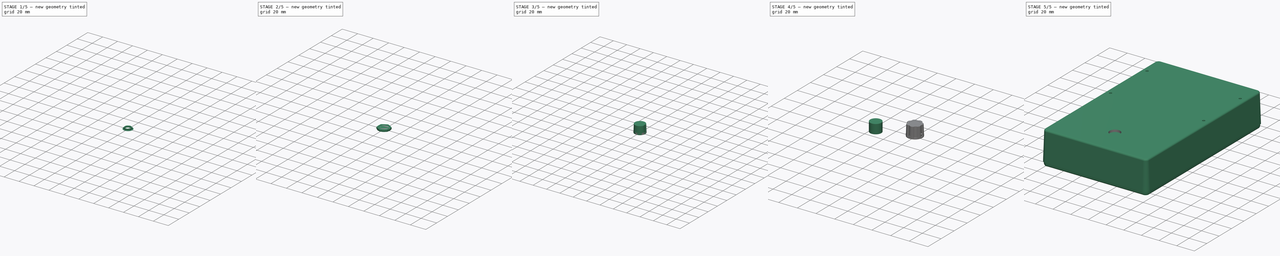
[diagram: build sequence overview — one tinted view per stage of 5, left to right]
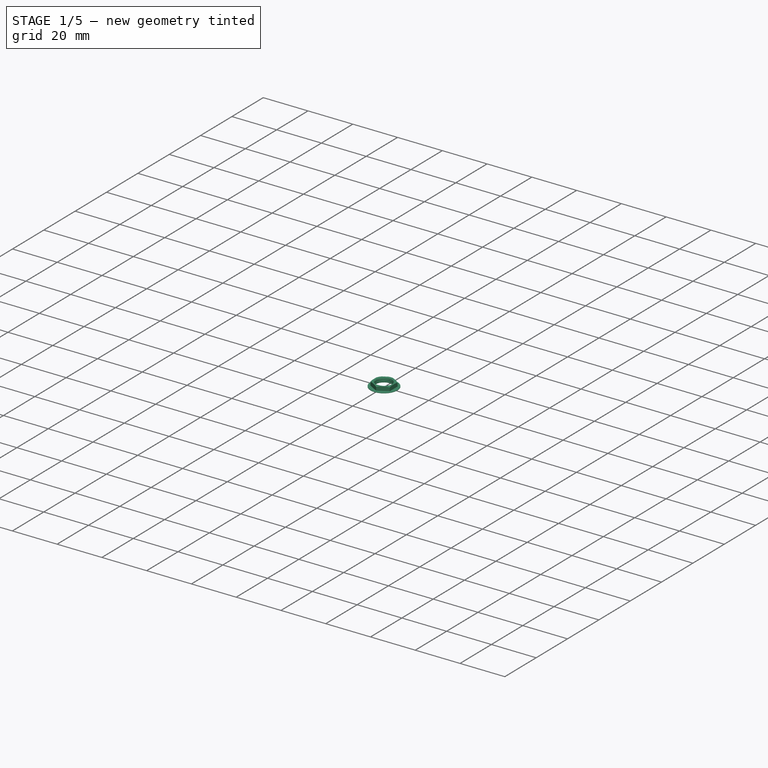
[diagram: stage 1 of 5 — iso view after this stage's code; geometry added in this stage tinted green]
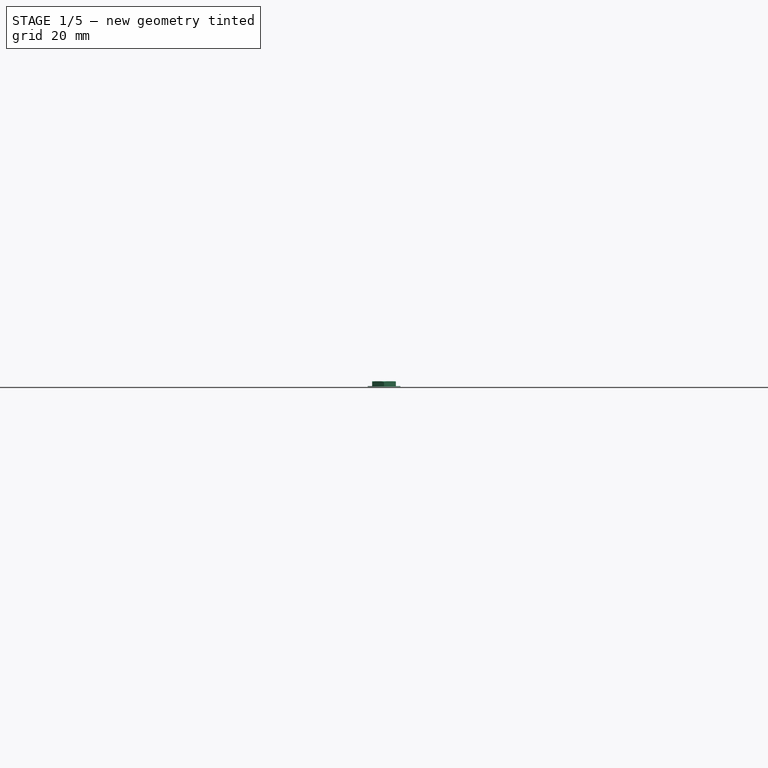
[diagram: stage 1 of 5 — front view after this stage's code; geometry added in this stage tinted green]
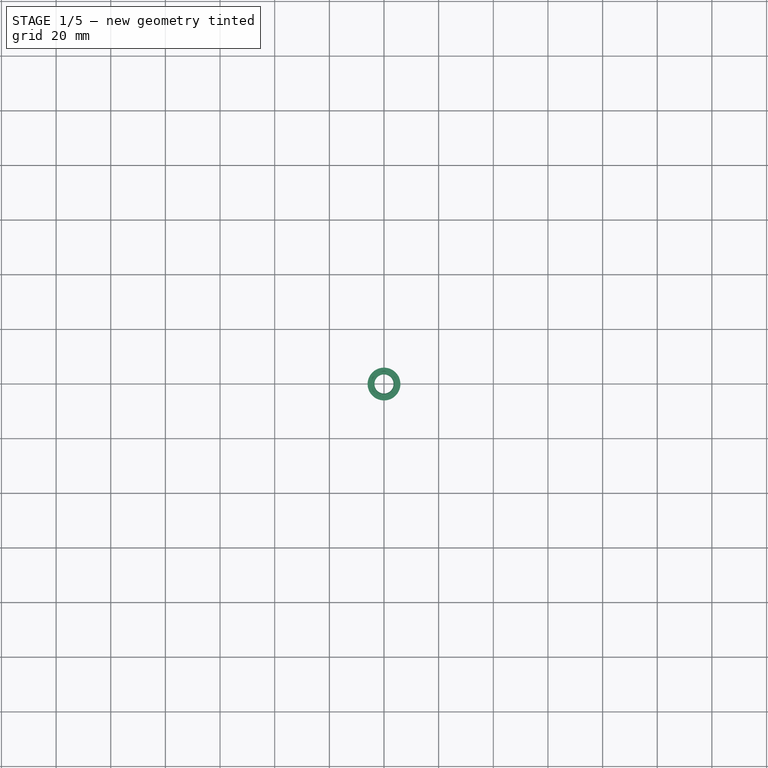
[diagram: stage 1 of 5 — top view after this stage's code; geometry added in this stage tinted green]
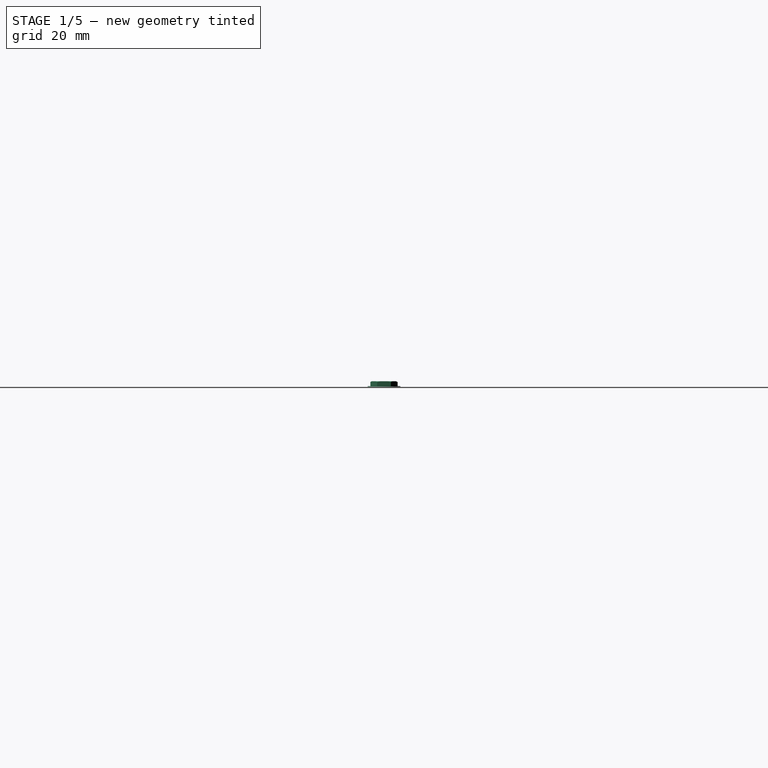
[diagram: stage 1 of 5 — right view after this stage's code; geometry added in this stage tinted green]
FCSTD DOCUMENT  (FreeCAD 0.19R18385 (Git))
Label: #000-000 - Mu-Tron Phasor II - Manual Assembly Lid
License: All rights reserved
LicenseURL: http://en.wikipedia.org/wiki/All_rights_reserved
objects: Part::Feature×189, App::Link×93, App::Part×61, Sketcher::SketchObject×45, PartDesign::Pocket×24, App::LinkGroup×21, PartDesign::Body×13, PartDesign::ShapeBinder×12, Part::Cylinder×11, PartDesign::Chamfer×9, PartDesign::Plane×6, PartDesign::CoordinateSystem×6, PartDesign::Revolution×6, PartDesign::Pad×6, PartDesign::PolarPattern×3, PartDesign::SubtractivePipe×3, Part::MultiFuse×2, Part::Cut×1, Spreadsheet::Sheet×1
note: 375 computed .brp shape members not serialized (recipe doc carries the construction recipe); baked Part::Feature solids carry a one-line shape summary decoded from their .brp

FEATURE [PartDesign::Body] Body008  label="Washer_M008"
  Group = -> [Sketch028,Pad004]
  Origin = -> Origin062
  Tip = -> Pad004
FEATURE [App::Part] Part025  label="Washer M7 2"
  Group = -> [Body008]
  Origin = -> Origin063
  Placement = pos=(43.5,58.42,33) rot=(0,0,1;0rad)
FEATURE [Sketcher::SketchObject] Sketch029
  MapMode = 5
  Support = -> [XY_Plane064]
  sketch-geometry (2):
    g0: Circle CenterX=0 CenterY=0 CenterZ=0 NormalX=0 NormalY=0 NormalZ=1 AngleXU=0 Radius=3.55
    g1: Circle CenterX=0 CenterY=0 CenterZ=0 NormalX=0 NormalY=0 NormalZ=1 AngleXU=0 Radius=6
  constraints (4):
    c: Coincident(g0,g-1)
    c: Coincident(g1,g0)
    c: Radius(g0) = 3.55
    c: Radius(g1) = 6
FEATURE [PartDesign::Pad] Pad005
  Length = 0.2
  Length2 = 100
  Profile = -> Sketch029
  Type = 0
FEATURE [PartDesign::Body] Body009  label="Washer_M009"
  Group = -> [Sketch029,Pad005]
  Origin = -> Origin065
  Tip = -> Pad005
FEATURE [App::Part] Part026  label="Washer M7 003"
  Group = -> [Body009]
  Origin = -> Origin064
  Placement = pos=(-43.5,58.42,33) rot=(0,0,1;0rad)
FEATURE [App::Part] Part027  label="#800-000 - Washers M7"
  Group = -> [Part024,Part025,Part026]
  Origin = -> Origin066
FEATURE [Sketcher::SketchObject] Sketch030
  MapMode = 5
  Placement = pos=(0,0,0) rot=(1,0,0;1.5708rad)
  Support = -> [XZ_Plane067]
  sketch-geometry (5):
    g0: LineSegment StartX=-3.5 StartY=0 StartZ=0 EndX=-3.5 EndY=2 EndZ=0
    g1: LineSegment StartX=-3.5 StartY=2 StartZ=0 EndX=-4.5 EndY=2 EndZ=0
    g2: LineSegment StartX=-4.5 StartY=2 StartZ=0 EndX=-5 EndY=1.71132 EndZ=0
    g3: LineSegment StartX=-5 StartY=1.71132 StartZ=0 EndX=-5 EndY=0 EndZ=0
    g4: LineSegment StartX=-5 StartY=0 StartZ=0 EndX=-3.5 EndY=0 EndZ=0
  constraints (15):
    c: PointOnObject(g0,g-1)
    c: Vertical(g0)
    c: Coincident(g0,g1)
    c: Horizontal(g1)
    c: Coincident(g1,g2)
    c: Coincident(g2,g3)
    c: PointOnObject(g3,g-1)
    c: Vertical(g3)
    c: Coincident(g3,g4)
    c: Coincident(g4,g0)
    c: DistanceY(g0,g0) = 2
    c: DistanceX(g0,g-1) = 3.5
    c: Angle(g2,g1) = 2.61799
    c: DistanceX(g2,g-1) = 5
    c: DistanceX(g2,g1) = 0.5
FEATURE [PartDesign::Revolution] Revolution003
  Angle = 360
  Axis = (0,2e-16,1)
  Base = (0,0,0)
  Placement = pos=(0,0,0) rot=(1,0,0;1.5708rad)
  Profile = -> Sketch030
  ReferenceAxis = -> Sketch030 [V_Axis]
FEATURE [Sketcher::SketchObject] Sketch031
  AttachmentOffset = pos=(0,0,2) rot=(0,0,1;0rad)
  MapMode = 5
  Placement = pos=(0,0,2) rot=(0,0,1;0rad)
  Support = -> [XY_Plane067]
  sketch-geometry (8):
    g0: LineSegment StartX=0 StartY=5 StartZ=0 EndX=-4.33013 EndY=2.5 EndZ=0
    g1: LineSegment StartX=-4.33013 StartY=2.5 StartZ=0 EndX=-4.33013 EndY=-2.5 EndZ=0
    g2: LineSegment StartX=-4.33013 StartY=-2.5 StartZ=0 EndX=6.2e-15 EndY=-5 EndZ=0
    g3: LineSegment StartX=6.2e-15 StartY=-5 StartZ=0 EndX=4.33013 EndY=-2.5 EndZ=0
    g4: LineSegment StartX=4.33013 StartY=-2.5 StartZ=0 EndX=4.33013 EndY=2.5 EndZ=0
    g5: LineSegment StartX=4.33013 StartY=2.5 StartZ=0 EndX=0 EndY=5 EndZ=0
    g6: Circle [constr] CenterX=0 CenterY=0 CenterZ=0 NormalX=0 NormalY=0 NormalZ=1 AngleXU=0 Radius=5
    g7: Circle CenterX=0 CenterY=0 CenterZ=0 NormalX=0 NormalY=0 NormalZ=1 AngleXU=0 Radius=5.59828
  constraints (17):
    c: Coincident(g0,g1)
    c: Coincident(g1,g2)
    c: Coincident(g2,g3)
    c: Coincident(g3,g4)
    c: Coincident(g4,g5)
    c: Coincident(g5,g0)
    c: Equal(g0, g1-g5) x5
    c: PointOnObject(g0,g6)
    c: PointOnObject(g1,g6)
    c: PointOnObject(g2,g6)
    c: PointOnObject(g3,g6)
    c: PointOnObject(g4,g6)
    c: PointOnObject(g5,g6)
    c: Coincident(g6,g-1)
    c: PointOnObject(g5,g-2)
    c: DistanceY(g-1,g0) = 5
    c: Coincident(g7,g-1)
FEATURE [PartDesign::Pocket] Pocket021
  BaseFeature = -> Revolution003
  Length = 5
  Length2 = 100
  Placement = pos=(0,0,0) rot=(1,0,0;1.5708rad)
  Profile = -> Sketch031
  Type = 0
FEATURE [Sketcher::SketchObject] Sketch032
  MapMode = 5
  Placement = pos=(0,0,0) rot=(1,0,0;1.5708rad)
  Support = -> [XZ_Plane067]
  sketch-geometry (4):
    g0: LineSegment StartX=-3.47634 StartY=0.09375 StartZ=0 EndX=-3.84813 EndY=0.046875 EndZ=0
    g1: LineSegment StartX=-3.84813 StartY=0.046875 StartZ=0 EndX=-3.84813 EndY=-0.046875 EndZ=0
    g2: LineSegment StartX=-3.84813 StartY=-0.046875 StartZ=0 EndX=-3.47634 EndY=-0.09375 EndZ=0
    g3: LineSegment StartX=-3.47634 StartY=-0.09375 StartZ=0 EndX=-3.47634 EndY=0.09375 EndZ=0
  constraints (8):
    c: Coincident(g0,g1)
    c: Coincident(g1,g2)
    c: Coincident(g2,g3)
    c: Coincident(g3,g0)
    c: DistanceY(g3,g3) = 0.1875
    c: Symmetric(g2,g0,g-1)
    c: Symmetric(g1,g0,g-1)
    c: DistanceY(g1,g1) = 0.09375
FEATURE [PartDesign::ShapeBinder] CopyHelix
  TraceSupport = false
FEATURE [PartDesign::SubtractivePipe] SubtractivePipe
  AuxilleryCurvelinear = true
  AuxillerySpineTangent = false
  BaseFeature = -> Pocket021
  Binormal = (0,0,0)
  Mode = 2
  Placement = pos=(0,0,0) rot=(1,0,0;1.5708rad)
  Profile = -> Sketch032
  Spine = -> CopyHelix
  SpineTangent = false
  Transformation = 0
  Transition = 0
FEATURE [PartDesign::Chamfer] Chamfer006
  Base = -> SubtractivePipe [Edge20]
  BaseFeature = -> SubtractivePipe
  Placement = pos=(0,0,0) rot=(1,0,0;1.5708rad)
  Size = 0.25
FEATURE [PartDesign::Body] Body010  label="Nut_M7"
  Group = -> [Sketch030,Revolution003,Sketch031,Pocket021,Sketch032,SubtractivePipe,CopyHelix,Chamfer006]
  Origin = -> Origin067
  Placement = pos=(0,58.42,33) rot=(0,0,1;0rad)
  Tip = -> Chamfer006
FEATURE [App::Part] Part028  label="#800-000 - Nut M7 1"
  Group = -> [Body010]
  Origin = -> Origin068
  Placement = pos=(0,0,0.2) rot=(0,0,1;0rad)
FEATURE [Sketcher::SketchObject] Sketch033
  MapMode = 5
  Placement = pos=(0,0,0) rot=(1,0,0;1.5708rad)
  Support = -> [XZ_Plane069]
  sketch-geometry (5):
    g0: LineSegment StartX=-3.5 StartY=0 StartZ=0 EndX=-3.5 EndY=2 EndZ=0
    g1: LineSegment StartX=-3.5 StartY=2 StartZ=0 EndX=-4.5 EndY=2 EndZ=0
    g2: LineSegment StartX=-4.5 StartY=2 StartZ=0 EndX=-5 EndY=1.71132 EndZ=0
    g3: LineSegment StartX=-5 StartY=1.71132 StartZ=0 EndX=-5 EndY=0 EndZ=0
    g4: LineSegment StartX=-5 StartY=0 StartZ=0 EndX=-3.5 EndY=0 EndZ=0
  constraints (15):
    c: PointOnObject(g0,g-1)
    c: Vertical(g0)
    c: Coincident(g0,g1)
    c: Horizontal(g1)
    c: Coincident(g1,g2)
    c: Coincident(g2,g3)
    c: PointOnObject(g3,g-1)
    c: Vertical(g3)
    c: Coincident(g3,g4)
    c: Coincident(g4,g0)
    c: DistanceY(g0,g0) = 2
    c: DistanceX(g0,g-1) = 3.5
    c: Angle(g2,g1) = 2.61799
    c: DistanceX(g2,g-1) = 5
    c: DistanceX(g2,g1) = 0.5
FEATURE [Sketcher::SketchObject] Sketch034
  MapMode = 5
  Placement = pos=(0,0,0) rot=(1,0,0;1.5708rad)
  Support = -> [XZ_Plane069]
  sketch-geometry (4):
    g0: LineSegment StartX=-3.47634 StartY=0.09375 StartZ=0 EndX=-3.84813 EndY=0.046875 EndZ=0
    g1: LineSegment StartX=-3.84813 StartY=0.046875 StartZ=0 EndX=-3.84813 EndY=-0.046875 EndZ=0
    g2: LineSegment StartX=-3.84813 StartY=-0.046875 StartZ=0 EndX=-3.47634 EndY=-0.09375 EndZ=0
    g3: LineSegment StartX=-3.47634 StartY=-0.09375 StartZ=0 EndX=-3.47634 EndY=0.09375 EndZ=0
  constraints (8):
    c: Coincident(g0,g1)
    c: Coincident(g1,g2)
    c: Coincident(g2,g3)
    c: Coincident(g3,g0)
    c: DistanceY(g3,g3) = 0.1875
    c: Symmetric(g2,g0,g-1)
    c: Symmetric(g1,g0,g-1)
    c: DistanceY(g1,g1) = 0.09375
FEATURE [Sketcher::SketchObject] Sketch035
  AttachmentOffset = pos=(0,0,2) rot=(0,0,1;0rad)
  MapMode = 5
  Placement = pos=(0,0,2) rot=(0,0,1;0rad)
  Support = -> [XY_Plane069]
  sketch-geometry (8):
    g0: LineSegment StartX=0 StartY=5 StartZ=0 EndX=-4.33013 EndY=2.5 EndZ=0
    g1: LineSegment StartX=-4.33013 StartY=2.5 StartZ=0 EndX=-4.33013 EndY=-2.5 EndZ=0
    g2: LineSegment StartX=-4.33013 StartY=-2.5 StartZ=0 EndX=6.2e-15 EndY=-5 EndZ=0
    g3: LineSegment StartX=6.2e-15 StartY=-5 StartZ=0 EndX=4.33013 EndY=-2.5 EndZ=0
    g4: LineSegment StartX=4.33013 StartY=-2.5 StartZ=0 EndX=4.33013 EndY=2.5 EndZ=0
    g5: LineSegment StartX=4.33013 StartY=2.5 StartZ=0 EndX=0 EndY=5 EndZ=0
    g6: Circle [constr] CenterX=0 CenterY=0 CenterZ=0 NormalX=0 NormalY=0 NormalZ=1 AngleXU=0 Radius=5
    g7: Circle CenterX=0 CenterY=0 CenterZ=0 NormalX=0 NormalY=0 NormalZ=1 AngleXU=0 Radius=5.59828
  constraints (17):
    c: Coincident(g0,g1)
    c: Coincident(g1,g2)
    c: Coincident(g2,g3)
    c: Coincident(g3,g4)
    c: Coincident(g4,g5)
    c: Coincident(g5,g0)
    c: Equal(g0, g1-g5) x5
    c: PointOnObject(g0,g6)
    c: PointOnObject(g1,g6)
    c: PointOnObject(g2,g6)
    c: PointOnObject(g3,g6)
    c: PointOnObject(g4,g6)
    c: PointOnObject(g5,g6)
    c: Coincident(g6,g-1)
    c: PointOnObject(g5,g-2)
    c: DistanceY(g-1,g0) = 5
    c: Coincident(g7,g-1)
FEATURE [PartDesign::ShapeBinder] CopyHelix001
  TraceSupport = false
FEATURE [PartDesign::Revolution] Revolution004
  Angle = 360
  Axis = (0,2e-16,1)
  Base = (0,0,0)
  Placement = pos=(0,0,0) rot=(1,0,0;1.5708rad)
  Profile = -> Sketch033
  ReferenceAxis = -> Sketch033 [V_Axis]
FEATURE [PartDesign::Pocket] Pocket022
  BaseFeature = -> Revolution004
  Length = 5
  Length2 = 100
  Placement = pos=(0,0,0) rot=(1,0,0;1.5708rad)
  Profile = -> Sketch035
  Type = 0
FEATURE [PartDesign::SubtractivePipe] SubtractivePipe001
  AuxilleryCurvelinear = true
  AuxillerySpineTangent = false
  BaseFeature = -> Pocket022
  Binormal = (0,0,0)
  Mode = 2
  Placement = pos=(0,0,0) rot=(1,0,0;1.5708rad)
  Profile = -> Sketch034
  Spine = -> CopyHelix001
  SpineTangent = false
  Transformation = 0
  Transition = 0
FEATURE [PartDesign::Chamfer] Chamfer007
  Base = -> SubtractivePipe001 [Edge20]
  BaseFeature = -> SubtractivePipe001
  Placement = pos=(0,0,0) rot=(1,0,0;1.5708rad)
  Size = 0.25
FEATURE [PartDesign::Body] Body011  label="Nut_M008"
  Group = -> [Sketch033,Revolution004,Sketch035,Pocket022,Sketch034,SubtractivePipe001,CopyHelix001,Chamfer007]
  Origin = -> Origin070
  Placement = pos=(0,58.42,33) rot=(0,0,1;0rad)
  Tip = -> Chamfer007
FEATURE [App::Part] Part029  label="#800-000 - Nut M7 2"
  Group = -> [Body011]
  Origin = -> Origin069
  Placement = pos=(43.5,0,0.2) rot=(0,0,1;0rad)
FEATURE [Sketcher::SketchObject] Sketch036
  MapMode = 5
  Placement = pos=(0,0,0) rot=(1,0,0;1.5708rad)
  Support = -> [XZ_Plane072]
  sketch-geometry (5):
    g0: LineSegment StartX=-3.5 StartY=0 StartZ=0 EndX=-3.5 EndY=2 EndZ=0
    g1: LineSegment StartX=-3.5 StartY=2 StartZ=0 EndX=-4.5 EndY=2 EndZ=0
    g2: LineSegment StartX=-4.5 StartY=2 StartZ=0 EndX=-5 EndY=1.71132 EndZ=0
    g3: LineSegment StartX=-5 StartY=1.71132 StartZ=0 EndX=-5 EndY=0 EndZ=0
    g4: LineSegment StartX=-5 StartY=0 StartZ=0 EndX=-3.5 EndY=0 EndZ=0
  constraints (15):
    c: PointOnObject(g0,g-1)
    c: Vertical(g0)
    c: Coincident(g0,g1)
    c: Horizontal(g1)
    c: Coincident(g1,g2)
    c: Coincident(g2,g3)
    c: PointOnObject(g3,g-1)
    c: Vertical(g3)
    c: Coincident(g3,g4)
    c: Coincident(g4,g0)
    c: DistanceY(g0,g0) = 2
    c: DistanceX(g0,g-1) = 3.5
    c: Angle(g2,g1) = 2.61799
    c: DistanceX(g2,g-1) = 5
    c: DistanceX(g2,g1) = 0.5
FEATURE [Sketcher::SketchObject] Sketch037
  AttachmentOffset = pos=(0,0,2) rot=(0,0,1;0rad)
  MapMode = 5
  Placement = pos=(0,0,2) rot=(0,0,1;0rad)
  Support = -> [XY_Plane071]
  sketch-geometry (8):
    g0: LineSegment StartX=0 StartY=5 StartZ=0 EndX=-4.33013 EndY=2.5 EndZ=0
    g1: LineSegment StartX=-4.33013 StartY=2.5 StartZ=0 EndX=-4.33013 EndY=-2.5 EndZ=0
    g2: LineSegment StartX=-4.33013 StartY=-2.5 StartZ=0 EndX=6.2e-15 EndY=-5 EndZ=0
    g3: LineSegment StartX=6.2e-15 StartY=-5 StartZ=0 EndX=4.33013 EndY=-2.5 EndZ=0
    g4: LineSegment StartX=4.33013 StartY=-2.5 StartZ=0 EndX=4.33013 EndY=2.5 EndZ=0
    g5: LineSegment StartX=4.33013 StartY=2.5 StartZ=0 EndX=0 EndY=5 EndZ=0
    g6: Circle [constr] CenterX=0 CenterY=0 CenterZ=0 NormalX=0 NormalY=0 NormalZ=1 AngleXU=0 Radius=5
    g7: Circle CenterX=0 CenterY=0 CenterZ=0 NormalX=0 NormalY=0 NormalZ=1 AngleXU=0 Radius=5.59828
  constraints (17):
    c: Coincident(g0,g1)
    c: Coincident(g1,g2)
    c: Coincident(g2,g3)
    c: Coincident(g3,g4)
    c: Coincident(g4,g5)
    c: Coincident(g5,g0)
    c: Equal(g0, g1-g5) x5
    c: PointOnObject(g0,g6)
    c: PointOnObject(g1,g6)
    c: PointOnObject(g2,g6)
    c: PointOnObject(g3,g6)
    c: PointOnObject(g4,g6)
    c: PointOnObject(g5,g6)
    c: Coincident(g6,g-1)
    c: PointOnObject(g5,g-2)
    c: DistanceY(g-1,g0) = 5
    c: Coincident(g7,g-1)
FEATURE [Sketcher::SketchObject] Sketch038
  MapMode = 5
  Placement = pos=(0,0,0) rot=(1,0,0;1.5708rad)
  Support = -> [XZ_Plane072]
  sketch-geometry (4):
    g0: LineSegment StartX=-3.47634 StartY=0.09375 StartZ=0 EndX=-3.84813 EndY=0.046875 EndZ=0
    g1: LineSegment StartX=-3.84813 StartY=0.046875 StartZ=0 EndX=-3.84813 EndY=-0.046875 EndZ=0
    g2: LineSegment StartX=-3.84813 StartY=-0.046875 StartZ=0 EndX=-3.47634 EndY=-0.09375 EndZ=0
    g3: LineSegment StartX=-3.47634 StartY=-0.09375 StartZ=0 EndX=-3.47634 EndY=0.09375 EndZ=0
  constraints (8):
    c: Coincident(g0,g1)
    c: Coincident(g1,g2)
    c: Coincident(g2,g3)
    c: Coincident(g3,g0)
    c: DistanceY(g3,g3) = 0.1875
    c: Symmetric(g2,g0,g-1)
    c: Symmetric(g1,g0,g-1)
    c: DistanceY(g1,g1) = 0.09375
FEATURE [PartDesign::ShapeBinder] CopyHelix002
  TraceSupport = false
FEATURE [PartDesign::Revolution] Revolution005
  Angle = 360
  Axis = (0,2e-16,1)
  Base = (0,0,0)
  Placement = pos=(0,0,0) rot=(1,0,0;1.5708rad)
  Profile = -> Sketch036
  ReferenceAxis = -> Sketch036 [V_Axis]
FEATURE [PartDesign::Pocket] Pocket023
  BaseFeature = -> Revolution005
  Length = 5
  Length2 = 100
  Placement = pos=(0,0,0) rot=(1,0,0;1.5708rad)
  Profile = -> Sketch037
  Type = 0
FEATURE [PartDesign::SubtractivePipe] SubtractivePipe002
  AuxilleryCurvelinear = true
  AuxillerySpineTangent = false
  BaseFeature = -> Pocket023
  Binormal = (0,0,0)
  Mode = 2
  Placement = pos=(0,0,0) rot=(1,0,0;1.5708rad)
  Profile = -> Sketch038
  Spine = -> CopyHelix002
  SpineTangent = false
  Transformation = 0
  Transition = 0
FEATURE [PartDesign::Chamfer] Chamfer008
  Base = -> SubtractivePipe002 [Edge20]
  BaseFeature = -> SubtractivePipe002
  Placement = pos=(0,0,0) rot=(1,0,0;1.5708rad)
  Size = 0.25
FEATURE [PartDesign::Body] Body012  label="Nut_M009"
  Group = -> [Sketch036,Revolution005,Sketch037,Pocket023,Sketch038,SubtractivePipe002,CopyHelix002,Chamfer008]
  Origin = -> Origin071
  Placement = pos=(0,58.42,33) rot=(0,0,1;0rad)
  Tip = -> Chamfer008
FEATURE [App::Part] Part030  label="#800-000 - Nut M7 3"
  Group = -> [Body012]
  Origin = -> Origin072
  Placement = pos=(-43.5,0,0.2) rot=(0,0,1;0rad)
FEATURE [App::Part] Part031  label="#800-XXX - Nuts M7"
  Group = -> [Part028,Part029,Part030]
  Origin = -> Origin073
FEATURE [Part::Feature] Shape037  label=""R1"_R_0603_1608M_5E12A14F001"
  Placement = pos=(3.175,0,0) rot=(0,0,1;3.14159rad)
  shape: bbox 1.6 x 0.8 x 0.45 mm, 22 faces (baked)
FEATURE [Part::Feature] Shape039  label=""J1"_Lumberg_1614_09__Nut__2_5mm__cp_5DF56329"
  shape: bbox 11.4 x 11.4 x 17.02 mm, 169 faces, 2 solids (baked)
FEATURE [Part::Feature] Shape040  label=""Q1"_MCH6341-TL-W_5E1B8787"
  Placement = pos=(2.667,0,-1.6) rot=(0.707107,-0.707107,0;3.14159rad)
  shape: bbox 2 x 2.1 x 0.86 mm, 263 faces (baked)
FEATURE [Part::Feature] Shape041  label=""D3"_1SMA5924BT3G_5E12A08F001"
  Placement = pos=(-2.54,5.715,0) rot=(0,0,1;3.14159rad)
  shape: bbox 5.21 x 2.6 x 2.11 mm, 403 faces (baked)
FEATURE [App::Part] Top_3b3
  Group = -> [Shape037,Shape039,Shape041]
  Origin = -> Origin032
FEATURE [Part::Feature] Shape042  label=""D2"_FM5817-W_5E1B5AEB001"
  Placement = pos=(-1.905,0,-1.6) rot=(0,1,0;3.14159rad)
  shape: bbox 5.005 x 2.485 x 2.015 mm, 172 faces (baked)
FEATURE [App::Link] _D2__FM5817_W_5E1B5AEB001_ln_  label=""D1"_FM5817-W_5E12AA099"
  LinkPlacement = pos=(-2.54,5.715,-1.6) rot=(0,1,0;3.14159rad)
  LinkedObject = -> Shape042
  Placement = pos=(-2.54,5.715,-1.6) rot=(0,1,0;3.14159rad)
FEATURE [App::Part] Bot_3b3
  Group = -> [Shape032,Shape040,Shape042,_D2__FM5817_W_5E1B5AEB001_ln_]
  Origin = -> Origin033
FEATURE [App::Part] Step_Models_3b3
  Group = -> [Top_3b3,Bot_3b3]
  Origin = -> Origin031
FEATURE [App::Part] Board_3b3  label="#610-000-S1B - Power Jack PCB [1614 09, Wide, Multi Protection]"
  Group = -> [Board_Geoms_3b3,Step_Models_3b3]
  Origin = -> Origin030
  Placement = pos=(0.2,85.5,11.1) rot=(-0.57735,0.57735,0.57735;2.0944rad)
FEATURE [App::Part] Part018  label="#000-000 - Purple Hazor II"
  Group = -> [Board_3323,Board_9fc9,Board_8d55,Board_8681,Board_5daf,Board_3b3,Part,Part019,Part017,Part022,Part023,Part027,Part031]
  Origin = -> Origin051
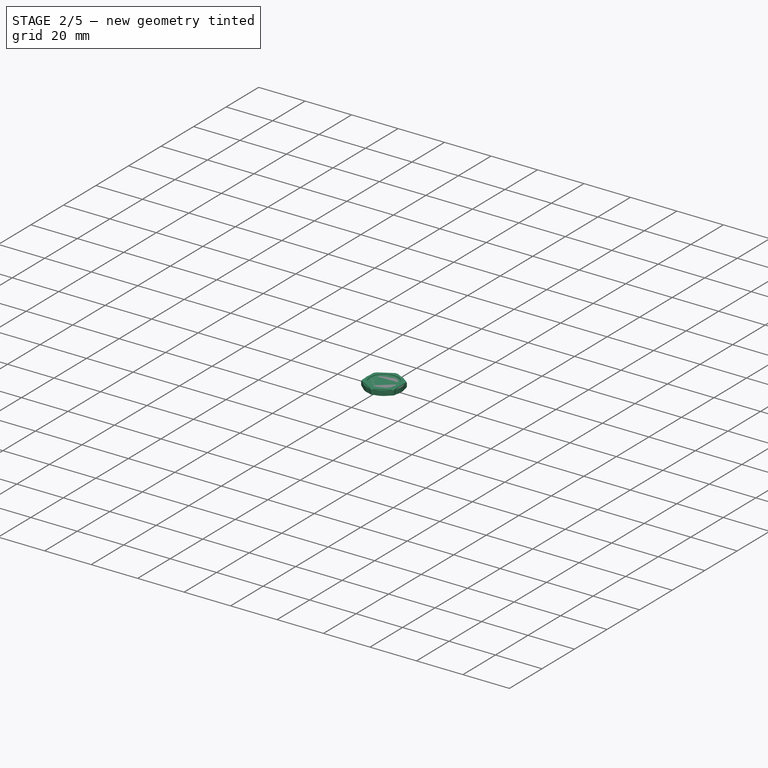
[diagram: stage 2 of 5 — iso view after this stage's code; geometry added in this stage tinted green]
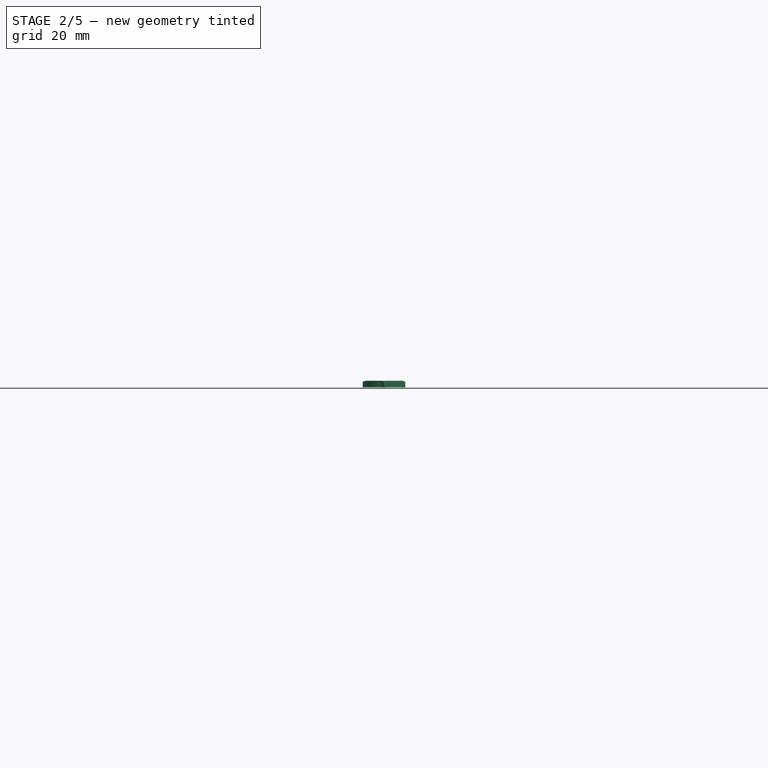
[diagram: stage 2 of 5 — front view after this stage's code; geometry added in this stage tinted green]
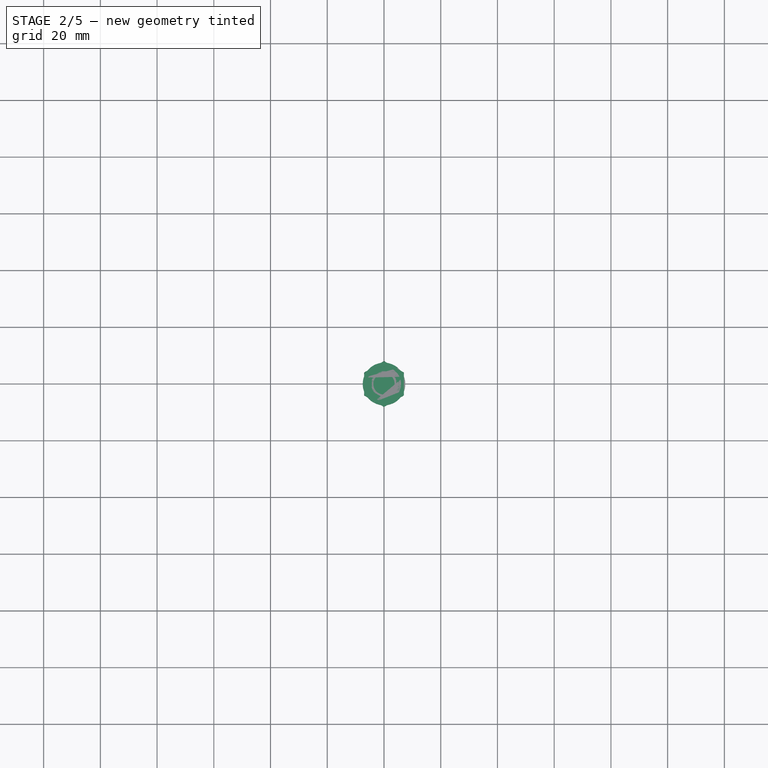
[diagram: stage 2 of 5 — top view after this stage's code; geometry added in this stage tinted green]
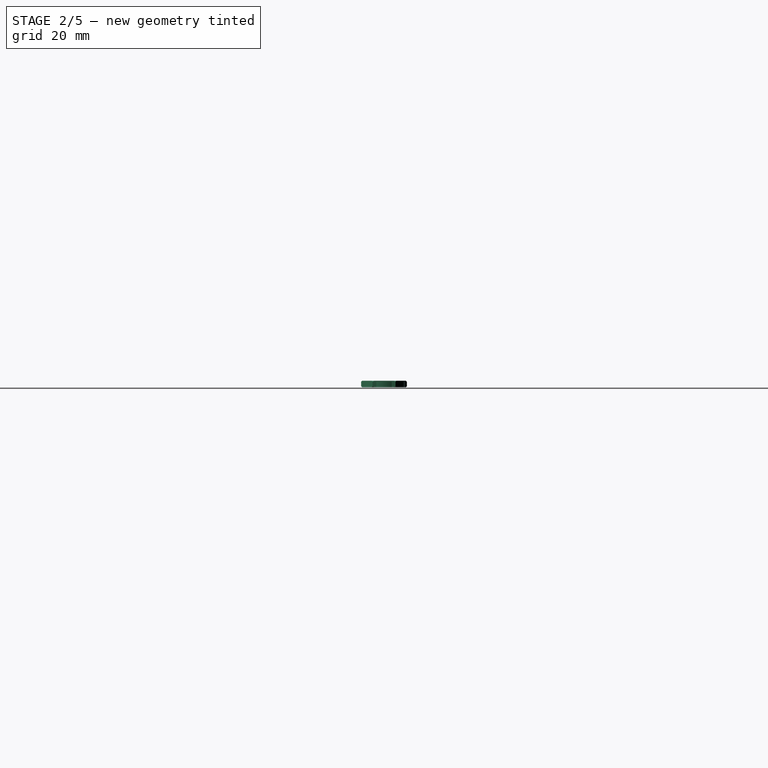
[diagram: stage 2 of 5 — right view after this stage's code; geometry added in this stage tinted green]
FEATURE [PartDesign::Body] Body003  label="Knob_Synthie_Violet"
  Group = -> [Sketch015,Revolution002,Sketch013,Pocket011,PolarPattern002,Sketch012,Pocket012,Sketch017,Pocket014,Sketch014,Pocket010,Sketch016,Pocket013]
  Origin = -> Origin036
  Placement = pos=(0,0,6) rot=(0,0,1;0rad)
  Tip = -> Pocket013
FEATURE [App::Part] Part004  label="#800-XXX - Knob Depth"
  Group = -> [Body001]
  Origin = -> Origin037
  Placement = pos=(0,58.42,31.6) rot=(0,0,1;0rad)
FEATURE [App::Part] Part005  label="#800-XXX - Knob Rate"
  Group = -> [Body002]
  Origin = -> Origin038
  Placement = pos=(43.4975,58.42,31.6) rot=(0,0,1;0rad)
FEATURE [App::Part] Part006  label="#800-XXX - Knob Feedback"
  Group = -> [Body003]
  Origin = -> Origin039
  Placement = pos=(-43.5,58.42,31.6) rot=(0,0,1;0rad)
FEATURE [Part::Feature] Solid130  label="Screw_M3x6_T_2.0_Panhead"
  shape: bbox 5.8 x 5.8 x 7.989 mm, 18 faces (baked)
FEATURE [App::Part] Part007  label="#800-XXX - Screw M3x6 1"
  Group = -> [Solid130]
  Origin = -> Origin040
  Placement = pos=(52.7,8.26,33) rot=(0,0,1;0rad)
FEATURE [Part::Feature] Solid131  label="Screw_M3x6_T_2.0_Panhead001"
  shape: bbox 5.8 x 5.8 x 7.989 mm, 18 faces (baked)
FEATURE [App::Part] Part008  label="#800-XXX - Screw M3x6 2"
  Group = -> [Solid131]
  Origin = -> Origin041
  Placement = pos=(-52.7,8.26,33) rot=(0,0,1;0rad)
FEATURE [Part::Feature] Solid132  label="Screw_M3x6_T_2.0_Panhead002"
  shape: bbox 5.8 x 5.8 x 7.989 mm, 18 faces (baked)
FEATURE [App::Part] Part009  label="#800-XXX - Screw M3x6 3"
  Group = -> [Solid132]
  Origin = -> Origin042
  Placement = pos=(52.7,67.31,33) rot=(0,0,1;0rad)
FEATURE [Part::Feature] Solid133  label="Screw_M3x6_T_2.0_Panhead003"
  shape: bbox 5.8 x 5.8 x 7.989 mm, 18 faces (baked)
FEATURE [App::Part] Part010  label="#800-XXX - Screw M3x6 4"
  Group = -> [Solid133]
  Origin = -> Origin043
  Placement = pos=(-52.7,67.31,33) rot=(0,0,1;0rad)
FEATURE [App::Part] Part011  label="#800-XXX - Screws Enclosure"
  Group = -> [Part007,Part008,Part009,Part010]
  Origin = -> Origin044
FEATURE [Part::Feature] Solid134  label="Screw_M3x6_T_2.0_Panhead004"
  shape: bbox 5.8 x 5.8 x 7.989 mm, 18 faces (baked)
FEATURE [Part::Feature] Solid135  label="Screw_M3x6_T_2.0_Panhead005"
  shape: bbox 5.8 x 5.8 x 7.989 mm, 18 faces (baked)
FEATURE [Part::Feature] Solid136  label="Screw_M3x6_T_2.0_Panhead006"
  shape: bbox 5.8 x 5.8 x 7.989 mm, 18 faces (baked)
FEATURE [App::Part] Part012  label="#800-XXX - Screw M3x6 005"
  Group = -> [Solid134]
  Origin = -> Origin047
  Placement = pos=(52.7,8.26,16.9) rot=(0,1,0;3.14159rad)
FEATURE [App::Part] Part014  label="#800-XXX - Screw M3x6 006"
  Group = -> [Solid135]
  Origin = -> Origin045
  Placement = pos=(-52.7,8.26,16.9) rot=(0,1,0;3.14159rad)
FEATURE [App::Part] Part016  label="#800-XXX - Screw M3x6 008"
  Group = -> [Solid136]
  Origin = -> Origin046
  Placement = pos=(52.7,67.31,16.9) rot=(0,1,0;3.14159rad)
FEATURE [Part::Feature] Solid137  label="Screw_M3x6_T_2.0_Panhead007"
  shape: bbox 5.8 x 5.8 x 7.989 mm, 18 faces (baked)
FEATURE [App::Part] Part015  label="#800-XXX - Screw M3x6 007"
  Group = -> [Solid137]
  Origin = -> Origin049
  Placement = pos=(-52.7,67.31,16.9) rot=(0,1,0;3.14159rad)
FEATURE [App::Part] Part013  label="#800-XXX - Screws PCB"
  Group = -> [Part012,Part014,Part016,Part015]
  Origin = -> Origin048
FEATURE [App::Part] Part017  label="#800-XXX - Screws M3x6"
  Group = -> [Part011,Part013]
  Origin = -> Origin050
FEATURE [App::Part] Part019  label="#800-XXX - Knobs"
  Group = -> [Part004,Part005,Part006]
  Origin = -> Origin052
FEATURE [Sketcher::SketchObject] Sketch018
  MapMode = 5
  Support = -> [XY_Plane053]
  sketch-geometry (1):
    g0: Circle CenterX=0 CenterY=0 CenterZ=0 NormalX=0 NormalY=0 NormalZ=1 AngleXU=0 Radius=7.5
  constraints (2):
    c: Coincident(g0,g-1)
    c: Radius(g0) = 7.5
FEATURE [PartDesign::Pad] Pad
  Length = 2
  Length2 = 100
  Profile = -> Sketch018
  Type = 0
FEATURE [PartDesign::Body] Body004  label="Nut M10"
  Group = -> [Sketch018,Pad,Sketch019,Chamfer,Chamfer001,Pocket015,Sketch020,Pocket016]
  Origin = -> Origin053
  Tip = -> Pocket016
FEATURE [App::Part] Part020  label="Nut M10 1"
  Group = -> [Body004]
  Origin = -> Origin054
  Placement = pos=(-23.5,93.8,9.2) rot=(-1,0,0;1.5708rad)
FEATURE [Sketcher::SketchObject] Sketch021
  MapMode = 5
  Support = -> [XY_Plane055]
  sketch-geometry (1):
    g0: Circle CenterX=0 CenterY=0 CenterZ=0 NormalX=0 NormalY=0 NormalZ=1 AngleXU=0 Radius=5
  constraints (2):
    c: Coincident(g0,g-1)
    c: Radius(g0) = 5
FEATURE [Sketcher::SketchObject] Sketch022
  MapMode = 5
  Support = -> [XY_Plane055]
  sketch-geometry (1):
    g0: Circle CenterX=0 CenterY=0 CenterZ=0 NormalX=0 NormalY=0 NormalZ=1 AngleXU=0 Radius=7.5
  constraints (2):
    c: Coincident(g0,g-1)
    c: Radius(g0) = 7.5
FEATURE [PartDesign::Pad] Pad001
  Length = 2
  Length2 = 100
  Profile = -> Sketch022
  Type = 0
FEATURE [PartDesign::Chamfer] Chamfer003
  Base = -> Pad001 [Edge3]
  BaseFeature = -> Pad001
  Size = 0.75
FEATURE [PartDesign::Chamfer] Chamfer002
  Base = -> Chamfer003 [Edge3]
  BaseFeature = -> Chamfer003
  Size = 0.75
FEATURE [Sketcher::SketchObject] Sketch023
  MapMode = 5
  Placement = pos=(0,0,2) rot=(0,0,1;0rad)
  Support = -> [Pad001]
  sketch-geometry (9):
    g0: Circle CenterX=0 CenterY=0 CenterZ=0 NormalX=0 NormalY=0 NormalZ=1 AngleXU=0 Radius=8.40128
    g1: GeomPoint X=0 Y=8.40128 Z=0
    g2: LineSegment StartX=0 StartY=7.33235 StartZ=0 EndX=-6.35 EndY=3.66617 EndZ=0
    g3: LineSegment StartX=-6.35 StartY=3.66617 StartZ=0 EndX=-6.35 EndY=-3.66617 EndZ=0
    g4: LineSegment StartX=-6.35 StartY=-3.66617 StartZ=0 EndX=0 EndY=-7.33235 EndZ=0
    g5: LineSegment StartX=0 StartY=-7.33235 StartZ=0 EndX=6.35 EndY=-3.66617 EndZ=0
    g6: LineSegment StartX=6.35 StartY=-3.66617 StartZ=0 EndX=6.35 EndY=3.66617 EndZ=0
    g7: LineSegment StartX=6.35 StartY=3.66617 StartZ=0 EndX=0 EndY=7.33235 EndZ=0
    g8: Circle [constr] CenterX=0 CenterY=0 CenterZ=0 NormalX=0 NormalY=0 NormalZ=1 AngleXU=0 Radius=7.33235
  constraints (19):
    c: Coincident(g0,g-1)
    c: PointOnObject(g1,g0)
    c: PointOnObject(g1,g-2)
    c: Coincident(g2,g3)
    c: Coincident(g3,g4)
    c: Coincident(g4,g5)
    c: Coincident(g5,g6)
    c: Coincident(g6,g7)
    c: Coincident(g7,g2)
    c: Equal(g2, g3-g7) x5
    c: PointOnObject(g2,g8)
    c: PointOnObject(g3,g8)
    c: PointOnObject(g4,g8)
    c: PointOnObject(g5,g8)
    c: PointOnObject(g6,g8)
    c: PointOnObject(g7,g8)
    c: Coincident(g8,g0)
    c: PointOnObject(g7,g-2)
    c: DistanceX(g2,g6) = 12.7
FEATURE [PartDesign::Pocket] Pocket017
  BaseFeature = -> Chamfer002
  Length = 5
  Length2 = 100
  Midplane = true
  Profile = -> Sketch023
  Type = 1
FEATURE [PartDesign::Pocket] Pocket018
  BaseFeature = -> Pocket017
  Length = 5
  Length2 = 100
  Midplane = true
  Profile = -> Sketch021
  Type = 1
FEATURE [PartDesign::Body] Body005  label="Nut M011"
  Group = -> [Sketch022,Pad001,Sketch023,Chamfer003,Chamfer002,Pocket017,Sketch021,Pocket018]
  Origin = -> Origin056
  Tip = -> Pocket018
FEATURE [App::Part] Part021  label="Nut M10 2"
  Group = -> [Body005]
  Origin = -> Origin055
  Placement = pos=(23.5,93.8,9.2) rot=(-1,0,0;1.5708rad)
FEATURE [App::Part] Part022  label="#800-XXX - Nuts M10"
  Group = -> [Part020,Part021]
  Origin = -> Origin057
FEATURE [Sketcher::SketchObject] Sketch024
  MapMode = 5
  Support = -> [XY_Plane058]
  sketch-geometry (1):
    g0: Circle CenterX=0 CenterY=0 CenterZ=0 NormalX=0 NormalY=0 NormalZ=1 AngleXU=0 Radius=8.5
  constraints (2):
    c: Coincident(g0,g-1)
    c: Radius(g0) = 8.5
FEATURE [PartDesign::Pad] Pad002
  Length = 2.3
  Length2 = 100
  Profile = -> Sketch024
  Type = 0
FEATURE [Sketcher::SketchObject] Sketch025
  MapMode = 5
  Placement = pos=(0,0,2.3) rot=(0,0,1;0rad)
  Support = -> [Pad002]
  sketch-geometry (9):
    g0: Circle CenterX=0 CenterY=0 CenterZ=0 NormalX=0 NormalY=0 NormalZ=1 AngleXU=0 Radius=9.68482
    g1: GeomPoint X=0 Y=9.68482 Z=0
    g2: LineSegment StartX=0 StartY=8.0829 StartZ=0 EndX=-7 EndY=4.04145 EndZ=0
    g3: LineSegment StartX=-7 StartY=4.04145 StartZ=0 EndX=-7 EndY=-4.04145 EndZ=0
    g4: LineSegment StartX=-7 StartY=-4.04145 StartZ=0 EndX=0 EndY=-8.0829 EndZ=0
    g5: LineSegment StartX=0 StartY=-8.0829 StartZ=0 EndX=7 EndY=-4.04145 EndZ=0
    g6: LineSegment StartX=7 StartY=-4.04145 StartZ=0 EndX=7 EndY=4.04145 EndZ=0
    g7: LineSegment StartX=7 StartY=4.04145 StartZ=0 EndX=0 EndY=8.0829 EndZ=0
    g8: Circle [constr] CenterX=0 CenterY=0 CenterZ=0 NormalX=0 NormalY=0 NormalZ=1 AngleXU=0 Radius=8.0829
  constraints (19):
    c: Coincident(g0,g-1)
    c: PointOnObject(g1,g0)
    c: PointOnObject(g1,g-2)
    c: Coincident(g2,g3)
    c: Coincident(g3,g4)
    c: Coincident(g4,g5)
    c: Coincident(g5,g6)
    c: Coincident(g6,g7)
    c: Coincident(g7,g2)
    c: Equal(g2, g3-g7) x5
    c: PointOnObject(g2,g8)
    c: PointOnObject(g3,g8)
    c: PointOnObject(g4,g8)
    c: PointOnObject(g5,g8)
    c: PointOnObject(g6,g8)
    c: PointOnObject(g7,g8)
    c: Coincident(g8,g0)
    c: PointOnObject(g7,g-2)
    c: DistanceX(g2,g6) = 14
FEATURE [PartDesign::Chamfer] Chamfer004
  Base = -> Pad002 [Edge3]
  BaseFeature = -> Pad002
  Size = 0.75
FEATURE [PartDesign::Chamfer] Chamfer005
  Base = -> Chamfer004 [Edge3]
  BaseFeature = -> Chamfer004
  Size = 0.75
FEATURE [PartDesign::Pocket] Pocket019
  BaseFeature = -> Chamfer005
  Length = 5
  Length2 = 100
  Midplane = true
  Profile = -> Sketch025
  Type = 1
FEATURE [Sketcher::SketchObject] Sketch026
  MapMode = 5
  Support = -> [XY_Plane058]
  sketch-geometry (1):
    g0: Circle CenterX=0 CenterY=0 CenterZ=0 NormalX=0 NormalY=0 NormalZ=1 AngleXU=0 Radius=6
  constraints (2):
    c: Coincident(g0,g-1)
    c: Radius(g0) = 6
FEATURE [PartDesign::Pocket] Pocket020
  BaseFeature = -> Pocket019
  Length = 5
  Length2 = 100
  Midplane = true
  Profile = -> Sketch026
  Type = 1
FEATURE [PartDesign::Body] Body006  label="Nut_M12"
  Group = -> [Sketch024,Pad002,Sketch025,Chamfer004,Chamfer005,Pocket019,Sketch026,Pocket020]
  Origin = -> Origin058
  Tip = -> Pocket020
FEATURE [App::Part] Part023  label="#800-000 - Nut M12"
  Group = -> [Body006]
  Origin = -> Origin059
  Placement = pos=(0,-60,33.1) rot=(0,0,1;0rad)
FEATURE [Sketcher::SketchObject] Sketch027
  MapMode = 5
  Support = -> [XY_Plane060]
  sketch-geometry (2):
    g0: Circle CenterX=0 CenterY=0 CenterZ=0 NormalX=0 NormalY=0 NormalZ=1 AngleXU=0 Radius=3.55
    g1: Circle CenterX=0 CenterY=0 CenterZ=0 NormalX=0 NormalY=0 NormalZ=1 AngleXU=0 Radius=6
  constraints (4):
    c: Coincident(g0,g-1)
    c: Coincident(g1,g0)
    c: Radius(g0) = 3.55
    c: Radius(g1) = 6
FEATURE [PartDesign::Pad] Pad003
  Length = 0.2
  Length2 = 100
  Profile = -> Sketch027
  Type = 0
FEATURE [PartDesign::Body] Body007  label="Washer_M7"
  Group = -> [Sketch027,Pad003]
  Origin = -> Origin060
  Tip = -> Pad003
FEATURE [App::Part] Part024  label="Washer M7 1"
  Group = -> [Body007]
  Origin = -> Origin061
  Placement = pos=(0,58.42,33) rot=(0,0,1;0rad)
FEATURE [Sketcher::SketchObject] Sketch028
  MapMode = 5
  Support = -> [XY_Plane062]
  sketch-geometry (2):
    g0: Circle CenterX=0 CenterY=0 CenterZ=0 NormalX=0 NormalY=0 NormalZ=1 AngleXU=0 Radius=3.55
    g1: Circle CenterX=0 CenterY=0 CenterZ=0 NormalX=0 NormalY=0 NormalZ=1 AngleXU=0 Radius=6
  constraints (4):
    c: Coincident(g0,g-1)
    c: Coincident(g1,g0)
    c: Radius(g0) = 3.55
    c: Radius(g1) = 6
FEATURE [PartDesign::Pad] Pad004
  Length = 0.2
  Length2 = 100
  Profile = -> Sketch028
  Type = 0
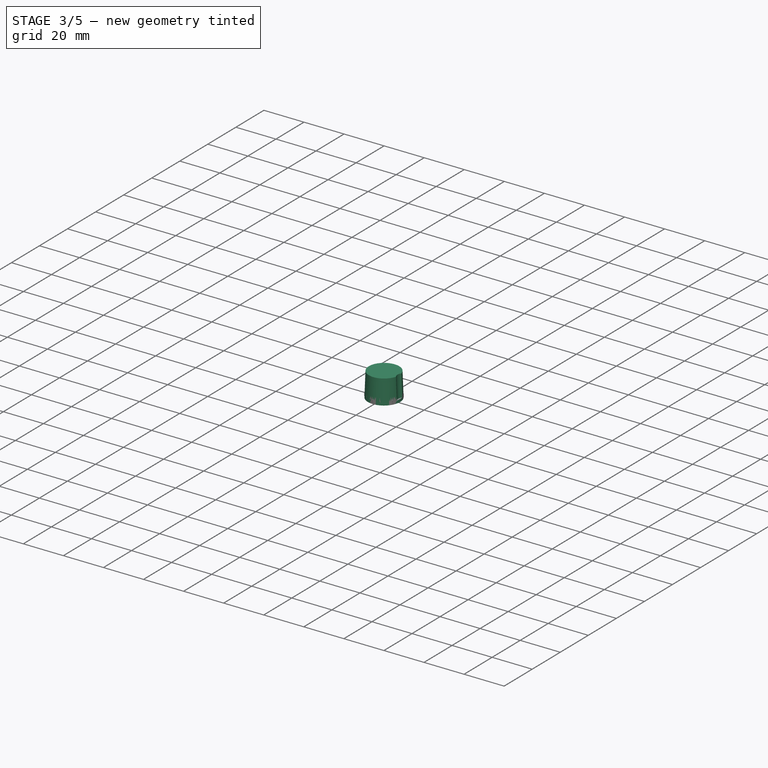
[diagram: stage 3 of 5 — iso view after this stage's code; geometry added in this stage tinted green]
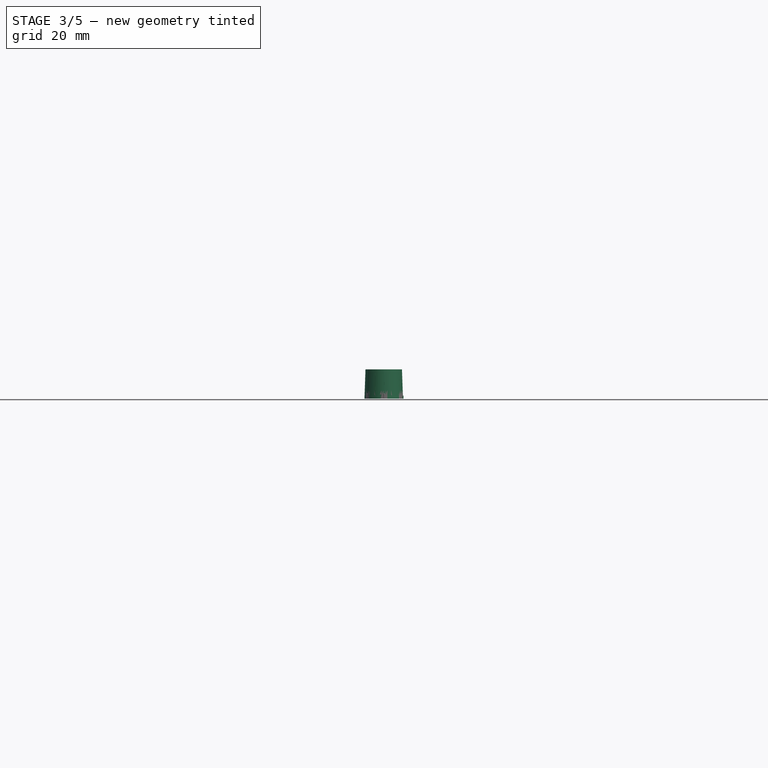
[diagram: stage 3 of 5 — front view after this stage's code; geometry added in this stage tinted green]
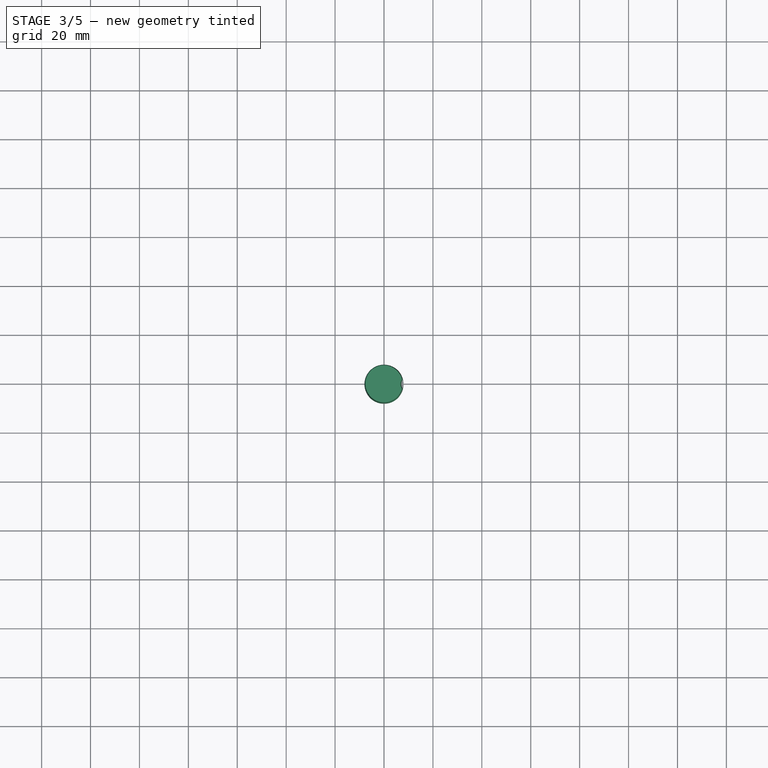
[diagram: stage 3 of 5 — top view after this stage's code; geometry added in this stage tinted green]
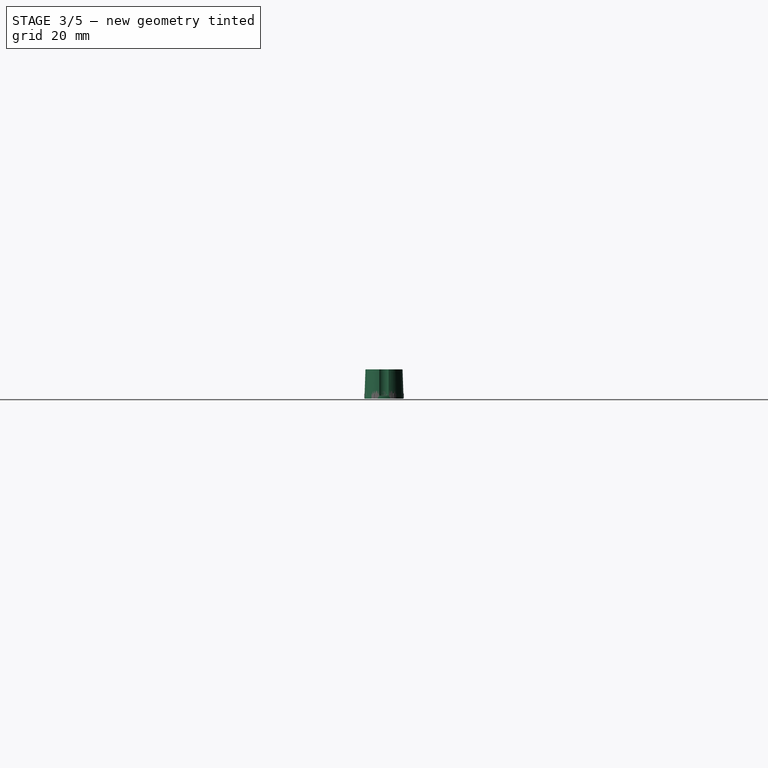
[diagram: stage 3 of 5 — right view after this stage's code; geometry added in this stage tinted green]
FEATURE [PartDesign::Body] Body001  label="Knob_Synthie_Red"
  Group = -> [Sketch,Revolution,Sketch001,Pocket,PolarPattern,Sketch002,Pocket001,Sketch003,Pocket002,Sketch004,Pocket003,Sketch005,Pocket004]
  Origin = -> Origin034
  Placement = pos=(0,0,6) rot=(0,0,1;0rad)
  Tip = -> Pocket004
FEATURE [Sketcher::SketchObject] Sketch006
  MapMode = 5
  Placement = pos=(0,0,0) rot=(1,0,0;1.5708rad)
  Support = -> [XZ_Plane035]
  sketch-geometry (4):
    g0: LineSegment StartX=0 StartY=0 StartZ=0 EndX=0 EndY=12 EndZ=0
    g1: LineSegment StartX=0 StartY=12 StartZ=0 EndX=7.58095 EndY=12 EndZ=0
    g2: LineSegment StartX=7.58095 StartY=12 StartZ=0 EndX=8 EndY=0 EndZ=0
    g3: LineSegment StartX=8 StartY=0 StartZ=0 EndX=0 EndY=0 EndZ=0
  constraints (11):
    c: Coincident(g-1,g0)
    c: PointOnObject(g0,g-2)
    c: Coincident(g0,g1)
    c: Horizontal(g1)
    c: Coincident(g1,g2)
    c: PointOnObject(g2,g-1)
    c: Coincident(g2,g3)
    c: Coincident(g3,g0)
    c: DistanceX(g3,g3) = 8
    c: Angle(g2,g3) = 1.53589
    c: DistanceY(g0,g0) = 12
FEATURE [Sketcher::SketchObject] Sketch008
  AttachmentOffset = pos=(0,0,12) rot=(0,1,0;-0.034907rad)
  MapMode = 5
  Placement = pos=(0,0,12) rot=(0,1,0;6.24828rad)
  Support = -> [XY_Plane035]
  sketch-geometry (2):
    g0: ArcOfCircle CenterX=9.8031 CenterY=1e-16 CenterZ=0 NormalX=0 NormalY=0 NormalZ=1 AngleXU=0 Radius=3.11806 StartAngle=1.7964 EndAngle=4.48679
    g1: LineSegment StartX=9.10561 StartY=3.03905 StartZ=0 EndX=9.10561 EndY=-3.03905 EndZ=0
  constraints (3):
    c: Coincident(g1,g0)
    c: Coincident(g1,g0)
    c: Symmetric(g0,g0,g-1)
FEATURE [Sketcher::SketchObject] Sketch010
  AttachmentOffset = pos=(0,0,8) rot=(0,0,1;0rad)
  MapMode = 5
  Placement = pos=(8,-1.8e-15,1.8e-15) rot=(0.57735,0.57735,0.57735;2.0944rad)
  Support = -> [YZ_Plane035]
  sketch-geometry (1):
    g0: Circle CenterX=0 CenterY=4 CenterZ=0 NormalX=0 NormalY=0 NormalZ=1 AngleXU=0 Radius=1
  constraints (3):
    c: PointOnObject(g0,g-2)
    c: Radius(g0) = 1
    c: DistanceY(g-1,g0) = 4
FEATURE [PartDesign::Revolution] Revolution001
  Angle = 360
  Axis = (0,-2e-16,1)
  Base = (0,0,0)
  Placement = pos=(0,0,0) rot=(1,0,0;1.5708rad)
  Profile = -> Sketch006
  ReferenceAxis = -> Sketch006 [V_Axis]
  Reversed = true
FEATURE [PartDesign::Pocket] Pocket006
  BaseFeature = -> Revolution001
  Length = 11
  Length2 = 100
  Placement = pos=(0,0,0) rot=(1,0,0;1.5708rad)
  Profile = -> Sketch008
  Type = 0
FEATURE [PartDesign::Body] Body002  label="Knob_Synthie_Orange"
  Group = -> [Sketch006,Revolution001,Sketch008,Pocket006,PolarPattern001,Sketch007,Pocket008,Sketch011,Pocket005,Sketch009,Pocket009,Sketch010,Pocket007]
  Origin = -> Origin035
  Placement = pos=(0,0,6) rot=(0,0,1;0rad)
  Tip = -> Pocket007
FEATURE [Sketcher::SketchObject] Sketch013
  AttachmentOffset = pos=(0,0,12) rot=(0,1,0;-0.034907rad)
  MapMode = 5
  Placement = pos=(0,0,12) rot=(0,1,0;6.24828rad)
  Support = -> [XY_Plane036]
  sketch-geometry (2):
    g0: ArcOfCircle CenterX=9.8031 CenterY=1e-16 CenterZ=0 NormalX=0 NormalY=0 NormalZ=1 AngleXU=0 Radius=3.11806 StartAngle=1.7964 EndAngle=4.48679
    g1: LineSegment StartX=9.10561 StartY=3.03905 StartZ=0 EndX=9.10561 EndY=-3.03905 EndZ=0
  constraints (3):
    c: Coincident(g1,g0)
    c: Coincident(g1,g0)
    c: Symmetric(g0,g0,g-1)
FEATURE [Sketcher::SketchObject] Sketch015
  MapMode = 5
  Placement = pos=(0,0,0) rot=(1,0,0;1.5708rad)
  Support = -> [XZ_Plane036]
  sketch-geometry (4):
    g0: LineSegment StartX=0 StartY=0 StartZ=0 EndX=0 EndY=12 EndZ=0
    g1: LineSegment StartX=0 StartY=12 StartZ=0 EndX=7.58095 EndY=12 EndZ=0
    g2: LineSegment StartX=7.58095 StartY=12 StartZ=0 EndX=8 EndY=0 EndZ=0
    g3: LineSegment StartX=8 StartY=0 StartZ=0 EndX=0 EndY=0 EndZ=0
  constraints (11):
    c: Coincident(g-1,g0)
    c: PointOnObject(g0,g-2)
    c: Coincident(g0,g1)
    c: Horizontal(g1)
    c: Coincident(g1,g2)
    c: PointOnObject(g2,g-1)
    c: Coincident(g2,g3)
    c: Coincident(g3,g0)
    c: DistanceX(g3,g3) = 8
    c: Angle(g2,g3) = 1.53589
    c: DistanceY(g0,g0) = 12
FEATURE [Sketcher::SketchObject] Sketch016
  AttachmentOffset = pos=(0,0,8) rot=(0,0,1;0rad)
  MapMode = 5
  Placement = pos=(8,-1.8e-15,1.8e-15) rot=(0.57735,0.57735,0.57735;2.0944rad)
  Support = -> [YZ_Plane036]
  sketch-geometry (1):
    g0: Circle CenterX=0 CenterY=4 CenterZ=0 NormalX=0 NormalY=0 NormalZ=1 AngleXU=0 Radius=1
  constraints (3):
    c: PointOnObject(g0,g-2)
    c: Radius(g0) = 1
    c: DistanceY(g-1,g0) = 4
FEATURE [PartDesign::Revolution] Revolution002
  Angle = 360
  Axis = (0,-2e-16,1)
  Base = (0,0,0)
  Placement = pos=(0,0,0) rot=(1,0,0;1.5708rad)
  Profile = -> Sketch015
  ReferenceAxis = -> Sketch015 [V_Axis]
  Reversed = true
FEATURE [PartDesign::Pocket] Pocket011
  BaseFeature = -> Revolution002
  Length = 11
  Length2 = 100
  Placement = pos=(0,0,0) rot=(1,0,0;1.5708rad)
  Profile = -> Sketch013
  Type = 0
FEATURE [PartDesign::PolarPattern] PolarPattern002
  Angle = 360
  Axis = -> Z_Axis036
  BaseFeature = -> Pocket011
  Occurrences = 7
  Originals = -> [Pocket011]
  Placement = pos=(0,0,0) rot=(1,0,0;1.5708rad)
FEATURE [Sketcher::SketchObject] Sketch012
  MapMode = 5
  Placement = pos=(0,2.7e-15,12) rot=(0,0,1;3.14159rad)
  Support = -> [PolarPattern002]
  sketch-geometry (1):
    g0: Circle CenterX=0 CenterY=0 CenterZ=0 NormalX=0 NormalY=0 NormalZ=1 AngleXU=0 Radius=5
  constraints (2):
    c: Coincident(g0,g-1)
    c: Radius(g0) = 5
FEATURE [PartDesign::Pocket] Pocket012
  BaseFeature = -> PolarPattern002
  Length = 0.1
  Length2 = 100
  Placement = pos=(0,0,0) rot=(1,0,0;1.5708rad)
  Profile = -> Sketch012
  Type = 0
FEATURE [Sketcher::SketchObject] Sketch017
  MapMode = 5
  Placement = pos=(0,0,0) rot=(1,0,0;3.14159rad)
  Support = -> [Pocket012]
  sketch-geometry (1):
    g0: Circle CenterX=0 CenterY=0 CenterZ=0 NormalX=0 NormalY=0 NormalZ=1 AngleXU=0 Radius=6
  constraints (2):
    c: Coincident(g0,g-1)
    c: Radius(g0) = 6
FEATURE [PartDesign::Pocket] Pocket014
  BaseFeature = -> Pocket012
  Length = 3
  Length2 = 100
  Placement = pos=(0,0,0) rot=(1,0,0;1.5708rad)
  Profile = -> Sketch017
  Type = 0
FEATURE [Sketcher::SketchObject] Sketch014
  MapMode = 5
  Placement = pos=(0,0,3) rot=(1,0,0;3.14159rad)
  Support = -> [Pocket014]
  sketch-geometry (1):
    g0: Circle CenterX=0 CenterY=0 CenterZ=0 NormalX=0 NormalY=0 NormalZ=1 AngleXU=0 Radius=5
  constraints (2):
    c: Coincident(g0,g-1)
    c: Radius(g0) = 5
FEATURE [PartDesign::Pocket] Pocket010
  BaseFeature = -> Pocket014
  Length = 5
  Length2 = 100
  Placement = pos=(0,0,0) rot=(1,0,0;1.5708rad)
  Profile = -> Sketch014
  Type = 0
FEATURE [PartDesign::Pocket] Pocket013
  BaseFeature = -> Pocket010
  Length = 0
  Length2 = 100
  Placement = pos=(0,0,0) rot=(1,0,0;1.5708rad)
  Profile = -> Sketch016
  Type = 3
  UpToFace = -> Pocket010 [Face22]
FEATURE [Sketcher::SketchObject] Sketch019
  MapMode = 5
  Placement = pos=(0,0,2) rot=(0,0,1;0rad)
  Support = -> [Pad]
  sketch-geometry (9):
    g0: Circle CenterX=0 CenterY=0 CenterZ=0 NormalX=0 NormalY=0 NormalZ=1 AngleXU=0 Radius=8.40128
    g1: GeomPoint X=0 Y=8.40128 Z=0
    g2: LineSegment StartX=0 StartY=7.33235 StartZ=0 EndX=-6.35 EndY=3.66617 EndZ=0
    g3: LineSegment StartX=-6.35 StartY=3.66617 StartZ=0 EndX=-6.35 EndY=-3.66617 EndZ=0
    g4: LineSegment StartX=-6.35 StartY=-3.66617 StartZ=0 EndX=0 EndY=-7.33235 EndZ=0
    g5: LineSegment StartX=0 StartY=-7.33235 StartZ=0 EndX=6.35 EndY=-3.66617 EndZ=0
    g6: LineSegment StartX=6.35 StartY=-3.66617 StartZ=0 EndX=6.35 EndY=3.66617 EndZ=0
    g7: LineSegment StartX=6.35 StartY=3.66617 StartZ=0 EndX=0 EndY=7.33235 EndZ=0
    g8: Circle [constr] CenterX=0 CenterY=0 CenterZ=0 NormalX=0 NormalY=0 NormalZ=1 AngleXU=0 Radius=7.33235
  constraints (19):
    c: Coincident(g0,g-1)
    c: PointOnObject(g1,g0)
    c: PointOnObject(g1,g-2)
    c: Coincident(g2,g3)
    c: Coincident(g3,g4)
    c: Coincident(g4,g5)
    c: Coincident(g5,g6)
    c: Coincident(g6,g7)
    c: Coincident(g7,g2)
    c: Equal(g2, g3-g7) x5
    c: PointOnObject(g2,g8)
    c: PointOnObject(g3,g8)
    c: PointOnObject(g4,g8)
    c: PointOnObject(g5,g8)
    c: PointOnObject(g6,g8)
    c: PointOnObject(g7,g8)
    c: Coincident(g8,g0)
    c: PointOnObject(g7,g-2)
    c: DistanceX(g2,g6) = 12.7
FEATURE [PartDesign::Chamfer] Chamfer
  Base = -> Pad [Edge3]
  BaseFeature = -> Pad
  Size = 0.75
FEATURE [PartDesign::Chamfer] Chamfer001
  Base = -> Chamfer [Edge3]
  BaseFeature = -> Chamfer
  Size = 0.75
FEATURE [PartDesign::Pocket] Pocket015
  BaseFeature = -> Chamfer001
  Length = 5
  Length2 = 100
  Midplane = true
  Profile = -> Sketch019
  Type = 1
FEATURE [Sketcher::SketchObject] Sketch020
  MapMode = 5
  Support = -> [XY_Plane053]
  sketch-geometry (1):
    g0: Circle CenterX=0 CenterY=0 CenterZ=0 NormalX=0 NormalY=0 NormalZ=1 AngleXU=0 Radius=5
  constraints (2):
    c: Coincident(g0,g-1)
    c: Radius(g0) = 5
FEATURE [PartDesign::Pocket] Pocket016
  BaseFeature = -> Pocket015
  Length = 5
  Length2 = 100
  Midplane = true
  Profile = -> Sketch020
  Type = 1
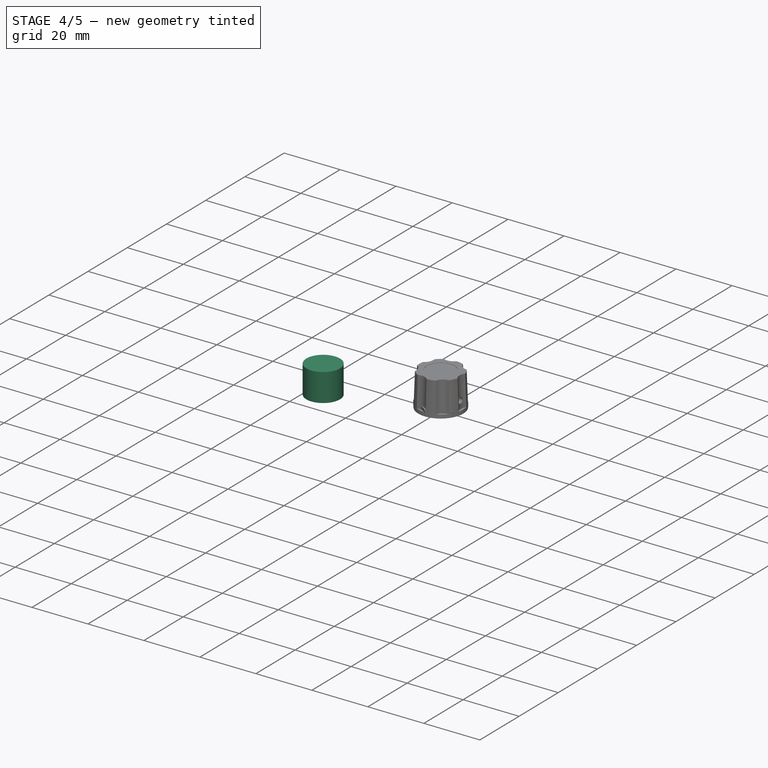
[diagram: stage 4 of 5 — iso view after this stage's code; geometry added in this stage tinted green]
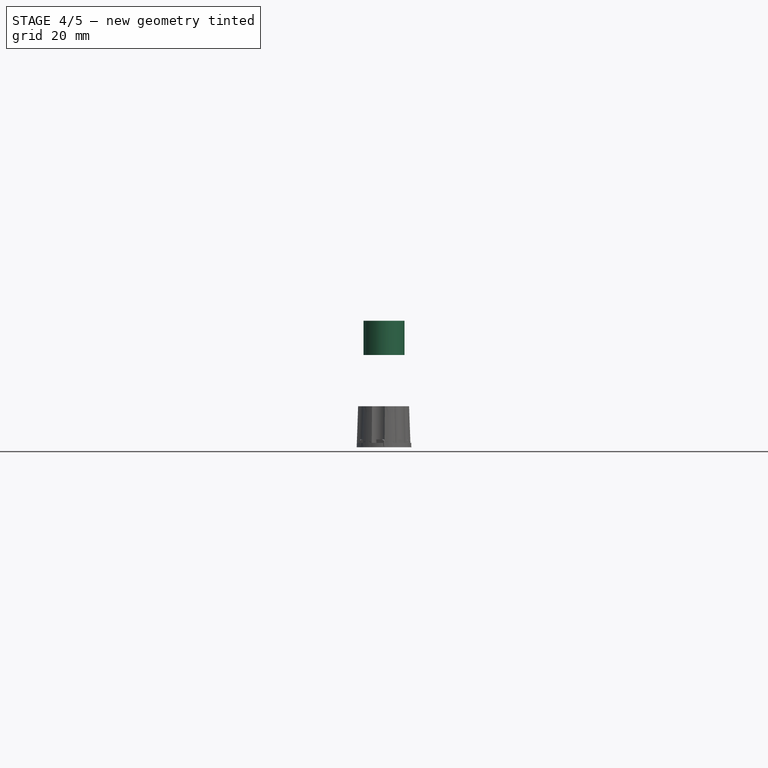
[diagram: stage 4 of 5 — front view after this stage's code; geometry added in this stage tinted green]
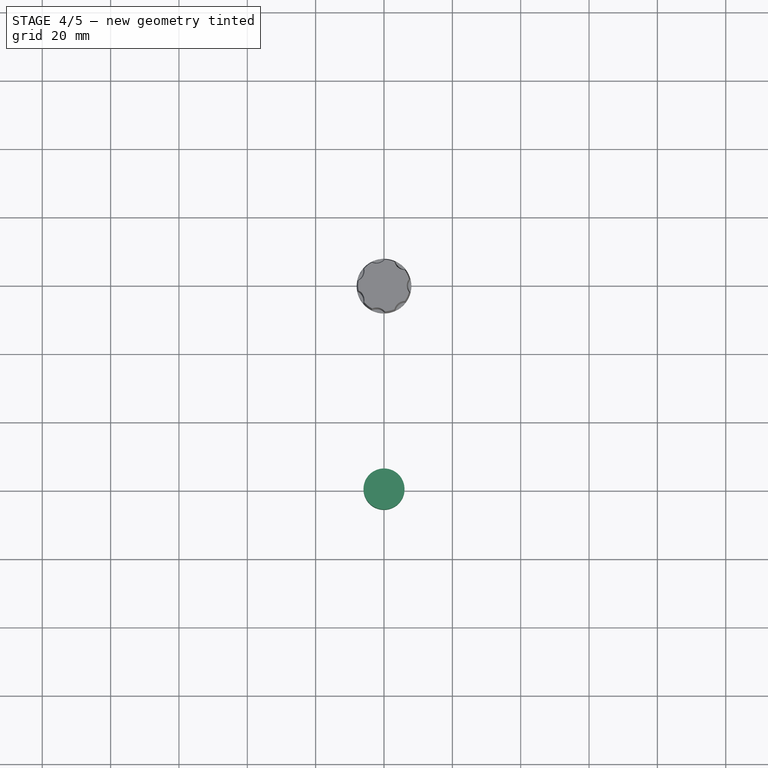
[diagram: stage 4 of 5 — top view after this stage's code; geometry added in this stage tinted green]
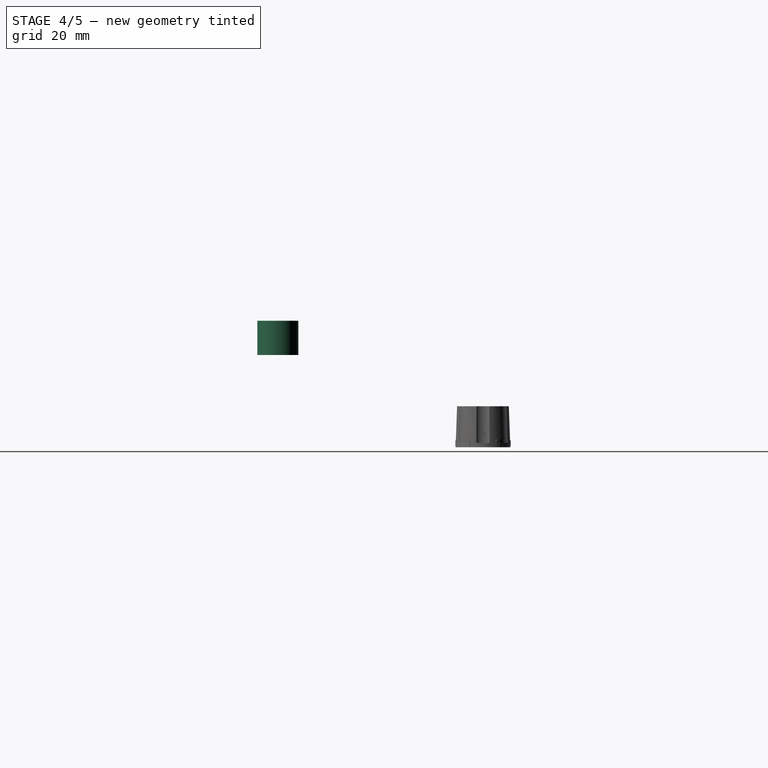
[diagram: stage 4 of 5 — right view after this stage's code; geometry added in this stage tinted green]
FEATURE [PartDesign::Plane] DatumPlane002  label="DatumPlane_Rear_Inside"
  Length = 60.17
  MapMode = 5
  Placement = pos=(2.03e-14,91.387,3.19131) rot=(0,0.71934,-0.694658;3.14159rad)
  ResizeMode = 0
  Support = -> [ShapeBinder006]
  Width = 61.8845
FEATURE [PartDesign::Plane] DatumPlane003  label="DatumPlane_Top_Inside"
  Length = 60
  MapMode = 5
  Placement = pos=(0,0,30.5) rot=(0.707107,0.707107,0;3.14159rad)
  ResizeMode = 0
  Support = -> [ShapeBinder004]
  Width = 60
FEATURE [PartDesign::Plane] DatumPlane004  label="DatumPlane_Lid_Inside"
  Length = 60
  MapMode = 5
  Placement = pos=(0,0,-1.5) rot=(0,0,1;1.5708rad)
  ResizeMode = 0
  Support = -> [ShapeBinder]
  Width = 60
FEATURE [Part::Cylinder] Cylinder010  label="Drill - Footswitch [D=12.0, X=0.0, Y=-60.0]"
  Angle = 360
  AttacherType = Attacher::AttachEngine3D
  Height = 10
  Placement = pos=(0,-60,27) rot=(0,0,1;0rad)
  Radius = 6
FEATURE [App::Part] Part002  label="#700-000 - Enclosure - Box, Machined"
  Group = -> [Part__Feature,Fusion001,Cylinder002,Cylinder006,Cylinder004,Cylinder005,Cylinder,Cylinder001,Cylinder003,Cut]
  Origin = -> Origin003
FEATURE [PartDesign::CoordinateSystem] Local_CS_3323
  AttacherType = Attacher::AttachEngine3D
FEATURE [Part::Feature] Pcb_3323
  Placement = pos=(-147.637,134.62,0) rot=(0,0,1;0rad)
  shape: bbox 112.4 x 102.9 x 1.6 mm, 643 faces (baked)
FEATURE [Sketcher::SketchObject] PCB_Sketch_3323
  sketch-geometry (49):
    g0: LineSegment StartX=48.5775 StartY=90.17 StartZ=0 EndX=41.91 EndY=90.17 EndZ=0
    g1: LineSegment StartX=-41.91 StartY=90.17 StartZ=0 EndX=-48.5775 EndY=90.17 EndZ=0
    g2: LineSegment StartX=-56.1975 StartY=64.135 StartZ=0 EndX=-56.1975 EndY=82.55 EndZ=0
    g3: LineSegment StartX=56.1975 StartY=5.715 StartZ=0 EndX=56.1975 EndY=52.705 EndZ=0
    g4: LineSegment StartX=54.9275 StartY=53.34 StartZ=0 EndX=55.5625 EndY=53.34 EndZ=0
    g5: LineSegment StartX=54.9275 StartY=63.5 StartZ=0 EndX=55.5625 EndY=63.5 EndZ=0
    g6: LineSegment StartX=-54.9275 StartY=63.5 StartZ=0 EndX=-55.5625 EndY=63.5 EndZ=0
    g7: LineSegment StartX=-54.9275 StartY=53.34 StartZ=0 EndX=-55.5625 EndY=53.34 EndZ=0
    g8: LineSegment StartX=-54.9275 StartY=5.08 StartZ=0 EndX=-55.5625 EndY=5.08 EndZ=0
    g9: LineSegment StartX=49.2125 StartY=89.535 StartZ=0 EndX=49.2125 EndY=88.9 EndZ=0
    g10: LineSegment StartX=55.5625 StartY=83.185 StartZ=0 EndX=54.9275 EndY=83.185 EndZ=0
    g11: LineSegment StartX=55.5625 StartY=5.08 StartZ=0 EndX=54.9275 EndY=5.08 EndZ=0
    g12: LineSegment StartX=55.5625 StartY=-5.08 StartZ=0 EndX=54.9275 EndY=-5.08 EndZ=0
    g13: LineSegment StartX=-54.9275 StartY=-12.7 StartZ=0 EndX=-55.5625 EndY=-12.7 EndZ=0
    g14: LineSegment StartX=-54.9275 StartY=-5.08 StartZ=0 EndX=-55.5625 EndY=-5.08 EndZ=0
    g15: LineSegment StartX=-54.9275 StartY=83.185 StartZ=0 EndX=-55.5625 EndY=83.185 EndZ=0
    g16: LineSegment StartX=-49.2125 StartY=88.9 StartZ=0 EndX=-49.2125 EndY=89.535 EndZ=0
    g17: LineSegment StartX=-56.1975 StartY=-5.715 StartZ=0 EndX=-56.1975 EndY=-12.065 EndZ=0
    g18: LineSegment StartX=56.1975 StartY=-5.715 StartZ=0 EndX=56.1975 EndY=-12.065 EndZ=0
    g19: LineSegment StartX=34.29 StartY=90.17 StartZ=0 EndX=-34.29 EndY=90.17 EndZ=0
    g20: LineSegment StartX=56.1975 StartY=64.135 StartZ=0 EndX=56.1975 EndY=82.55 EndZ=0
    g21: LineSegment StartX=-54.9275 StartY=-12.7 StartZ=0 EndX=55.5625 EndY=-12.7 EndZ=0
    g22: LineSegment StartX=-56.1975 StartY=5.715 StartZ=0 EndX=-56.1975 EndY=52.705 EndZ=0
    g23: ArcOfCircle CenterX=-55.5625 CenterY=82.55 CenterZ=0 NormalX=0 NormalY=0 NormalZ=1 AngleXU=0 Radius=0.635 StartAngle=1.5708 EndAngle=3.14159
    g24: ArcOfCircle CenterX=-55.5625 CenterY=64.135 CenterZ=0 NormalX=0 NormalY=0 NormalZ=1 AngleXU=0 Radius=0.635 StartAngle=3.14159 EndAngle=4.71239
    g25: ArcOfCircle CenterX=-55.5625 CenterY=52.705 CenterZ=0 NormalX=0 NormalY=0 NormalZ=1 AngleXU=0 Radius=0.635 StartAngle=1.5708 EndAngle=3.14159
    g26: ArcOfCircle CenterX=-55.5625 CenterY=5.715 CenterZ=0 NormalX=0 NormalY=0 NormalZ=1 AngleXU=0 Radius=0.635 StartAngle=3.14159 EndAngle=4.71239
    g27: ArcOfCircle CenterX=-55.5625 CenterY=-5.715 CenterZ=0 NormalX=0 NormalY=0 NormalZ=1 AngleXU=0 Radius=0.635 StartAngle=1.5708 EndAngle=3.14159
    g28: ArcOfCircle CenterX=-55.5625 CenterY=-12.065 CenterZ=0 NormalX=0 NormalY=0 NormalZ=1 AngleXU=0 Radius=0.635 StartAngle=3.14159 EndAngle=4.71239
    g29: ArcOfCircle CenterX=55.5625 CenterY=-12.065 CenterZ=0 NormalX=0 NormalY=0 NormalZ=1 AngleXU=0 Radius=0.635 StartAngle=4.71239 EndAngle=6.28319
    g30: ArcOfCircle CenterX=55.5625 CenterY=-5.715 CenterZ=0 NormalX=0 NormalY=0 NormalZ=1 AngleXU=0 Radius=0.635 StartAngle=0 EndAngle=1.5708
    g31: ArcOfCircle CenterX=55.5625 CenterY=5.715 CenterZ=0 NormalX=0 NormalY=0 NormalZ=1 AngleXU=0 Radius=0.635 StartAngle=4.71239 EndAngle=6.28319
    g32: ArcOfCircle CenterX=55.5625 CenterY=52.705 CenterZ=0 NormalX=0 NormalY=0 NormalZ=1 AngleXU=0 Radius=0.635 StartAngle=0 EndAngle=1.5708
    g33: ArcOfCircle CenterX=55.5625 CenterY=64.135 CenterZ=0 NormalX=0 NormalY=0 NormalZ=1 AngleXU=0 Radius=0.635 StartAngle=4.71239 EndAngle=6.28319
    g34: ArcOfCircle CenterX=55.5625 CenterY=82.55 CenterZ=0 NormalX=0 NormalY=0 NormalZ=1 AngleXU=0 Radius=0.635 StartAngle=0 EndAngle=1.5708
    g35: ArcOfCircle CenterX=48.5775 CenterY=89.535 CenterZ=0 NormalX=0 NormalY=0 NormalZ=1 AngleXU=0 Radius=0.635 StartAngle=0 EndAngle=1.5708
    g36: ArcOfCircle CenterX=41.91 CenterY=89.535 CenterZ=0 NormalX=0 NormalY=0 NormalZ=1 AngleXU=0 Radius=0.635 StartAngle=1.5708 EndAngle=3.14159
    g37: ArcOfCircle CenterX=34.29 CenterY=89.535 CenterZ=0 NormalX=0 NormalY=0 NormalZ=1 AngleXU=0 Radius=0.635 StartAngle=0 EndAngle=1.5708
    g38: ArcOfCircle CenterX=-34.29 CenterY=89.535 CenterZ=0 NormalX=0 NormalY=0 NormalZ=1 AngleXU=0 Radius=0.635 StartAngle=1.5708 EndAngle=3.14159
    g39: ArcOfCircle CenterX=-41.91 CenterY=89.535 CenterZ=0 NormalX=0 NormalY=0 NormalZ=1 AngleXU=0 Radius=0.635 StartAngle=0 EndAngle=1.5708
    g40: ArcOfCircle CenterX=-48.5775 CenterY=89.535 CenterZ=0 NormalX=0 NormalY=0 NormalZ=1 AngleXU=0 Radius=0.635 StartAngle=1.5708 EndAngle=3.14159
    g41: ArcOfCircle CenterX=38.1 CenterY=89.535 CenterZ=0 NormalX=0 NormalY=0 NormalZ=1 AngleXU=0 Radius=3.175 StartAngle=3.14159 EndAngle=6.28319
    g42: ArcOfCircle CenterX=-38.1 CenterY=90.17 CenterZ=0 NormalX=0 NormalY=0 NormalZ=1 AngleXU=0 Radius=3.23788 StartAngle=3.33899 EndAngle=6.08579
    g43: ArcOfCircle CenterX=54.9275 CenterY=58.42 CenterZ=0 NormalX=0 NormalY=0 NormalZ=1 AngleXU=0 Radius=5.08 StartAngle=1.5708 EndAngle=4.71239
    g44: ArcOfCircle CenterX=-54.9275 CenterY=58.42 CenterZ=0 NormalX=0 NormalY=0 NormalZ=1 AngleXU=0 Radius=5.08 StartAngle=4.71239 EndAngle=7.85398
    g45: ArcOfCircle CenterX=54.9275 CenterY=0 CenterZ=0 NormalX=0 NormalY=0 NormalZ=1 AngleXU=0 Radius=5.08 StartAngle=1.5708 EndAngle=4.71239
    g46: ArcOfCircle CenterX=54.9275 CenterY=88.9 CenterZ=0 NormalX=0 NormalY=0 NormalZ=1 AngleXU=0 Radius=5.715 StartAngle=3.14159 EndAngle=4.71239
    g47: ArcOfCircle CenterX=-54.9275 CenterY=0 CenterZ=0 NormalX=0 NormalY=0 NormalZ=1 AngleXU=0 Radius=5.08 StartAngle=4.71239 EndAngle=7.85398
    g48: ArcOfCircle CenterX=-54.9275 CenterY=88.9 CenterZ=0 NormalX=0 NormalY=0 NormalZ=1 AngleXU=0 Radius=5.715 StartAngle=4.71239 EndAngle=6.28319
  constraints (49):
    c: Coincident(g17,g28)
    c: Coincident(g17,g27)
    c: Coincident(g22,g26)
    c: Coincident(g22,g25)
    c: Coincident(g24,g2)
    c: Coincident(g23,g2)
    c: Coincident(g28,g13)
    c: Coincident(g14,g27)
    c: Coincident(g8,g26)
    c: Coincident(g25,g7)
    c: Coincident(g6,g24)
    c: Coincident(g23,g15)
    c: Coincident(g21,g13)
    c: Coincident(g14,g47)
    c: Coincident(g8,g47)
    c: Coincident(g7,g44)
    c: Coincident(g6,g44)
    c: Coincident(g15,g48)
    c: Coincident(g48,g16)
    c: Coincident(g40,g16)
    c: Coincident(g40,g1)
    c: Coincident(g39,g1)
    c: Coincident(g39,g42)
    c: Coincident(g42,g38)
    c: Coincident(g19,g38)
    c: Coincident(g37,g19)
    c: Coincident(g37,g41)
    c: Coincident(g41,g36)
    c: Coincident(g0,g36)
    c: Coincident(g35,g0)
    c: Coincident(g9,g46)
    c: Coincident(g35,g9)
    c: Coincident(g12,g45)
    c: Coincident(g45,g11)
    c: Coincident(g4,g43)
    c: Coincident(g43,g5)
    c: Coincident(g10,g46)
    c: Coincident(g21,g29)
    c: Coincident(g30,g12)
    c: Coincident(g31,g11)
    c: Coincident(g4,g32)
    c: Coincident(g33,g5)
    c: Coincident(g34,g10)
    c: Coincident(g18,g29)
    c: Coincident(g18,g30)
    c: Coincident(g31,g3)
    c: Coincident(g3,g32)
    c: Coincident(g20,g33)
    c: Coincident(g20,g34)
FEATURE [App::Part] Board_Geoms_3323
  Group = -> [Local_CS_3323,Pcb_3323,PCB_Sketch_3323]
  Origin = -> Origin005
FEATURE [Part::Feature] Shape  label=""Z2"_RC4558P_5E35D0F8"
  Placement = pos=(-28.2575,29.21,0) rot=(0,0,1;1.5708rad)
  shape: bbox 9.59 x 7.87 x 7.1 mm, 280 faces (baked)
FEATURE [Part::Feature] Shape001  label=""PM1"_Open_CASCADE_STEP_translator_6_9_1_cp_5E35A7A5"
  Placement = pos=(-13.0175,19.05,0) rot=(0,0,1;1.5708rad)
  shape: bbox 19.07 x 19.09 x 15.55 mm, 437 faces, 18 solids (baked)
FEATURE [Part::Feature] Solid  label="1/8W_10.16_H023"
  Placement = pos=(0,0,1.25) rot=(0,0,-1;1.5708rad)
  shape: bbox 10.96 x 0.55 x 4.251 mm, 7 faces (baked)
FEATURE [Part::Feature] Solid001  label="1/8W_Body062"
  Placement = pos=(0,0,1.25) rot=(0,0,-1;1.5708rad)
  shape: bbox 6.5 x 2.706 x 2.706 mm, 5 faces (baked)
FEATURE [Part::Feature] Solid002  label="Band_060"
  shape: bbox 0.5 x 2.55 x 2.55 mm, 3 faces (baked)
FEATURE [Part::Feature] Solid003  label="Band_058"
  shape: bbox 0.5 x 2.55 x 2.55 mm, 3 faces (baked)
FEATURE [Part::Feature] Solid004  label="Band_059"
  shape: bbox 0.5 x 2.55 x 2.55 mm, 3 faces (baked)
FEATURE [Part::Feature] Solid005  label="Band_Tolerance019"
  shape: bbox 0.5 x 2.55 x 2.55 mm, 3 faces (baked)
FEATURE [App::LinkGroup] LinkGroup  label=""R57"_R_CF25_P10.16_H_27k_5E2EAABC"
  ElementList = -> [Solid,Solid001,Solid002,Solid003,Solid004,Solid005]
  LinkMode = 0
  Placement = pos=(47.3075,83.185,0) rot=(0,0,1;1.5708rad)
FEATURE [Part::Feature] Solid006  label="1/8W_10.16_H024"
  Placement = pos=(0,0,1.25) rot=(0,0,-1;1.5708rad)
  shape: bbox 10.96 x 0.55 x 4.251 mm, 7 faces (baked)
FEATURE [Part::Feature] Solid007  label="1/8W_Body063"
  Placement = pos=(0,0,1.25) rot=(0,0,-1;1.5708rad)
  shape: bbox 6.5 x 2.706 x 2.706 mm, 5 faces (baked)
FEATURE [Part::Feature] Solid008  label="Band_061"
  shape: bbox 0.5 x 2.55 x 2.55 mm, 3 faces (baked)
FEATURE [Part::Feature] Solid009  label="Band_063"
  shape: bbox 0.5 x 2.55 x 2.55 mm, 3 faces (baked)
FEATURE [Part::Feature] Solid010  label="Band_062"
  shape: bbox 0.5 x 2.55 x 2.55 mm, 3 faces (baked)
FEATURE [Part::Feature] Solid011  label="Band_Tolerance020"
  shape: bbox 0.5 x 2.55 x 2.55 mm, 3 faces (baked)
FEATURE [App::LinkGroup] LinkGroup001  label=""XR5"_R_CF25_P10.16_H_2k2_5E176B90"
  ElementList = -> [Solid006,Solid007,Solid008,Solid009,Solid010,Solid011]
  LinkMode = 0
  Placement = pos=(42.8625,24.765,0) rot=(0,0,1;1.5708rad)
FEATURE [Part::Feature] Solid012  label="1/8W_10.16_H007"
  Placement = pos=(0,0,1.25) rot=(0,0,-1;1.5708rad)
  shape: bbox 10.96 x 0.55 x 4.251 mm, 7 faces (baked)
FEATURE [Part::Feature] Solid013  label="1/8W_Body046"
  Placement = pos=(0,0,1.25) rot=(0,0,-1;1.5708rad)
  shape: bbox 6.5 x 2.706 x 2.706 mm, 5 faces (baked)
FEATURE [Part::Feature] Solid014  label="Band_012"
  shape: bbox 0.5 x 2.55 x 2.55 mm, 3 faces (baked)
FEATURE [Part::Feature] Solid015  label="Band_010"
  shape: bbox 0.5 x 2.55 x 2.55 mm, 3 faces (baked)
FEATURE [Part::Feature] Solid016  label="Band_011"
  shape: bbox 0.5 x 2.55 x 2.55 mm, 3 faces (baked)
FEATURE [Part::Feature] Solid017  label="Band_Tolerance003"
  shape: bbox 0.5 x 2.55 x 2.55 mm, 3 faces (baked)
FEATURE [App::LinkGroup] LinkGroup002  label=""YR2"_R_CF25_P10.16_H_1M_5E2AA297"
  ElementList = -> [Solid012,Solid013,Solid014,Solid015,Solid016,Solid017]
  LinkMode = 0
  Placement = pos=(-39.37,-2.54,0) rot=(0,0,1;1.5708rad)
FEATURE [App::Link] _YR2__R_CF25_P10_16_H_1M_5E2AA297_ln_  label=""YR1"_R_CF25_P10.16_H_1M_5DD10E25"
  LinkPlacement = pos=(-51.1175,40.64,0) rot=(0,0,1;1.5708rad)
  LinkedObject = -> LinkGroup002
  Placement = pos=(-51.1175,40.64,0) rot=(0,0,1;1.5708rad)
FEATURE [Part::Feature] Solid018  label="1/8W_10.16_H008"
  Placement = pos=(0,0,1.25) rot=(0,0,-1;1.5708rad)
  shape: bbox 10.96 x 0.55 x 4.251 mm, 7 faces (baked)
FEATURE [Part::Feature] Solid019  label="1/8W_Body047"
  Placement = pos=(0,0,1.25) rot=(0,0,-1;1.5708rad)
  shape: bbox 6.5 x 2.706 x 2.706 mm, 5 faces (baked)
FEATURE [Part::Feature] Solid020  label="Band_015"
  shape: bbox 0.5 x 2.55 x 2.55 mm, 3 faces (baked)
FEATURE [Part::Feature] Solid021  label="Band_013"
  shape: bbox 0.5 x 2.55 x 2.55 mm, 3 faces (baked)
FEATURE [Part::Feature] Solid022  label="Band_014"
  shape: bbox 0.5 x 2.55 x 2.55 mm, 3 faces (baked)
FEATURE [Part::Feature] Solid023  label="Band_Tolerance004"
  shape: bbox 0.5 x 2.55 x 2.55 mm, 3 faces (baked)
FEATURE [App::LinkGroup] LinkGroup003  label=""XR2"_R_CF25_P10.16_H_1k8_5DCFCEA2"
  ElementList = -> [Solid018,Solid019,Solid020,Solid021,Solid022,Solid023]
  LinkMode = 0
  Placement = pos=(32.7025,29.21,0) rot=(0,0,1;1.5708rad)
FEATURE [App::Link] _XR2__R_CF25_P10_16_H_1k8_5DCFCEA2_ln_  label=""XR1"_R_CF25_P10.16_H_1k8_5DC00CFC"
  LinkPlacement = pos=(15.5575,-2.54,0) rot=(0,0,1;1.5708rad)
  LinkedObject = -> LinkGroup003
  Placement = pos=(15.5575,-2.54,0) rot=(0,0,1;1.5708rad)
FEATURE [Part::Feature] Solid024  label="1/8W_10.16_H006"
  Placement = pos=(0,0,1.25) rot=(0,0,-1;1.5708rad)
  shape: bbox 10.96 x 0.55 x 4.251 mm, 7 faces (baked)
FEATURE [Part::Feature] Solid025  label="1/8W_Body045"
  Placement = pos=(0,0,1.25) rot=(0,0,-1;1.5708rad)
  shape: bbox 6.5 x 2.706 x 2.706 mm, 5 faces (baked)
FEATURE [Part::Feature] Solid026  label="Band_007"
  shape: bbox 0.5 x 2.55 x 2.55 mm, 3 faces (baked)
FEATURE [Part::Feature] Solid027  label="Band_009"
  shape: bbox 0.5 x 2.55 x 2.55 mm, 3 faces (baked)
FEATURE [Part::Feature] Solid028  label="Band_008"
  shape: bbox 0.5 x 2.55 x 2.55 mm, 3 faces (baked)
FEATURE [Part::Feature] Solid029  label="Band_Tolerance002"
  shape: bbox 0.5 x 2.55 x 2.55 mm, 3 faces (baked)
FEATURE [App::LinkGroup] LinkGroup004  label=""R56"_R_CF25_P10.16_H_100k_5E2EB080"
  ElementList = -> [Solid024,Solid025,Solid026,Solid027,Solid028,Solid029]
  LinkMode = 0
  Placement = pos=(44.7675,78.74,0) rot=(0,0,1;1.5708rad)
FEATURE [Part::Feature] Solid030  label="1/8W_10.16_H009"
  Placement = pos=(0,0,1.25) rot=(0,0,-1;1.5708rad)
  shape: bbox 10.96 x 0.55 x 4.251 mm, 7 faces (baked)
FEATURE [Part::Feature] Solid031  label="1/8W_Body048"
  Placement = pos=(0,0,1.25) rot=(0,0,-1;1.5708rad)
  shape: bbox 6.5 x 2.706 x 2.706 mm, 5 faces (baked)
FEATURE [Part::Feature] Solid032  label="Band_018"
  shape: bbox 0.5 x 2.55 x 2.55 mm, 3 faces (baked)
FEATURE [Part::Feature] Solid033  label="Band_016"
  shape: bbox 0.5 x 2.55 x 2.55 mm, 3 faces (baked)
FEATURE [Part::Feature] Solid034  label="Band_017"
  shape: bbox 0.5 x 2.55 x 2.55 mm, 3 faces (baked)
FEATURE [Part::Feature] Solid035  label="Band_Tolerance005"
  shape: bbox 0.5 x 2.55 x 2.55 mm, 3 faces (baked)
FEATURE [App::LinkGroup] LinkGroup005  label=""R45"_R_CF25_P10.16_H_220R_5D8A0B22"
  ElementList = -> [Solid030,Solid031,Solid032,Solid033,Solid034,Solid035]
  LinkMode = 0
  Placement = pos=(-21.9075,-2.54,0) rot=(0,0,1;1.5708rad)
FEATURE [Part::Feature] Solid036  label="1/8W_10.16_H018"
  Placement = pos=(0,0,1.25) rot=(0,0,-1;1.5708rad)
  shape: bbox 10.96 x 0.55 x 4.251 mm, 7 faces (baked)
FEATURE [Part::Feature] Solid037  label="1/8W_Body057"
  Placement = pos=(0,0,1.25) rot=(0,0,-1;1.5708rad)
  shape: bbox 6.5 x 2.706 x 2.706 mm, 5 faces (baked)
FEATURE [Part::Feature] Solid038  label="Band_044"
  shape: bbox 0.5 x 2.55 x 2.55 mm, 3 faces (baked)
FEATURE [Part::Feature] Solid039  label="Band_043"
  shape: bbox 0.5 x 2.55 x 2.55 mm, 3 faces (baked)
FEATURE [Part::Feature] Solid040  label="Band_045"
  shape: bbox 0.5 x 2.55 x 2.55 mm, 3 faces (baked)
FEATURE [Part::Feature] Solid041  label="Band_Tolerance014"
  shape: bbox 0.5 x 2.55 x 2.55 mm, 3 faces (baked)
FEATURE [App::LinkGroup] LinkGroup006  label=""R44"_R_CF25_P10.16_H_68k_5E2AA249"
  ElementList = -> [Solid036,Solid037,Solid038,Solid039,Solid040,Solid041]
  LinkMode = 0
  Placement = pos=(-34.29,-2.54,0) rot=(0,0,1;1.5708rad)
FEATURE [Part::Feature] Solid042  label="1/8W_10.16_H011"
  Placement = pos=(0,0,1.25) rot=(0,0,-1;1.5708rad)
  shape: bbox 10.96 x 0.55 x 4.251 mm, 7 faces (baked)
FEATURE [Part::Feature] Solid043  label="1/8W_Body050"
  Placement = pos=(0,0,1.25) rot=(0,0,-1;1.5708rad)
  shape: bbox 6.5 x 2.706 x 2.706 mm, 5 faces (baked)
FEATURE [Part::Feature] Solid044  label="Band_022"
  shape: bbox 0.5 x 2.55 x 2.55 mm, 3 faces (baked)
FEATURE [Part::Feature] Solid045  label="Band_023"
  shape: bbox 0.5 x 2.55 x 2.55 mm, 3 faces (baked)
FEATURE [Part::Feature] Solid046  label="Band_024"
  shape: bbox 0.5 x 2.55 x 2.55 mm, 3 faces (baked)
FEATURE [Part::Feature] Solid047  label="Band_Tolerance007"
  shape: bbox 0.5 x 2.55 x 2.55 mm, 3 faces (baked)
FEATURE [App::LinkGroup] LinkGroup007  label=""R43"_R_CF25_P10.16_H_220k_5D8A0AF4"
  ElementList = -> [Solid042,Solid043,Solid044,Solid045,Solid046,Solid047]
  LinkMode = 0
  Placement = pos=(-24.4475,-2.54,0) rot=(0,0,1;1.5708rad)
FEATURE [Part::Feature] Solid048  label="1/8W_10.16_H005"
  Placement = pos=(0,0,1.25) rot=(0,0,-1;1.5708rad)
  shape: bbox 10.96 x 0.55 x 4.251 mm, 7 faces (baked)
FEATURE [Part::Feature] Solid049  label="1/8W_Body044"
  Placement = pos=(0,0,1.25) rot=(0,0,-1;1.5708rad)
  shape: bbox 6.5 x 2.706 x 2.706 mm, 5 faces (baked)
FEATURE [Part::Feature] Solid050  label="Band_004"
  shape: bbox 0.5 x 2.55 x 2.55 mm, 3 faces (baked)
FEATURE [Part::Feature] Solid051  label="Band_006"
  shape: bbox 0.5 x 2.55 x 2.55 mm, 3 faces (baked)
FEATURE [Part::Feature] Solid052  label="Band_005"
  shape: bbox 0.5 x 2.55 x 2.55 mm, 3 faces (baked)
FEATURE [Part::Feature] Solid053  label="Band_Tolerance001"
  shape: bbox 0.5 x 2.55 x 2.55 mm, 3 faces (baked)
FEATURE [App::LinkGroup] LinkGroup008  label=""R42"_R_CF25_P10.16_H_10k_5E2AA2C4"
  ElementList = -> [Solid048,Solid049,Solid050,Solid051,Solid052,Solid053]
  LinkMode = 0
  Placement = pos=(-31.75,-2.54,0) rot=(0,0,1;1.5708rad)
FEATURE [Part::Feature] Solid054  label="1/8W_10.16_H012"
  Placement = pos=(0,0,1.25) rot=(0,0,-1;1.5708rad)
  shape: bbox 10.96 x 0.55 x 4.251 mm, 7 faces (baked)
FEATURE [Part::Feature] Solid055  label="1/8W_Body051"
  Placement = pos=(0,0,1.25) rot=(0,0,-1;1.5708rad)
  shape: bbox 6.5 x 2.706 x 2.706 mm, 5 faces (baked)
FEATURE [Part::Feature] Solid056  label="Band_027"
  shape: bbox 0.5 x 2.55 x 2.55 mm, 3 faces (baked)
FEATURE [Part::Feature] Solid057  label="Band_025"
  shape: bbox 0.5 x 2.55 x 2.55 mm, 3 faces (baked)
FEATURE [Part::Feature] Solid058  label="Band_026"
  shape: bbox 0.5 x 2.55 x 2.55 mm, 3 faces (baked)
FEATURE [Part::Feature] Solid059  label="Band_Tolerance008"
  shape: bbox 0.5 x 2.55 x 2.55 mm, 3 faces (baked)
FEATURE [App::LinkGroup] LinkGroup009  label=""R41"_R_CF25_P10.16_H_3k3_5D8A0AC6"
  ElementList = -> [Solid054,Solid055,Solid056,Solid057,Solid058,Solid059]
  LinkMode = 0
  Placement = pos=(-28.2575,-2.54,0) rot=(0,0,1;1.5708rad)
FEATURE [Part::Feature] Solid060  label="1/8W_10.16_H015"
  Placement = pos=(0,0,1.25) rot=(0,0,-1;1.5708rad)
  shape: bbox 10.96 x 0.55 x 4.251 mm, 7 faces (baked)
FEATURE [Part::Feature] Solid061  label="1/8W_Body054"
  Placement = pos=(0,0,1.25) rot=(0,0,-1;1.5708rad)
  shape: bbox 6.5 x 2.706 x 2.706 mm, 5 faces (baked)
FEATURE [Part::Feature] Solid062  label="Band_036"
  shape: bbox 0.5 x 2.55 x 2.55 mm, 3 faces (baked)
FEATURE [Part::Feature] Solid063  label="Band_035"
  shape: bbox 0.5 x 2.55 x 2.55 mm, 3 faces (baked)
FEATURE [Part::Feature] Solid064  label="Band_034"
  shape: bbox 0.5 x 2.55 x 2.55 mm, 3 faces (baked)
FEATURE [Part::Feature] Solid065  label="Band_Tolerance011"
  shape: bbox 0.5 x 2.55 x 2.55 mm, 3 faces (baked)
FEATURE [App::LinkGroup] LinkGroup010  label=""R39"_R_CF25_P10.16_H_47k_5D8A0AAF"
  ElementList = -> [Solid060,Solid061,Solid062,Solid063,Solid064,Solid065]
  LinkMode = 0
  Placement = pos=(-5.3975,-2.54,0) rot=(0,0,1;1.5708rad)
FEATURE [Part::Feature] Solid066  label="1/8W_10.16_H021"
  Placement = pos=(0,0,1.25) rot=(0,0,-1;1.5708rad)
  shape: bbox 10.96 x 0.55 x 4.251 mm, 7 faces (baked)
FEATURE [Part::Feature] Solid067  label="1/8W_Body060"
  Placement = pos=(0,0,1.25) rot=(0,0,-1;1.5708rad)
  shape: bbox 6.5 x 2.706 x 2.706 mm, 5 faces (baked)
FEATURE [Part::Feature] Solid068  label="Band_052"
  shape: bbox 0.5 x 2.55 x 2.55 mm, 3 faces (baked)
FEATURE [Part::Feature] Solid069  label="Band_053"
  shape: bbox 0.5 x 2.55 x 2.55 mm, 3 faces (baked)
FEATURE [Part::Feature] Solid070  label="Band_054"
  shape: bbox 0.5 x 2.55 x 2.55 mm, 3 faces (baked)
FEATURE [Part::Feature] Solid071  label="Band_Tolerance017"
  shape: bbox 0.5 x 2.55 x 2.55 mm, 3 faces (baked)
FEATURE [App::LinkGroup] LinkGroup011  label=""R37"_R_CF25_P10.16_H_82k_5D8A0A98"
  ElementList = -> [Solid066,Solid067,Solid068,Solid069,Solid070,Solid071]
  LinkMode = 0
  Placement = pos=(-2.8575,-2.54,0) rot=(0,0,1;1.5708rad)
FEATURE [Part::Feature] Solid072  label="1/8W_10.16_H017"
  Placement = pos=(0,0,1.25) rot=(0,0,-1;1.5708rad)
  shape: bbox 10.96 x 0.55 x 4.251 mm, 7 faces (baked)
FEATURE [Part::Feature] Solid073  label="1/8W_Body056"
  Placement = pos=(0,0,1.25) rot=(0,0,-1;1.5708rad)
  shape: bbox 6.5 x 2.706 x 2.706 mm, 5 faces (baked)
FEATURE [Part::Feature] Solid074  label="Band_041"
  shape: bbox 0.5 x 2.55 x 2.55 mm, 3 faces (baked)
FEATURE [Part::Feature] Solid075  label="Band_040"
  shape: bbox 0.5 x 2.55 x 2.55 mm, 3 faces (baked)
FEATURE [Part::Feature] Solid076  label="Band_042"
  shape: bbox 0.5 x 2.55 x 2.55 mm, 3 faces (baked)
FEATURE [Part::Feature] Solid077  label="Band_Tolerance013"
  shape: bbox 0.5 x 2.55 x 2.55 mm, 3 faces (baked)
FEATURE [App::LinkGroup] LinkGroup012  label=""R36"_R_CF25_P10.16_H_560R_5D8A0A81"
  ElementList = -> [Solid072,Solid073,Solid074,Solid075,Solid076,Solid077]
  LinkMode = 0
  Placement = pos=(18.7325,58.42,0) rot=(0,0,1;1.5708rad)
FEATURE [App::Link] _R57__R_CF25_P10_16_H_27k_5E2EAABC_ln_  label=""R35"_R_CF25_P10.16_H_27k_5D8A0A6A"
  LinkPlacement = pos=(23.8125,58.42,0) rot=(0,0,1;1.5708rad)
  LinkedObject = -> LinkGroup
  Placement = pos=(23.8125,58.42,0) rot=(0,0,1;1.5708rad)
FEATURE [Part::Feature] Solid078  label="1/8W_10.16_H019"
  Placement = pos=(0,0,1.25) rot=(0,0,-1;1.5708rad)
  shape: bbox 10.96 x 0.55 x 4.251 mm, 7 faces (baked)
FEATURE [Part::Feature] Solid079  label="1/8W_Body058"
  Placement = pos=(0,0,1.25) rot=(0,0,-1;1.5708rad)
  shape: bbox 6.5 x 2.706 x 2.706 mm, 5 faces (baked)
FEATURE [Part::Feature] Solid080  label="Band_048"
  shape: bbox 0.5 x 2.55 x 2.55 mm, 3 faces (baked)
FEATURE [Part::Feature] Solid081  label="Band_046"
  shape: bbox 0.5 x 2.55 x 2.55 mm, 3 faces (baked)
FEATURE [Part::Feature] Solid082  label="Band_047"
  shape: bbox 0.5 x 2.55 x 2.55 mm, 3 faces (baked)
FEATURE [Part::Feature] Solid083  label="Band_Tolerance015"
  shape: bbox 0.5 x 2.55 x 2.55 mm, 3 faces (baked)
FEATURE [App::LinkGroup] LinkGroup013  label=""R34"_R_CF25_P10.16_H_82R_5D8A0A53"
  ElementList = -> [Solid078,Solid079,Solid080,Solid081,Solid082,Solid083]
  LinkMode = 0
  Placement = pos=(21.2725,58.42,0) rot=(0,0,1;1.5708rad)
FEATURE [Part::Feature] Solid084  label="1/8W_10.16_H016"
  Placement = pos=(0,0,1.25) rot=(0,0,-1;1.5708rad)
  shape: bbox 10.96 x 0.55 x 4.251 mm, 7 faces (baked)
FEATURE [Part::Feature] Solid085  label="1/8W_Body055"
  Placement = pos=(0,0,1.25) rot=(0,0,-1;1.5708rad)
  shape: bbox 6.5 x 2.706 x 2.706 mm, 5 faces (baked)
FEATURE [Part::Feature] Solid086  label="Band_037"
  shape: bbox 0.5 x 2.55 x 2.55 mm, 3 faces (baked)
FEATURE [Part::Feature] Solid087  label="Band_039"
  shape: bbox 0.5 x 2.55 x 2.55 mm, 3 faces (baked)
FEATURE [Part::Feature] Solid088  label="Band_038"
  shape: bbox 0.5 x 2.55 x 2.55 mm, 3 faces (baked)
FEATURE [Part::Feature] Solid089  label="Band_Tolerance012"
  shape: bbox 0.5 x 2.55 x 2.55 mm, 3 faces (baked)
FEATURE [App::LinkGroup] LinkGroup014  label=""R33"_R_CF25_P10.16_H_56k_5D8A0A3C"
  ElementList = -> [Solid084,Solid085,Solid086,Solid087,Solid088,Solid089]
  LinkMode = 0
  Placement = pos=(29.5275,74.93,0) rot=(0,0,1;1.5708rad)
FEATURE [App::Link] _R39__R_CF25_P10_16_H_47k_5D8A0AAF_ln_  label=""R32"_R_CF25_P10.16_H_47k_5D8A0A25"
  LinkPlacement = pos=(26.9875,74.93,0) rot=(0,0,1;1.5708rad)
  LinkedObject = -> LinkGroup010
  Placement = pos=(26.9875,74.93,0) rot=(0,0,1;1.5708rad)
FEATURE [App::Link] _R36__R_CF25_P10_16_H_560R_5D8A0A81_ln_  label=""R31"_R_CF25_P10.16_H_560R_5E2AA1F5"
  LinkPlacement = pos=(-41.91,-2.54,0) rot=(0,0,1;1.5708rad)
  LinkedObject = -> LinkGroup012
  Placement = pos=(-41.91,-2.54,0) rot=(0,0,1;1.5708rad)
FEATURE [App::Link] _R57__R_CF25_P10_16_H_27k_5E2EAABC_ln_001  label=""R30"_R_CF25_P10.16_H_27k_5DF72136"
  LinkPlacement = pos=(-37.465,12.7,0) rot=(0,0,1;1.5708rad)
  LinkedObject = -> LinkGroup
  Placement = pos=(-37.465,12.7,0) rot=(0,0,1;1.5708rad)
FEATURE [Part::Feature] Solid090  label="1/8W_10.16_H020"
  Placement = pos=(0,0,1.25) rot=(0,0,-1;1.5708rad)
  shape: bbox 10.96 x 0.55 x 4.251 mm, 7 faces (baked)
FEATURE [Part::Feature] Solid091  label="1/8W_Body059"
  Placement = pos=(0,0,1.25) rot=(0,0,-1;1.5708rad)
  shape: bbox 6.5 x 2.706 x 2.706 mm, 5 faces (baked)
FEATURE [Part::Feature] Solid092  label="Band_051"
  shape: bbox 0.5 x 2.55 x 2.55 mm, 3 faces (baked)
FEATURE [Part::Feature] Solid093  label="Band_049"
  shape: bbox 0.5 x 2.55 x 2.55 mm, 3 faces (baked)
FEATURE [Part::Feature] Solid094  label="Band_050"
  shape: bbox 0.5 x 2.55 x 2.55 mm, 3 faces (baked)
FEATURE [Part::Feature] Solid095  label="Band_Tolerance016"
  shape: bbox 0.5 x 2.55 x 2.55 mm, 3 faces (baked)
FEATURE [App::LinkGroup] LinkGroup015  label=""R29"_R_CF25_P10.16_H_8k2_5D8A09E0"
  ElementList = -> [Solid090,Solid091,Solid092,Solid093,Solid094,Solid095]
  LinkMode = 0
  Placement = pos=(-47.9425,26.67,0) rot=(0,0,1;1.5708rad)
FEATURE [App::Link] _R42__R_CF25_P10_16_H_10k_5E2AA2C4_ln_  label=""R28"_R_CF25_P10.16_H_10k_5D8A09C9"
  LinkPlacement = pos=(-50.4825,26.67,0) rot=(0,0,1;1.5708rad)
  LinkedObject = -> LinkGroup008
  Placement = pos=(-50.4825,26.67,0) rot=(0,0,1;1.5708rad)
FEATURE [App::Link] _R29__R_CF25_P10_16_H_8k2_5D8A09E0_ln_  label=""R27"_R_CF25_P10.16_H_8k2_5D8A09B2"
  LinkPlacement = pos=(-44.1325,24.13,0) rot=(0,0,1;1.5708rad)
  LinkedObject = -> LinkGroup015
  Placement = pos=(-44.1325,24.13,0) rot=(0,0,1;1.5708rad)
FEATURE [App::Link] _R42__R_CF25_P10_16_H_10k_5E2AA2C4_ln_001  label=""R26"_R_CF25_P10.16_H_10k_5D8A099B"
  LinkPlacement = pos=(-40.3225,24.13,0) rot=(0,0,1;1.5708rad)
  LinkedObject = -> LinkGroup008
  Placement = pos=(-40.3225,24.13,0) rot=(0,0,1;1.5708rad)
FEATURE [App::Link] _R43__R_CF25_P10_16_H_220k_5D8A0AF4_ln_  label=""R25"_R_CF25_P10.16_H_220k_5D8B716B"
  LinkPlacement = pos=(18.0975,40.64,0) rot=(0,0,1;1.5708rad)
  LinkedObject = -> LinkGroup007
  Placement = pos=(18.0975,40.64,0) rot=(0,0,1;1.5708rad)
FEATURE [Part::Feature] Solid096  label="1/8W_10.16_H014"
  Placement = pos=(0,0,1.25) rot=(0,0,-1;1.5708rad)
  shape: bbox 10.96 x 0.55 x 4.251 mm, 7 faces (baked)
FEATURE [Part::Feature] Solid097  label="1/8W_Body053"
  Placement = pos=(0,0,1.25) rot=(0,0,-1;1.5708rad)
  shape: bbox 6.5 x 2.706 x 2.706 mm, 5 faces (baked)
FEATURE [Part::Feature] Solid098  label="Band_031"
  shape: bbox 0.5 x 2.55 x 2.55 mm, 3 faces (baked)
FEATURE [Part::Feature] Solid099  label="Band_032"
  shape: bbox 0.5 x 2.55 x 2.55 mm, 3 faces (baked)
FEATURE [Part::Feature] Solid100  label="Band_033"
  shape: bbox 0.5 x 2.55 x 2.55 mm, 3 faces (baked)
FEATURE [Part::Feature] Solid101  label="Band_Tolerance010"
  shape: bbox 0.5 x 2.55 x 2.55 mm, 3 faces (baked)
FEATURE [App::LinkGroup] LinkGroup016  label=""R24"_R_CF25_P10.16_H_4k7_5D8A096D"
  ElementList = -> [Solid096,Solid097,Solid098,Solid099,Solid100,Solid101]
  LinkMode = 0
  Placement = pos=(6.35,74.93,0) rot=(0,0,1;1.5708rad)
FEATURE [App::Link] _R24__R_CF25_P10_16_H_4k7_5D8A096D_ln_  label=""R23"_R_CF25_P10.16_H_4k7_5D8A0956"
  LinkPlacement = pos=(3.81,74.93,0) rot=(0,0,1;1.5708rad)
  LinkedObject = -> LinkGroup016
  Placement = pos=(3.81,74.93,0) rot=(0,0,1;1.5708rad)
FEATURE [App::Link] _R43__R_CF25_P10_16_H_220k_5D8A0AF4_ln_001  label=""R22"_R_CF25_P10.16_H_220k_5D8B6ED7"
  LinkPlacement = pos=(15.5575,40.64,0) rot=(0,0,1;1.5708rad)
  LinkedObject = -> LinkGroup007
  Placement = pos=(15.5575,40.64,0) rot=(0,0,1;1.5708rad)
FEATURE [App::Link] _R24__R_CF25_P10_16_H_4k7_5D8A096D_ln_001  label=""R21"_R_CF25_P10.16_H_4k7_5D8A0928"
  LinkPlacement = pos=(-0.9525,74.93,0) rot=(0,0,1;1.5708rad)
  LinkedObject = -> LinkGroup016
  Placement = pos=(-0.9525,74.93,0) rot=(0,0,1;1.5708rad)
FEATURE [App::Link] _R24__R_CF25_P10_16_H_4k7_5D8A096D_ln_002  label=""R20"_R_CF25_P10.16_H_4k7_5D8B7021"
  LinkPlacement = pos=(8.5725,40.64,0) rot=(0,0,1;1.5708rad)
  LinkedObject = -> LinkGroup016
  Placement = pos=(8.5725,40.64,0) rot=(0,0,1;1.5708rad)
FEATURE [App::Link] _R43__R_CF25_P10_16_H_220k_5D8A0AF4_ln_002  label=""R19"_R_CF25_P10.16_H_220k_5D8C3024"
  LinkPlacement = pos=(5.3975,40.64,0) rot=(0,0,1;1.5708rad)
  LinkedObject = -> LinkGroup007
  Placement = pos=(5.3975,40.64,0) rot=(0,0,1;1.5708rad)
FEATURE [App::Link] _R24__R_CF25_P10_16_H_4k7_5D8A096D_ln_003  label=""R18"_R_CF25_P10.16_H_4k7_5D8B70E7"
  LinkPlacement = pos=(-1.5875,40.64,0) rot=(0,0,1;1.5708rad)
  LinkedObject = -> LinkGroup016
  Placement = pos=(-1.5875,40.64,0) rot=(0,0,1;1.5708rad)
FEATURE [App::Link] _R24__R_CF25_P10_16_H_4k7_5D8A096D_ln_004  label=""R17"_R_CF25_P10.16_H_4k7_5D8B6E95"
  LinkPlacement = pos=(-5.3975,40.64,0) rot=(0,0,1;1.5708rad)
  LinkedObject = -> LinkGroup016
  Placement = pos=(-5.3975,40.64,0) rot=(0,0,1;1.5708rad)
FEATURE [App::Link] _R43__R_CF25_P10_16_H_220k_5D8A0AF4_ln_003  label=""R16"_R_CF25_P10.16_H_220k_5D8B6F9D"
  LinkPlacement = pos=(-11.7475,40.64,0) rot=(0,0,1;1.5708rad)
  LinkedObject = -> LinkGroup007
  Placement = pos=(-11.7475,40.64,0) rot=(0,0,1;1.5708rad)
FEATURE [App::Link] _R24__R_CF25_P10_16_H_4k7_5D8A096D_ln_005  label=""R15"_R_CF25_P10.16_H_4k7_5D8B6FDF"
  LinkPlacement = pos=(-9.2075,40.64,0) rot=(0,0,1;1.5708rad)
  LinkedObject = -> LinkGroup016
  Placement = pos=(-9.2075,40.64,0) rot=(0,0,1;1.5708rad)
FEATURE [App::Link] _R24__R_CF25_P10_16_H_4k7_5D8A096D_ln_006  label=""R14"_R_CF25_P10.16_H_4k7_5D8B7063"
  LinkPlacement = pos=(-19.3675,40.64,0) rot=(0,0,1;1.5708rad)
  LinkedObject = -> LinkGroup016
  Placement = pos=(-19.3675,40.64,0) rot=(0,0,1;1.5708rad)
FEATURE [App::Link] _R43__R_CF25_P10_16_H_220k_5D8A0AF4_ln_004  label=""R13"_R_CF25_P10.16_H_220k_5D8B7129"
  LinkPlacement = pos=(-21.9075,40.64,0) rot=(0,0,1;1.5708rad)
  LinkedObject = -> LinkGroup007
  Placement = pos=(-21.9075,40.64,0) rot=(0,0,1;1.5708rad)
FEATURE [App::Link] _R24__R_CF25_P10_16_H_4k7_5D8A096D_ln_007  label=""R12"_R_CF25_P10.16_H_4k7_5D8B70A5"
  LinkPlacement = pos=(-28.8925,40.64,0) rot=(0,0,1;1.5708rad)
  LinkedObject = -> LinkGroup016
  Placement = pos=(-28.8925,40.64,0) rot=(0,0,1;1.5708rad)
FEATURE [App::Link] _R24__R_CF25_P10_16_H_4k7_5D8A096D_ln_008  label=""R11"_R_CF25_P10.16_H_4k7_5DD42A9D"
  LinkPlacement = pos=(-33.3375,40.64,0) rot=(0,0,1;1.5708rad)
  LinkedObject = -> LinkGroup016
  Placement = pos=(-33.3375,40.64,0) rot=(0,0,1;1.5708rad)
FEATURE [App::Link] _R43__R_CF25_P10_16_H_220k_5D8A0AF4_ln_005  label=""R10"_R_CF25_P10.16_H_220k_5E1BADD1"
  LinkPlacement = pos=(-47.3075,40.64,0) rot=(0,0,1;1.5708rad)
  LinkedObject = -> LinkGroup007
  Placement = pos=(-47.3075,40.64,0) rot=(0,0,1;1.5708rad)
FEATURE [App::Link] _R24__R_CF25_P10_16_H_4k7_5D8A096D_ln_009  label=""R9"_R_CF25_P10.16_H_4k7_5E1BAEED"
  LinkPlacement = pos=(-38.481,40.64,0) rot=(0,0,1;1.5708rad)
  LinkedObject = -> LinkGroup016
  Placement = pos=(-38.481,40.64,0) rot=(0,0,1;1.5708rad)
FEATURE [App::Link] _R24__R_CF25_P10_16_H_4k7_5D8A096D_ln_010  label=""R8"_R_CF25_P10.16_H_4k7_5D8A07FD"
  LinkPlacement = pos=(-41.5925,40.64,0) rot=(0,0,1;1.5708rad)
  LinkedObject = -> LinkGroup016
  Placement = pos=(-41.5925,40.64,0) rot=(0,0,1;1.5708rad)
FEATURE [App::Link] _R29__R_CF25_P10_16_H_8k2_5D8A09E0_ln_001  label=""R7"_R_CF25_P10.16_H_8k2_5D8A07E6"
  LinkPlacement = pos=(-23.8125,62.23,0) rot=(0,0,1;1.5708rad)
  LinkedObject = -> LinkGroup015
  Placement = pos=(-23.8125,62.23,0) rot=(0,0,1;1.5708rad)
FEATURE [App::Link] _R24__R_CF25_P10_16_H_4k7_5D8A096D_ln_011  label=""R6"_R_CF25_P10.16_H_4k7_5D8A07CF"
  LinkPlacement = pos=(-21.2725,60.325,0) rot=(0,0,1;1.5708rad)
  LinkedObject = -> LinkGroup016
  Placement = pos=(-21.2725,60.325,0) rot=(0,0,1;1.5708rad)
FEATURE [App::Link] _R24__R_CF25_P10_16_H_4k7_5D8A096D_ln_012  label=""R5"_R_CF25_P10.16_H_4k7_5D8A07B8"
  LinkPlacement = pos=(-29.21,74.93,0) rot=(0,0,1;1.5708rad)
  LinkedObject = -> LinkGroup016
  Placement = pos=(-29.21,74.93,0) rot=(0,0,1;1.5708rad)
FEATURE [App::Link] _R24__R_CF25_P10_16_H_4k7_5D8A096D_ln_013  label=""R4"_R_CF25_P10.16_H_4k7_5D8A07A1"
  LinkPlacement = pos=(-31.75,74.93,0) rot=(0,0,1;1.5708rad)
  LinkedObject = -> LinkGroup016
  Placement = pos=(-31.75,74.93,0) rot=(0,0,1;1.5708rad)
FEATURE [Part::Feature] Solid102  label="1/8W_10.16_H022"
  Placement = pos=(0,0,1.25) rot=(0,0,-1;1.5708rad)
  shape: bbox 10.96 x 0.55 x 4.251 mm, 7 faces (baked)
FEATURE [Part::Feature] Solid103  label="1/8W_Body061"
  Placement = pos=(0,0,1.25) rot=(0,0,-1;1.5708rad)
  shape: bbox 6.5 x 2.706 x 2.706 mm, 5 faces (baked)
FEATURE [Part::Feature] Solid104  label="Band_055"
  shape: bbox 0.5 x 2.55 x 2.55 mm, 3 faces (baked)
FEATURE [Part::Feature] Solid105  label="Band_056"
  shape: bbox 0.5 x 2.55 x 2.55 mm, 3 faces (baked)
FEATURE [Part::Feature] Solid106  label="Band_057"
  shape: bbox 0.5 x 2.55 x 2.55 mm, 3 faces (baked)
FEATURE [Part::Feature] Solid107  label="Band_Tolerance018"
  shape: bbox 0.5 x 2.55 x 2.55 mm, 3 faces (baked)
FEATURE [App::LinkGroup] LinkGroup017  label=""R3"_R_CF25_P10.16_H_390k_5D8A078A"
  ElementList = -> [Solid102,Solid103,Solid104,Solid105,Solid106,Solid107]
  LinkMode = 0
  Placement = pos=(-34.29,74.93,0) rot=(0,0,1;1.5708rad)
FEATURE [Part::Feature] Solid108  label="1/8W_10.16_H013"
  Placement = pos=(0,0,1.25) rot=(0,0,-1;1.5708rad)
  shape: bbox 10.96 x 0.55 x 4.251 mm, 7 faces (baked)
FEATURE [Part::Feature] Solid109  label="1/8W_Body052"
  Placement = pos=(0,0,1.25) rot=(0,0,-1;1.5708rad)
  shape: bbox 6.5 x 2.706 x 2.706 mm, 5 faces (baked)
FEATURE [Part::Feature] Solid110  label="Band_030"
  shape: bbox 0.5 x 2.55 x 2.55 mm, 3 faces (baked)
FEATURE [Part::Feature] Solid111  label="Band_028"
  shape: bbox 0.5 x 2.55 x 2.55 mm, 3 faces (baked)
FEATURE [Part::Feature] Solid112  label="Band_029"
  shape: bbox 0.5 x 2.55 x 2.55 mm, 3 faces (baked)
FEATURE [Part::Feature] Solid113  label="Band_Tolerance009"
  shape: bbox 0.5 x 2.55 x 2.55 mm, 3 faces (baked)
FEATURE [App::LinkGroup] LinkGroup018  label=""R2"_R_CF25_P10.16_H_3k9_5DCDF50D"
  ElementList = -> [Solid108,Solid109,Solid110,Solid111,Solid112,Solid113]
  LinkMode = 0
  Placement = pos=(-44.1325,78.105,0) rot=(0,0,1;1.5708rad)
FEATURE [App::Link] _R3__R_CF25_P10_16_H_390k_5D8A078A_ln_  label=""R1"_R_CF25_P10.16_H_390k_5E355D32"
  LinkPlacement = pos=(-46.6725,78.105,0) rot=(0,0,1;1.5708rad)
  LinkedObject = -> LinkGroup017
  Placement = pos=(-46.6725,78.105,0) rot=(0,0,1;1.5708rad)
FEATURE [Part::Feature] Solid114  label="1/8W_10.16_H004"
  Placement = pos=(0,0,1.25) rot=(0,0,-1;1.5708rad)
  shape: bbox 10.96 x 0.55 x 4.251 mm, 7 faces (baked)
FEATURE [Part::Feature] Solid115  label="1/8W_Body043"
  Placement = pos=(0,0,1.25) rot=(0,0,-1;1.5708rad)
  shape: bbox 6.5 x 2.706 x 2.706 mm, 5 faces (baked)
FEATURE [Part::Feature] Solid116  label="Band_1"
  shape: bbox 0.5 x 2.55 x 2.55 mm, 3 faces (baked)
FEATURE [Part::Feature] Solid117  label="Band_2"
  shape: bbox 0.5 x 2.55 x 2.55 mm, 3 faces (baked)
FEATURE [Part::Feature] Solid118  label="Band_3"
  shape: bbox 0.5 x 2.55 x 2.55 mm, 3 faces (baked)
FEATURE [Part::Feature] Solid119  label="Band_Tolerance"
  shape: bbox 0.5 x 2.55 x 2.55 mm, 3 faces (baked)
FEATURE [App::LinkGroup] LinkGroup019  label=""XR4"_R_CF25_P10.16_H_100R_5DCF4C98"
  ElementList = -> [Solid114,Solid115,Solid116,Solid117,Solid118,Solid119]
  LinkMode = 0
  Placement = pos=(35.2425,24.765,0) rot=(0,0,1;1.5708rad)
FEATURE [App::Link] _XR4__R_CF25_P10_16_H_100R_5DCF4C98_ln_  label=""XR3"_R_CF25_P10.16_H_100R_5DD0A4F3"
  LinkPlacement = pos=(10.4775,-2.54,0) rot=(0,0,1;1.5708rad)
  LinkedObject = -> LinkGroup019
  Placement = pos=(10.4775,-2.54,0) rot=(0,0,1;1.5708rad)
FEATURE [App::Link] _Z2__RC4558P_5E35D0F8_ln_  label=""Z6"_RC4558P_5E32D110"
  LinkPlacement = pos=(35.8775,74.93,0) rot=(0,0,1;1.5708rad)
  LinkedObject = -> Shape
  Placement = pos=(35.8775,74.93,0) rot=(0,0,1;1.5708rad)
FEATURE [App::Link] _Z2__RC4558P_5E35D0F8_ln_001  label=""Z1"_RC4558P_5E32C91E"
  LinkPlacement = pos=(-20.0025,74.93,0) rot=(0,0,1;1.5708rad)
  LinkedObject = -> Shape
  Placement = pos=(-20.0025,74.93,0) rot=(0,0,1;1.5708rad)
FEATURE [Part::Feature] Shape002  label=""H_A6"_Hex_Spacer_FF_M3x12_FF4.7_5DE407FA"
  Placement = pos=(52.705,67.31,0) rot=(0,0,1;0rad)
  shape: bbox 4.7 x 5.427 x 12 mm, 9 faces (baked)
FEATURE [App::Link] _H_A6__Hex_Spacer_FF_M3x12_FF4_7_5DE407FA_ln_  label=""H_A5"_A6"_Hex_Spacer_FF_M3x12_FF4.7_5DEEC540"
  LinkPlacement = pos=(52.705,8.255,0) rot=(0,0,1;0rad)
  LinkedObject = -> Shape002
  Placement = pos=(52.705,8.255,0) rot=(0,0,1;0rad)
FEATURE [App::Link] _H_A6__Hex_Spacer_FF_M3x12_FF4_7_5DE407FA_ln_001  label=""H_A4"_A6"_Hex_Spacer_FF_M3x12_FF4.7_5DE5300C"
  LinkPlacement = pos=(-52.705,67.31,0) rot=(0,0,1;0rad)
  LinkedObject = -> Shape002
  Placement = pos=(-52.705,67.31,0) rot=(0,0,1;0rad)
FEATURE [App::Link] _H_A6__Hex_Spacer_FF_M3x12_FF4_7_5DE407FA_ln_002  label=""H_A2"_A6"_Hex_Spacer_FF_M3x12_FF4.7_5DD266E3"
  LinkPlacement = pos=(-52.705,8.255,0) rot=(0,0,1;0rad)
  LinkedObject = -> Shape002
  Placement = pos=(-52.705,8.255,0) rot=(0,0,1;0rad)
FEATURE [App::Part] TopV_3323
  Group = -> [Shape002,_H_A6__Hex_Spacer_FF_M3x12_FF4_7_5DE407FA_ln_,_H_A6__Hex_Spacer_FF_M3x12_FF4_7_5DE407FA_ln_001,_H_A6__Hex_Spacer_FF_M3x12_FF4_7_5DE407FA_ln_002]
  Origin = -> Origin011
FEATURE [App::Part] Step_Virtual_Models_3323
  Group = -> [TopV_3323]
  Origin = -> Origin010
FEATURE [App::Link] _Z2__RC4558P_5E35D0F8_ln_002  label=""Z4"_RC4558P_5E30B0B1"
  LinkPlacement = pos=(-7.9375,74.93,0) rot=(0,0,1;1.5708rad)
  LinkedObject = -> Shape
  Placement = pos=(-7.9375,74.93,0) rot=(0,0,1;1.5708rad)
FEATURE [App::Link] _Z2__RC4558P_5E35D0F8_ln_003  label=""Z3"_RC4558P_5E27DE26"
  LinkPlacement = pos=(2.2225,27.94,0) rot=(0,0,1;1.5708rad)
  LinkedObject = -> Shape
  Placement = pos=(2.2225,27.94,0) rot=(0,0,1;1.5708rad)
FEATURE [Part::Feature] Shape003  label=""JP16"_R_0R_Wire_Jumper_P10.16_5D8DF354"
  Placement = pos=(30.1625,29.21,0) rot=(0,0,1;1.5708rad)
  shape: bbox 0.55 x 10.88 x 3.709 mm, 7 faces (baked)
FEATURE [App::Link] _JP16__R_0R_Wire_Jumper_P10_16_5D8DF354_ln_  label=""JP15"_R_0R_Wire_Jumper_P10.16_5DC241EA"
  LinkPlacement = pos=(13.6525,15.24,0) rot=(0,0,1;3.14159rad)
  LinkedObject = -> Shape003
  Placement = pos=(13.6525,15.24,0) rot=(0,0,1;3.14159rad)
FEATURE [App::Link] _JP16__R_0R_Wire_Jumper_P10_16_5D8DF354_ln_001  label=""JP14"_R_0R_Wire_Jumper_P10.16_5DC2C7B0"
  LinkPlacement = pos=(26.9875,19.05,0) rot=(0,0,1;1.5708rad)
  LinkedObject = -> Shape003
  Placement = pos=(26.9875,19.05,0) rot=(0,0,1;1.5708rad)
FEATURE [App::Link] _JP16__R_0R_Wire_Jumper_P10_16_5D8DF354_ln_002  label=""JP13"_R_0R_Wire_Jumper_P10.16_5DC188E7"
  LinkPlacement = pos=(13.6525,19.05,0) rot=(0,0,1;3.14159rad)
  LinkedObject = -> Shape003
  Placement = pos=(13.6525,19.05,0) rot=(0,0,1;3.14159rad)
FEATURE [App::Link] _JP16__R_0R_Wire_Jumper_P10_16_5D8DF354_ln_003  label=""JP12"_R_0R_Wire_Jumper_P10.16_5D8C3305"
  LinkPlacement = pos=(-0.635,12.065,0) rot=(0,0,-1;1.5708rad)
  LinkedObject = -> Shape003
  Placement = pos=(-0.635,12.065,0) rot=(0,0,-1;1.5708rad)
FEATURE [App::Link] _JP16__R_0R_Wire_Jumper_P10_16_5D8DF354_ln_004  label=""JP11"_R_0R_Wire_Jumper_P10.16_5D8B2677"
  LinkPlacement = pos=(-24.4475,10.16,0) rot=(0,0,1;1.5708rad)
  LinkedObject = -> Shape003
  Placement = pos=(-24.4475,10.16,0) rot=(0,0,1;1.5708rad)
FEATURE [App::Link] _JP16__R_0R_Wire_Jumper_P10_16_5D8DF354_ln_005  label=""JP10"_R_0R_Wire_Jumper_P10.16_5D8B2701"
  LinkPlacement = pos=(27.6225,50.4825,0) rot=(0,0,1;3.14159rad)
  LinkedObject = -> Shape003
  Placement = pos=(27.6225,50.4825,0) rot=(0,0,1;3.14159rad)
FEATURE [App::Link] _JP16__R_0R_Wire_Jumper_P10_16_5D8DF354_ln_006  label=""JP9"_R_0R_Wire_Jumper_P10.16_5DD3D00C"
  LinkPlacement = pos=(13.97,50.4825,0) rot=(0,0,1;3.14159rad)
  LinkedObject = -> Shape003
  Placement = pos=(13.97,50.4825,0) rot=(0,0,1;3.14159rad)
FEATURE [App::Link] _JP16__R_0R_Wire_Jumper_P10_16_5D8DF354_ln_007  label=""JP8"_R_0R_Wire_Jumper_P10.16_5DC072A0"
  LinkPlacement = pos=(-11.7475,67.31,0) rot=(0,0,1;0rad)
  LinkedObject = -> Shape003
  Placement = pos=(-11.7475,67.31,0) rot=(0,0,1;0rad)
FEATURE [App::Link] _JP16__R_0R_Wire_Jumper_P10_16_5D8DF354_ln_008  label=""JP7"_R_0R_Wire_Jumper_P10.16_5DC277DA"
  LinkPlacement = pos=(29.5275,12.065,0) rot=(0,0,1;1.5708rad)
  LinkedObject = -> Shape003
  Placement = pos=(29.5275,12.065,0) rot=(0,0,1;1.5708rad)
FEATURE [App::Link] _JP16__R_0R_Wire_Jumper_P10_16_5D8DF354_ln_009  label=""JP6"_R_0R_Wire_Jumper_P10.16_5DC20B18"
  LinkPlacement = pos=(13.6525,22.86,0) rot=(0,0,1;0rad)
  LinkedObject = -> Shape003
  Placement = pos=(13.6525,22.86,0) rot=(0,0,1;0rad)
FEATURE [App::Link] _JP16__R_0R_Wire_Jumper_P10_16_5D8DF354_ln_010  label=""JP5"_R_0R_Wire_Jumper_P10.16_5D8B268E"
  LinkPlacement = pos=(-13.0175,31.75,0) rot=(0,0,1;3.14159rad)
  LinkedObject = -> Shape003
  Placement = pos=(-13.0175,31.75,0) rot=(0,0,1;3.14159rad)
FEATURE [App::Link] _JP16__R_0R_Wire_Jumper_P10_16_5D8DF354_ln_011  label=""JP4"_R_0R_Wire_Jumper_P10.16_5D8B2660"
  LinkPlacement = pos=(-34.6075,21.59,0) rot=(0,0,1;1.5708rad)
  LinkedObject = -> Shape003
  Placement = pos=(-34.6075,21.59,0) rot=(0,0,1;1.5708rad)
FEATURE [App::Link] _JP16__R_0R_Wire_Jumper_P10_16_5D8DF354_ln_012  label=""JP3"_R_0R_Wire_Jumper_P10.16_5DD3B88C"
  LinkPlacement = pos=(26.9875,66.675,0) rot=(0,0,1;0rad)
  LinkedObject = -> Shape003
  Placement = pos=(26.9875,66.675,0) rot=(0,0,1;0rad)
FEATURE [App::Link] _JP16__R_0R_Wire_Jumper_P10_16_5D8DF354_ln_013  label=""JP2"_R_0R_Wire_Jumper_P10.16_5DC16F9F"
  LinkPlacement = pos=(10.4775,82.55,0) rot=(0,0,1;0rad)
  LinkedObject = -> Shape003
  Placement = pos=(10.4775,82.55,0) rot=(0,0,1;0rad)
FEATURE [App::Link] _JP16__R_0R_Wire_Jumper_P10_16_5D8DF354_ln_014  label=""JP1"_R_0R_Wire_Jumper_P10.16_5DC0E925"
  LinkPlacement = pos=(-17.4625,81.915,0) rot=(0,0,1;0rad)
  LinkedObject = -> Shape003
  Placement = pos=(-17.4625,81.915,0) rot=(0,0,1;0rad)
FEATURE [App::Link] _Z2__RC4558P_5E35D0F8_ln_004  label=""Z5"_RC4558P_5E251C84"
  LinkPlacement = pos=(-30.48,10.16,0) rot=(0,0,1;1.5708rad)
  LinkedObject = -> Shape
  Placement = pos=(-30.48,10.16,0) rot=(0,0,1;1.5708rad)
FEATURE [Part::Feature] Shape004  label=""XU1"_LT1054_5DC00D2F"
  Placement = pos=(42.8625,10.16,0) rot=(0,0,1;1.5708rad)
  shape: bbox 9.59 x 7.87 x 7.1 mm, 205 faces (baked)
FEATURE [Part::Feature] Shape005  label=""XU1"_LT1054_Socketed_5DC00D2F[2]"
  Placement = pos=(42.8625,10.16,0) rot=(0,0,1;1.5708rad)
  shape: bbox 10.16 x 10.16 x 11.45 mm, 365 faces (baked)
FEATURE [Part::Feature] Shape006  label=""XJP1"_R_0603_1608M_5E0F142D"
  Placement = pos=(39.0525,10.16,-1.6) rot=(0.707107,0.707107,0;3.14159rad)
  shape: bbox 0.8 x 1.6 x 0.45 mm, 22 faces (baked)
FEATURE [App::Part] Bot_3323
  Group = -> [Shape006]
  Origin = -> Origin009
FEATURE [Part::Feature] Shape007  label=""RV52"_Bourns_3362P_5D8A0BC8"
  Placement = pos=(-14.2875,-2.54,0) rot=(0,0,1;3.14159rad)
  shape: bbox 6.706 x 7.036 x 7.295 mm, 550 faces (baked)
FEATURE [App::Link] _RV52__Bourns_3362P_5D8A0BC8_ln_  label=""RV51"_Bourns_3362P_5DCDF837"
  LinkPlacement = pos=(18.0975,74.93,0) rot=(0,0,1;0rad)
  LinkedObject = -> Shape007
  Placement = pos=(18.0975,74.93,0) rot=(0,0,1;0rad)
FEATURE [Part::Feature] Shape008  label=""XD11"_DO-35_P10.16_5DC00C72"
  Placement = pos=(32.7025,15.24,0) rot=(0,0,-1;1.5708rad)
  shape: bbox 1.862 x 10.84 x 4.391 mm, 17 faces (baked)
FEATURE [App::Link] _XD11__DO_35_P10_16_5DC00C72_ln_  label=""XD10"_DO-35_P10.16_5DC00C63"
  LinkPlacement = pos=(13.0175,-2.54,0) rot=(0,0,1;1.5708rad)
  LinkedObject = -> Shape008
  Placement = pos=(13.0175,-2.54,0) rot=(0,0,1;1.5708rad)
FEATURE [App::Link] _XD11__DO_35_P10_16_5DC00C72_ln_001  label=""D9"_DO-35_P10.16_5E2AA1CA"
  LinkPlacement = pos=(-36.83,-2.54,0) rot=(0,0,1;1.5708rad)
  LinkedObject = -> Shape008
  Placement = pos=(-36.83,-2.54,0) rot=(0,0,1;1.5708rad)
FEATURE [App::Link] _XD11__DO_35_P10_16_5DC00C72_ln_002  label=""D8"_DO-35_P10.16_5DD3B6E0"
  LinkPlacement = pos=(42.2275,72.39,0) rot=(0,0,1;1.5708rad)
  LinkedObject = -> Shape008
  Placement = pos=(42.2275,72.39,0) rot=(0,0,1;1.5708rad)
FEATURE [Part::Feature] Shape009  label=""RV55"_Alpha_RV16AF-41-15R-XXX_5DD3C757"
  Placement = pos=(43.4975,58.42,0) rot=(0,0,-1;1.5708rad)
  shape: bbox 24.75 x 17.02 x 30.75 mm, 459 faces (baked)
FEATURE [App::Link] _RV55__Alpha_RV16AF_41_15R_XXX_5DD3C757_ln_  label=""RV54"_Alpha_RV16AF-41-15R-XXX_5DC04847"
  LinkPlacement = pos=(0,58.42,0) rot=(0,0,1;1.5708rad)
  LinkedObject = -> Shape009
  Placement = pos=(0,58.42,0) rot=(0,0,1;1.5708rad)
FEATURE [App::Link] _RV55__Alpha_RV16AF_41_15R_XXX_5DD3C757_ln_001  label=""RV53"_Alpha_RV16AF-41-15R-XXX_5DF1A8EF"
  LinkPlacement = pos=(-43.4975,58.42,0) rot=(0,0,1;1.5708rad)
  LinkedObject = -> Shape009
  Placement = pos=(-43.4975,58.42,0) rot=(0,0,1;1.5708rad)
FEATURE [Part::Feature] Shape010  label=""XC10"_Nichicon_UMA_Straight_D8_H5_P2.5_d0.45_LL2.6_5DC00BE9"
  Placement = pos=(20.6375,27.94,0) rot=(0,0,1;0rad)
  shape: bbox 8.659 x 8.659 x 7.61 mm, 57 faces (baked)
FEATURE [App::Link] _XC10__Nichicon_UMA_Straight_D8_H5_P2_5_d0_45_LL2_6_5DC00BE9_ln_  label=""XC9"_Nichicon_UMA_Straight_D8_H5_P2.5_d0.45_LL2.6_5DC00BB3"
  LinkPlacement = pos=(11.7475,7.62,0) rot=(0,0,1;1.5708rad)
  LinkedObject = -> Shape010
  Placement = pos=(11.7475,7.62,0) rot=(0,0,1;1.5708rad)
FEATURE [Part::Feature] Shape011  label=""XC12"_FKS2G021001C00KSSD_5DC00BFC"
  Placement = pos=(23.1775,17.145,0) rot=(0,0,-1;1.5708rad)
  shape: bbox 4.65 x 15.3 x 10.5 mm, 403 faces (baked)
FEATURE [App::Link] _XC12__FKS2G021001C00KSSD_5DC00BFC_ln_  label=""XC11"_FKS2G021001C00KSSD_5DC00BC6"
  LinkPlacement = pos=(2.2225,-2.5,0) rot=(0,0,-1;1.5708rad)
  LinkedObject = -> Shape011
  Placement = pos=(2.2225,-2.5,0) rot=(0,0,-1;1.5708rad)
FEATURE [Part::Feature] Shape012  label=""XC8"_Capacitor_Electrolytic_THT_Radial_Angled_D10_H17_P5_d0.6_h1.5_LL2.6_5E35ED22"
  Placement = pos=(43.4975,42.2275,0) rot=(0,0,1;1.5708rad)
  shape: bbox 18.92 x 10.82 x 13.01 mm, 66 faces (baked)
FEATURE [App::Link] _XC8__Capacitor_Electrolytic_THT_Radial_Angled_D10_H17_P5_d0_6_h1_5_LL2_6_5E35ED22_ln_  label=""XC7"_Capacitor_Electrolytic_THT_Radial_Angled_D10_H17_P5_d0.6_h1.5_LL2.6_5DC00BAC"
  LinkPlacement = pos=(21.9075,-8.89,0) rot=(0,0,1;0rad)
  LinkedObject = -> Shape012
  Placement = pos=(21.9075,-8.89,0) rot=(0,0,1;0rad)
FEATURE [Part::Feature] Shape013  label=""C14"_FKP2J008201D00HSSD_5D8C32AA"
  Placement = pos=(-41.275,12.7,0) rot=(0,0,-1;1.5708rad)
  shape: bbox 6.15 x 15.3 x 8 mm, 422 faces (baked)
FEATURE [Part::Feature] Shape014  label=""C2"_FKP2O100331D00JSSD_5DED6ED0"
  Placement = pos=(-40.64,76.835,0) rot=(0,0,-1;1.5708rad)
  shape: bbox 6.15 x 15.3 x 8 mm, 367 faces (baked)
FEATURE [Part::Feature] Shape015  label=""XC6"_Nichicon_UMA_Straight_D8_H5_P2.5_d0.45_LL2.6_5DCF4B87"
  Placement = pos=(48.26,42.2275,0) rot=(0,0,-1;1.5708rad)
  shape: bbox 8.659 x 8.659 x 7.61 mm, 57 faces (baked)
FEATURE [App::Link] _XC6__Nichicon_UMA_Straight_D8_H5_P2_5_d0_45_LL2_6_5DCF4B87_ln_  label=""XC5"_Nichicon_UMA_Straight_D8_H5_P2.5_d0.45_LL2.6_5E298AA2"
  LinkPlacement = pos=(48.26,27.6225,0) rot=(0,0,-1;1.5708rad)
  LinkedObject = -> Shape015
  Placement = pos=(48.26,27.6225,0) rot=(0,0,-1;1.5708rad)
FEATURE [Part::Feature] Shape016  label=""XC3"_Nichicon_UMA_Straight_D5_H5_P2_d0.45_LL2.6_5DC00C0A"
  Placement = pos=(32.0675,5.08,0) rot=(0,0,1;1.5708rad)
  shape: bbox 5.412 x 5.412 x 7.61 mm, 57 faces (baked)
FEATURE [App::Link] _XC3__Nichicon_UMA_Straight_D5_H5_P2_d0_45_LL2_6_5DC00C0A_ln_  label=""XC2"_Nichicon_UMA_Straight_D5_H5_P2_d0.45_LL2.6_5DC00C03"
  LinkPlacement = pos=(45.4025,2.2225,0) rot=(0,0,1;0rad)
  LinkedObject = -> Shape016
  Placement = pos=(45.4025,2.2225,0) rot=(0,0,1;0rad)
FEATURE [App::Link] _XC3__Nichicon_UMA_Straight_D5_H5_P2_d0_45_LL2_6_5DC00C0A_ln_001  label=""XC1"_Nichicon_UMA_Straight_D5_H5_P2_d0.45_LL2.6_5DC00BCD"
  LinkPlacement = pos=(40.3225,2.2225,0) rot=(0,0,1;0rad)
  LinkedObject = -> Shape016
  Placement = pos=(40.3225,2.2225,0) rot=(0,0,1;0rad)
FEATURE [App::Link] _XC6__Nichicon_UMA_Straight_D8_H5_P2_5_d0_45_LL2_6_5DCF4B87_ln_001  label=""XC4"_Nichicon_UMA_Straight_D8_H5_P2.5_d0.45_LL2.6_5DC00B97"
  LinkPlacement = pos=(42.8625,-4.1275,0) rot=(0,0,1;0rad)
  LinkedObject = -> Shape015
  Placement = pos=(42.8625,-4.1275,0) rot=(0,0,1;0rad)
FEATURE [App::Link] _XC3__Nichicon_UMA_Straight_D5_H5_P2_d0_45_LL2_6_5DC00C0A_ln_002  label=""C15"_Nichicon_UMA_Straight_D5_H5_P2_d0.45_LL2.6_5E2AA272"
  LinkPlacement = pos=(-41.275,6.35,0) rot=(0,0,1;0rad)
  LinkedObject = -> Shape016
  Placement = pos=(-41.275,6.35,0) rot=(0,0,1;0rad)
FEATURE [Part::Feature] Shape017  label=""C13"_Nichicon_UMA_Straight_D4_H5_P1.5_d0.45_LL2.6_5D8A0658"
  Placement = pos=(-43.4975,69.5325,0) rot=(0,0,1;3.14159rad)
  shape: bbox 4.33 x 4.33 x 7.61 mm, 61 faces (baked)
FEATURE [Part::Feature] Shape018  label=""XQ2"_2N3904TAR_5DC00CE5"
  Placement = pos=(26.9875,29.21,0) rot=(0,0,1;1.5708rad)
  shape: bbox 3.625 x 5.54 x 10.42 mm, 233 faces (baked)
FEATURE [App::Link] _XQ2__2N3904TAR_5DC00CE5_ln_  label=""XQ1"_2N3904TAR_5E3D36F1"
  LinkPlacement = pos=(6.6675,-2.54,0) rot=(0,0,-1;1.5708rad)
  LinkedObject = -> Shape018
  Placement = pos=(6.6675,-2.54,0) rot=(0,0,-1;1.5708rad)
FEATURE [Part::Feature] Shape019  label=""XD1"_DO-41_P10.16_5DC00CBD"
  Placement = pos=(40.3225,24.765,0) rot=(0,0,1;1.5708rad)
  shape: bbox 2.395 x 11.21 x 4.985 mm, 15 faces (baked)
FEATURE [App::Link] _XD1__DO_41_P10_16_5DC00CBD_ln_  label=""XD5"_DO-41_P10.16_5DC00CAE"
  LinkPlacement = pos=(37.7825,24.765,0) rot=(0,0,-1;1.5708rad)
  LinkedObject = -> Shape019
  Placement = pos=(37.7825,24.765,0) rot=(0,0,-1;1.5708rad)
FEATURE [App::Link] _XD1__DO_41_P10_16_5DC00CBD_ln_001  label=""XD4"_DO-41_P10.16_5E361ADA"
  LinkPlacement = pos=(44.1325,17.145,0) rot=(0,0,1;0rad)
  LinkedObject = -> Shape019
  Placement = pos=(44.1325,17.145,0) rot=(0,0,1;0rad)
FEATURE [App::Link] _XD1__DO_41_P10_16_5DC00CBD_ln_002  label=""XD9"_DO-41_P10.16_5DC23218"
  LinkPlacement = pos=(40.3225,32.0675,0) rot=(0,0,1;0rad)
  LinkedObject = -> Shape019
  Placement = pos=(40.3225,32.0675,0) rot=(0,0,1;0rad)
FEATURE [App::Link] _XD1__DO_41_P10_16_5DC00CBD_ln_003  label=""XD8"_DO-41_P10.16_5DC00C81"
  LinkPlacement = pos=(40.3225,34.6075,0) rot=(0,0,1;3.14159rad)
  LinkedObject = -> Shape019
  Placement = pos=(40.3225,34.6075,0) rot=(0,0,1;3.14159rad)
FEATURE [App::Link] _XD1__DO_41_P10_16_5DC00CBD_ln_004  label=""XD7"_DO-41_P10.16_5DC00C54"
  LinkPlacement = pos=(30.7975,-3.81,0) rot=(0,0,-1;1.5708rad)
  LinkedObject = -> Shape019
  Placement = pos=(30.7975,-3.81,0) rot=(0,0,-1;1.5708rad)
FEATURE [App::Link] _XD1__DO_41_P10_16_5DC00CBD_ln_005  label=""XD6"_DO-41_P10.16_5DC00C45"
  LinkPlacement = pos=(33.3375,-3.81,0) rot=(0,0,1;1.5708rad)
  LinkedObject = -> Shape019
  Placement = pos=(33.3375,-3.81,0) rot=(0,0,1;1.5708rad)
FEATURE [App::Link] _XD1__DO_41_P10_16_5DC00CBD_ln_006  label=""XD3"_DO-41_P10.16_5DC00C36"
  LinkPlacement = pos=(35.8775,10.16,0) rot=(0,0,-1;1.5708rad)
  LinkedObject = -> Shape019
  Placement = pos=(35.8775,10.16,0) rot=(0,0,-1;1.5708rad)
FEATURE [App::Link] _XD1__DO_41_P10_16_5DC00CBD_ln_007  label=""XD2"_DO-41_P10.16_5DC00C27"
  LinkPlacement = pos=(35.8775,-3.81,0) rot=(0,0,-1;1.5708rad)
  LinkedObject = -> Shape019
  Placement = pos=(35.8775,-3.81,0) rot=(0,0,-1;1.5708rad)
FEATURE [App::Link] _XQ2__2N3904TAR_5DC00CE5_ln_001  label=""Q1"_2N3904TAR_5DD3221D"
  LinkPlacement = pos=(-18.0975,6.985,0) rot=(0,0,1;3.14159rad)
  LinkedObject = -> Shape018
  Placement = pos=(-18.0975,6.985,0) rot=(0,0,1;3.14159rad)
FEATURE [Part::Feature] Shape020  label=""C23"_FKS2G016801B00KSSD_5E2EB71B"
  Placement = pos=(47.3075,72.0725,0) rot=(0,0,-1;1.5708rad)
  shape: bbox 3.9 x 15.3 x 9.5 mm, 432 faces (baked)
FEATURE [Part::Feature] Shape021  label=""C16"_MKS2C034701C00KSSD_5D8A0691"
  Placement = pos=(23.8125,74.93,0) rot=(0,0,-1;1.5708rad)
  shape: bbox 4.65 x 15.3 x 10.5 mm, 395 faces (baked)
FEATURE [App::Link] _C16__MKS2C034701C00KSSD_5D8A0691_ln_  label=""C12"_MKS2C034701C00KSSD_5D8A0645"
  LinkPlacement = pos=(12.7,74.93,0) rot=(0,0,1;1.5708rad)
  LinkedObject = -> Shape021
  Placement = pos=(12.7,74.93,0) rot=(0,0,1;1.5708rad)
FEATURE [App::Link] _C23__FKS2G016801B00KSSD_5E2EB71B_ln_  label=""C11"_FKS2G016801B00KSSD_5DCDF616"
  LinkPlacement = pos=(9.2075,74.93,0) rot=(0,0,-1;1.5708rad)
  LinkedObject = -> Shape020
  Placement = pos=(9.2075,74.93,0) rot=(0,0,-1;1.5708rad)
FEATURE [App::Link] _C23__FKS2G016801B00KSSD_5E2EB71B_ln_001  label=""C10"_FKS2G016801B00KSSD_5D8B724B"
  LinkPlacement = pos=(12.3825,40.64,0) rot=(0,0,-1;1.5708rad)
  LinkedObject = -> Shape020
  Placement = pos=(12.3825,40.64,0) rot=(0,0,-1;1.5708rad)
FEATURE [App::Link] _C23__FKS2G016801B00KSSD_5E2EB71B_ln_002  label=""C9"_FKS2G016801B00KSSD_5D8B7215"
  LinkPlacement = pos=(2.2225,40.64,0) rot=(0,0,-1;1.5708rad)
  LinkedObject = -> Shape020
  Placement = pos=(2.2225,40.64,0) rot=(0,0,-1;1.5708rad)
FEATURE [App::Link] _C23__FKS2G016801B00KSSD_5E2EB71B_ln_003  label=""C8"_FKS2G016801B00KSSD_5D8B71DF"
  LinkPlacement = pos=(-15.5575,40.64,0) rot=(0,0,-1;1.5708rad)
  LinkedObject = -> Shape020
  Placement = pos=(-15.5575,40.64,0) rot=(0,0,-1;1.5708rad)
FEATURE [App::Link] _C23__FKS2G016801B00KSSD_5E2EB71B_ln_004  label=""C7"_FKS2G016801B00KSSD_5D8B71A9"
  LinkPlacement = pos=(-25.4,40.64,0) rot=(0,0,-1;1.5708rad)
  LinkedObject = -> Shape020
  Placement = pos=(-25.4,40.64,0) rot=(0,0,-1;1.5708rad)
FEATURE [App::Link] _C23__FKS2G016801B00KSSD_5E2EB71B_ln_005  label=""C6"_FKS2G016801B00KSSD_5D8A05D3"
  LinkPlacement = pos=(-44.45,40.64,0) rot=(0,0,-1;1.5708rad)
  LinkedObject = -> Shape020
  Placement = pos=(-44.45,40.64,0) rot=(0,0,-1;1.5708rad)
FEATURE [Part::Feature] Shape022  label=""C5"_FKS2G013301A00KSSD_5D8A05C0"
  Placement = pos=(-18.0975,60.365,0) rot=(0,0,-1;1.5708rad)
  shape: bbox 3.15 x 15.3 x 8.5 mm, 428 faces (baked)
FEATURE [Part::Feature] Shape023  label=""C4"_FKS2G011001A00KSSD_5D8A05AD"
  Placement = pos=(-26.67,74.93,0) rot=(0,0,-1;1.5708rad)
  shape: bbox 3.15 x 15.3 x 8.5 mm, 398 faces (baked)
FEATURE [Part::Feature] Shape024  label=""C3"_MKS2C031001A00KSSD_5D8A059A"
  Placement = pos=(-36.83,74.93,0) rot=(0,0,1;1.5708rad)
  shape: bbox 3.15 x 15.3 x 8.5 mm, 403 faces (baked)
FEATURE [Part::Feature] Shape025  label=""C1"_MKS2F024701C00KSSD_5DED55F5"
  Placement = pos=(-49.8475,78.105,0) rot=(0,0,-1;1.5708rad)
  shape: bbox 4.65 x 15.3 x 10.5 mm, 401 faces (baked)
FEATURE [App::Part] Top_3323
  Group = -> [Shape,Shape001,Solid005,Solid,Solid001,Solid002,Solid004,Solid003,LinkGroup,Solid007,Solid008,Solid009,Solid010,Solid011,Solid006,LinkGroup001,Solid012,Solid015,Solid013,Solid014,Solid016,Solid017,LinkGroup002,_YR2__R_CF25_P10_16_H_1M_5E2AA297_ln_,Solid022,Solid023,Solid020,Solid021,Solid019,Solid018,LinkGroup003,_XR2__R_CF25_P10_16_H_1k8_5DCFCEA2_ln_,Solid027,Solid024,Solid025,Solid028,Solid029,+210 more]
  Origin = -> Origin008
FEATURE [App::Part] Step_Models_3323
  Group = -> [Top_3323,Bot_3323]
  Origin = -> Origin007
FEATURE [App::Part] Board_3323  label="#110-000-S1A - Phasor PCB"
  Group = -> [Board_Geoms_3323,Step_Models_3323,Step_Virtual_Models_3323]
  Origin = -> Origin006
  Placement = pos=(0,0,18.5) rot=(0,0,1;0rad)
FEATURE [PartDesign::CoordinateSystem] Local_CS_9fc9
  AttacherType = Attacher::AttachEngine3D
FEATURE [Part::Feature] Pcb_9fc9
  Placement = pos=(-162.56,93.98,0) rot=(0,0,1;0rad)
  shape: bbox 19.09 x 19.07 x 1.6 mm, 28 faces (baked)
FEATURE [Sketcher::SketchObject] PCB_Sketch_9fc9
  sketch-geometry (2):
    g0: ArcOfCircle CenterX=-1.26931e-10 CenterY=-1.79979e-09 CenterZ=0 NormalX=0 NormalY=0 NormalZ=1 AngleXU=0 Radius=9.54614 StartAngle=1.63736 EndAngle=7.78741
    g1: ArcOfCircle CenterX=1.58877e-11 CenterY=9.8425 CenterZ=0 NormalX=0 NormalY=0 NormalZ=1 AngleXU=0 Radius=0.709952 StartAngle=3.60524 EndAngle=5.81954
  constraints (2):
    c: Coincident(g0,g1)
    c: Coincident(g0,g1)
FEATURE [App::Part] Board_Geoms_9fc9
  Group = -> [Local_CS_9fc9,Pcb_9fc9,PCB_Sketch_9fc9]
  Origin = -> Origin012
FEATURE [Part::Feature] Shape026  label="D1_Cut_5D8C8806"
  Placement = pos=(0,0,0) rot=(0,0,1;3.14159rad)
  shape: bbox 5.687 x 5.9 x 10.8 mm, 33 faces (baked)
FEATURE [Part::Feature] Shape027  label="J2_Pin_Header_Straight_01x05_ShortPins005_cp_5DBF3AB1"
  Placement = pos=(3.81,5.08,-1.6) rot=(0,1,0;3.14159rad)
  shape: bbox 2.54 x 12.7 x 7.74 mm, 140 faces, 5 solids (baked)
FEATURE [App::Link] J2_Pin_Header_Straight_01x05_ShortPins005_cp_5DBF3AB1_ln_  label="J1_Pin_Header_Straight_01x05_ShortPins005_cp_5DBF3A9E"
  LinkPlacement = pos=(-3.81,5.08,-1.6) rot=(0,1,0;3.14159rad)
  LinkedObject = -> Shape027
  Placement = pos=(-3.81,5.08,-1.6) rot=(0,1,0;3.14159rad)
FEATURE [App::Part] Bot_9fc9
  Group = -> [Shape027,J2_Pin_Header_Straight_01x05_ShortPins005_cp_5DBF3AB1_ln_]
  Origin = -> Origin016
FEATURE [Part::Feature] Shape028  label="LDR6_Waitrony_KE-10720_5D8C8254"
  Placement = pos=(0,7.62,0) rot=(0,0,1;0rad)
  shape: bbox 5.3 x 3.326 x 9.2 mm, 16 faces (baked)
FEATURE [App::Link] LDR6_Waitrony_KE_10720_5D8C8254_ln_  label="LDR5_Waitrony_KE-10720_5D8C8234"
  LinkPlacement = pos=(0,-7.62,0) rot=(0,0,1;3.14159rad)
  LinkedObject = -> Shape028
  Placement = pos=(0,-7.62,0) rot=(0,0,1;3.14159rad)
FEATURE [App::Link] LDR6_Waitrony_KE_10720_5D8C8254_ln_001  label="LDR4_Waitrony_KE-10720_5D8C8214"
  LinkPlacement = pos=(6.604,3.81,0) rot=(0,0,-1;1.0472rad)
  LinkedObject = -> Shape028
  Placement = pos=(6.604,3.81,0) rot=(0,0,-1;1.0472rad)
FEATURE [App::Link] LDR6_Waitrony_KE_10720_5D8C8254_ln_002  label="LDR3_Waitrony_KE-10720_5D8C81F4"
  LinkPlacement = pos=(-6.604,-3.81,0) rot=(0,0,1;2.0944rad)
  LinkedObject = -> Shape028
  Placement = pos=(-6.604,-3.81,0) rot=(0,0,1;2.0944rad)
FEATURE [App::Link] LDR6_Waitrony_KE_10720_5D8C8254_ln_003  label="LDR2_Waitrony_KE-10720_5D8C81D4"
  LinkPlacement = pos=(6.604,-3.81,0) rot=(0,0,1;4.18879rad)
  LinkedObject = -> Shape028
  Placement = pos=(6.604,-3.81,0) rot=(0,0,1;4.18879rad)
FEATURE [App::Link] LDR6_Waitrony_KE_10720_5D8C8254_ln_004  label="LDR1_Waitrony_KE-10720_5D8C81B4"
  LinkPlacement = pos=(-6.604,3.81,0) rot=(0,0,1;1.0472rad)
  LinkedObject = -> Shape028
  Placement = pos=(-6.604,3.81,0) rot=(0,0,1;1.0472rad)
FEATURE [App::Part] Top_9fc9
  Group = -> [Shape026,Shape028,LDR6_Waitrony_KE_10720_5D8C8254_ln_,LDR6_Waitrony_KE_10720_5D8C8254_ln_001,LDR6_Waitrony_KE_10720_5D8C8254_ln_002,LDR6_Waitrony_KE_10720_5D8C8254_ln_003,LDR6_Waitrony_KE_10720_5D8C8254_ln_004]
  Origin = -> Origin015
FEATURE [App::Part] Step_Models_9fc9
  Group = -> [Top_9fc9,Bot_9fc9]
  Origin = -> Origin014
FEATURE [App::Part] Board_9fc9  label="#210-000-S1A - Photomodule PCB [LDRs]"
  Group = -> [Board_Geoms_9fc9,Step_Models_9fc9]
  Origin = -> Origin013
  Placement = pos=(-13.02,19.05,22.65) rot=(0,0,1;1.5708rad)
FEATURE [PartDesign::CoordinateSystem] Local_CS_8d55
  AttacherType = Attacher::AttachEngine3D
FEATURE [Part::Feature] Pcb_8d55
  Placement = pos=(-146.05,90.17,0) rot=(0,0,1;0rad)
  shape: bbox 22.23 x 13.97 x 1.6 mm, 124 faces (baked)
FEATURE [Sketcher::SketchObject] PCB_Sketch_8d55
  sketch-geometry (8):
    g0: LineSegment StartX=-11.1125 StartY=-6.35 StartZ=0 EndX=-11.1125 EndY=6.35 EndZ=0
    g1: LineSegment StartX=10.4775 StartY=-6.985 StartZ=0 EndX=-10.4775 EndY=-6.985 EndZ=0
    g2: LineSegment StartX=11.1125 StartY=6.35 StartZ=0 EndX=11.1125 EndY=-6.35 EndZ=0
    g3: LineSegment StartX=-10.4775 StartY=6.985 StartZ=0 EndX=10.4775 EndY=6.985 EndZ=0
    g4: ArcOfCircle CenterX=-10.4775 CenterY=-6.35 CenterZ=0 NormalX=0 NormalY=0 NormalZ=1 AngleXU=0 Radius=0.635 StartAngle=3.14159 EndAngle=4.71239
    g5: ArcOfCircle CenterX=-10.4775 CenterY=6.35 CenterZ=0 NormalX=0 NormalY=0 NormalZ=1 AngleXU=0 Radius=0.635 StartAngle=1.5708 EndAngle=3.14159
    g6: ArcOfCircle CenterX=10.4775 CenterY=6.35 CenterZ=0 NormalX=0 NormalY=0 NormalZ=1 AngleXU=0 Radius=0.635 StartAngle=0 EndAngle=1.5708
    g7: ArcOfCircle CenterX=10.4775 CenterY=-6.35 CenterZ=0 NormalX=0 NormalY=0 NormalZ=1 AngleXU=0 Radius=0.635 StartAngle=4.71239 EndAngle=6.28319
  constraints (8):
    c: Coincident(g0,g4)
    c: Coincident(g0,g5)
    c: Coincident(g1,g4)
    c: Coincident(g3,g5)
    c: Coincident(g1,g7)
    c: Coincident(g3,g6)
    c: Coincident(g2,g7)
    c: Coincident(g2,g6)
FEATURE [App::Part] Board_Geoms_8d55
  Group = -> [Local_CS_8d55,Pcb_8d55,PCB_Sketch_8d55]
  Origin = -> Origin017
FEATURE [Part::Feature] Solid120  label="Body020"
  shape: bbox 1 x 0.5 x 4.5 mm, 6 faces (baked)
FEATURE [Part::Feature] Solid121  label="Body022"
  shape: bbox 1 x 0.8 x 4.5 mm, 6 faces (baked)
FEATURE [Part::Feature] Solid122  label="Body021"
  shape: bbox 1 x 0.8 x 4.5 mm, 6 faces (baked)
FEATURE [Part::Feature] Solid123  label="Body024"
  shape: bbox 1 x 0.8 x 4.5 mm, 6 faces (baked)
FEATURE [Part::Feature] Solid124  label="Body025"
  shape: bbox 1 x 0.8 x 4.5 mm, 6 faces (baked)
FEATURE [Part::Feature] Solid125  label="Body023"
  shape: bbox 1 x 0.5 x 4.5 mm, 6 faces (baked)
FEATURE [Part::Feature] Solid126  label="BodyMetal"
  shape: bbox 12 x 13.4 x 12.25 mm, 64 faces (baked)
FEATURE [Part::Feature] Solid127  label="Thread"
  shape: bbox 15.12 x 14.87 x 13.84 mm, 73 faces (baked)
FEATURE [Part::Feature] Solid128  label="BodyPlastic"
  shape: bbox 12 x 13.4 x 13 mm, 58 faces (baked)
FEATURE [Part::Feature] Solid129  label="Cap"
  shape: bbox 10 x 10 x 8.5 mm, 7 faces (baked)
FEATURE [App::LinkGroup] LinkGroup020  label="SW1_LinkGroup020_5DFC3402"
  ElementList = -> [Solid120,Solid121,Solid122,Solid123,Solid124,Solid125,Solid126,Solid127,Solid128,Solid129]
  LinkMode = 0
FEATURE [App::Part] Top_8d55
  Group = -> [Solid125,Solid127,Solid121,Solid122,Solid123,Solid124,Solid128,Solid120,Solid129,Solid126,LinkGroup020]
  Origin = -> Origin020
FEATURE [App::Part] Step_Models_8d55
  Group = -> [Top_8d55]
  Origin = -> Origin019
FEATURE [App::Part] Board_8d55  label="#410-000-S1A - Switching PCB [DPDT, Latching]"
  Group = -> [Board_Geoms_8d55,Step_Models_8d55]
  Origin = -> Origin018
  Placement = pos=(0,-60,17.5) rot=(0,0,1;0rad)
FEATURE [PartDesign::CoordinateSystem] Local_CS_8681
  AttacherType = Attacher::AttachEngine3D
FEATURE [Part::Feature] Pcb_8681
  Placement = pos=(-192.325,89.2175,0) rot=(0,0,1;0rad)
  shape: bbox 21.91 x 19.69 x 1.6 mm, 55 faces (baked)
FEATURE [Sketcher::SketchObject] PCB_Sketch_8681
  sketch-geometry (8):
    g0: LineSegment StartX=-10.16 StartY=-22.5425 StartZ=0 EndX=-10.16 EndY=-4.1275 EndZ=0
    g1: LineSegment StartX=11.1125 StartY=-23.1775 StartZ=0 EndX=-9.525 EndY=-23.1775 EndZ=0
    g2: LineSegment StartX=11.7475 StartY=-4.1275 StartZ=0 EndX=11.7475 EndY=-22.5425 EndZ=0
    g3: LineSegment StartX=-9.525 StartY=-3.4925 StartZ=0 EndX=11.1125 EndY=-3.4925 EndZ=0
    g4: ArcOfCircle CenterX=11.1125 CenterY=-4.1275 CenterZ=0 NormalX=0 NormalY=0 NormalZ=1 AngleXU=0 Radius=0.635 StartAngle=0 EndAngle=1.5708
    g5: ArcOfCircle CenterX=11.1125 CenterY=-22.5425 CenterZ=0 NormalX=0 NormalY=0 NormalZ=1 AngleXU=0 Radius=0.635 StartAngle=4.71239 EndAngle=6.28319
    g6: ArcOfCircle CenterX=-9.525 CenterY=-22.5425 CenterZ=0 NormalX=0 NormalY=0 NormalZ=1 AngleXU=0 Radius=0.635 StartAngle=3.14159 EndAngle=4.71239
    g7: ArcOfCircle CenterX=-9.525 CenterY=-4.1275 CenterZ=0 NormalX=0 NormalY=0 NormalZ=1 AngleXU=0 Radius=0.635 StartAngle=1.5708 EndAngle=3.14159
  constraints (8):
    c: Coincident(g0,g6)
    c: Coincident(g0,g7)
    c: Coincident(g1,g6)
    c: Coincident(g3,g7)
    c: Coincident(g1,g5)
    c: Coincident(g3,g4)
    c: Coincident(g2,g5)
    c: Coincident(g2,g4)
FEATURE [App::Part] Board_Geoms_8681
  Group = -> [Local_CS_8681,Pcb_8681,PCB_Sketch_8681]
  Origin = -> Origin021
FEATURE [Part::Feature] Shape029  label=""J1"_ACJS_MHOM_cp_5DE10BC6"
  Placement = pos=(0,-0.9525,0) rot=(0,0,1;0rad)
  shape: bbox 15.76 x 33.11 x 16.03 mm, 898 faces, 5 solids (baked)
FEATURE [App::Part] Top_8681
  Group = -> [Shape029]
  Origin = -> Origin024
FEATURE [App::Part] Step_Models_8681
  Group = -> [Top_8681]
  Origin = -> Origin023
FEATURE [App::Part] Board_8681  label="#510-000-S1A - Audio Jack PCB [Input, Pads L]"
  Group = -> [Board_Geoms_8681,Step_Models_8681]
  Origin = -> Origin022
  Placement = pos=(23.2,91.8,2.6) rot=(0,0,1;0rad)
FEATURE [PartDesign::CoordinateSystem] Local_CS_5daf
  AttacherType = Attacher::AttachEngine3D
FEATURE [Part::Feature] Pcb_5daf
  Placement = pos=(-192.325,89.2175,0) rot=(0,0,1;0rad)
  shape: bbox 21.91 x 19.69 x 1.6 mm, 55 faces (baked)
FEATURE [Sketcher::SketchObject] PCB_Sketch_5daf
  sketch-geometry (8):
    g0: LineSegment StartX=-14.2875 StartY=-22.5425 StartZ=0 EndX=-14.2875 EndY=-4.1275 EndZ=0
    g1: LineSegment StartX=6.985 StartY=-23.1775 StartZ=0 EndX=-13.6525 EndY=-23.1775 EndZ=0
    g2: LineSegment StartX=7.62 StartY=-4.1275 StartZ=0 EndX=7.62 EndY=-22.5425 EndZ=0
    g3: LineSegment StartX=-13.6525 StartY=-3.4925 StartZ=0 EndX=6.985 EndY=-3.4925 EndZ=0
    g4: ArcOfCircle CenterX=6.985 CenterY=-4.1275 CenterZ=0 NormalX=0 NormalY=0 NormalZ=1 AngleXU=0 Radius=0.635 StartAngle=0 EndAngle=1.5708
    g5: ArcOfCircle CenterX=6.985 CenterY=-22.5425 CenterZ=0 NormalX=0 NormalY=0 NormalZ=1 AngleXU=0 Radius=0.635 StartAngle=4.71239 EndAngle=6.28319
    g6: ArcOfCircle CenterX=-13.6525 CenterY=-22.5425 CenterZ=0 NormalX=0 NormalY=0 NormalZ=1 AngleXU=0 Radius=0.635 StartAngle=3.14159 EndAngle=4.71239
    g7: ArcOfCircle CenterX=-13.6525 CenterY=-4.1275 CenterZ=0 NormalX=0 NormalY=0 NormalZ=1 AngleXU=0 Radius=0.635 StartAngle=1.5708 EndAngle=3.14159
  constraints (8):
    c: Coincident(g0,g6)
    c: Coincident(g0,g7)
    c: Coincident(g1,g6)
    c: Coincident(g3,g7)
    c: Coincident(g1,g5)
    c: Coincident(g3,g4)
    c: Coincident(g2,g5)
    c: Coincident(g2,g4)
FEATURE [App::Part] Board_Geoms_5daf
  Group = -> [Local_CS_5daf,Pcb_5daf,PCB_Sketch_5daf]
  Origin = -> Origin025
FEATURE [Part::Feature] Shape030  label=""J1"_ACJS_MHOM_cp_5DE10BC007"
  Placement = pos=(0,-0.9525,0) rot=(0,0,1;0rad)
  shape: bbox 15.76 x 33.11 x 16.03 mm, 898 faces, 5 solids (baked)
FEATURE [App::Part] Top_5daf
  Group = -> [Shape030]
  Origin = -> Origin028
FEATURE [App::Part] Step_Models_5daf
  Group = -> [Top_5daf]
  Origin = -> Origin027
FEATURE [App::Part] Board_5daf  label="#510-000-S2A - Audio Jack PCB [Output, Pads R]"
  Group = -> [Board_Geoms_5daf,Step_Models_5daf]
  Origin = -> Origin026
  Placement = pos=(-23.2,91.8,2.6) rot=(0,0,1;0rad)
FEATURE [Spreadsheet::Sheet] Spreadsheet
  cells = A5=PBS; B5=X; C5=Y; D5=Z; E5=Angle; F5=Imported from; A6=#110-000 - Phasor; B6==0mm; C6==0mm; D6==18.5mm; E6==0deg; A7=#210-000 - Photomodule; B7==-13.02mm; C7==19.050000000000001mm; D7==22.649999999999999mm; E7==90deg; A8=#410-000 - Switching; B8==0mm; C8==-60mm; D8==17.5mm; E8==0deg; A9=#510-000 - Input; B9==23.199999999999999mm; C9==91.799999999999997mm; D9==2.6000000000000001mm; E9==0deg; A10=#510-000 - Output; B10==-23.199999999999999mm; C10==91.799999999999997mm; D10==2.6000000000000001mm; E10==0deg; A11=#610-000 - Power; B11==0mm; C11==85.5mm; D11==9mm; E11==120deg
FEATURE [PartDesign::CoordinateSystem] Local_CS_3b3
  AttacherType = Attacher::AttachEngine3D
FEATURE [Part::Feature] Pcb_3b3
  Placement = pos=(-154.94,86.995,0) rot=(0,0,1;0rad)
  shape: bbox 13.34 x 18.42 x 1.6 mm, 76 faces (baked)
FEATURE [Sketcher::SketchObject] PCB_Sketch_3b3
  sketch-geometry (8):
    g0: LineSegment StartX=6.35 StartY=9.2075 StartZ=0 EndX=-5.715 EndY=9.2075 EndZ=0
    g1: LineSegment StartX=6.985 StartY=-8.5725 StartZ=0 EndX=6.985 EndY=8.5725 EndZ=0
    g2: LineSegment StartX=-5.715 StartY=-9.2075 StartZ=0 EndX=6.35 EndY=-9.2075 EndZ=0
    g3: LineSegment StartX=-6.35 StartY=8.5725 StartZ=0 EndX=-6.35 EndY=-8.5725 EndZ=0
    g4: ArcOfCircle CenterX=-5.715 CenterY=-8.5725 CenterZ=0 NormalX=0 NormalY=0 NormalZ=1 AngleXU=0 Radius=0.635 StartAngle=3.14159 EndAngle=4.71239
    g5: ArcOfCircle CenterX=-5.715 CenterY=8.5725 CenterZ=0 NormalX=0 NormalY=0 NormalZ=1 AngleXU=0 Radius=0.635 StartAngle=1.5708 EndAngle=3.14159
    g6: ArcOfCircle CenterX=6.35 CenterY=8.5725 CenterZ=0 NormalX=0 NormalY=0 NormalZ=1 AngleXU=0 Radius=0.635 StartAngle=0 EndAngle=1.5708
    g7: ArcOfCircle CenterX=6.35 CenterY=-8.5725 CenterZ=0 NormalX=0 NormalY=0 NormalZ=1 AngleXU=0 Radius=0.635 StartAngle=4.71239 EndAngle=6.28319
  constraints (8):
    c: Coincident(g3,g4)
    c: Coincident(g3,g5)
    c: Coincident(g2,g4)
    c: Coincident(g0,g5)
    c: Coincident(g2,g7)
    c: Coincident(g0,g6)
    c: Coincident(g1,g7)
    c: Coincident(g1,g6)
FEATURE [App::Part] Board_Geoms_3b3
  Group = -> [Local_CS_3b3,Pcb_3b3,PCB_Sketch_3b3]
  Origin = -> Origin029
FEATURE [Part::Feature] Shape032  label=""F1"_User_Library_RXE020_cp_5E1A36BF"
  Placement = pos=(-5.08,0,-1.6) rot=(0.707107,-0.707107,0;3.14159rad)
  shape: bbox 5.753 x 7.557 x 18.44 mm, 180 faces, 3 solids (baked)
FEATURE [PartDesign::Plane] DatumPlane005  label="DatumPlane_Pot_Top"
  AttachmentOffset = pos=(0,0,45.5) rot=(0,0,1;0rad)
  Length = 60
  MapMode = 5
  Placement = pos=(0,0,45.5) rot=(0,0,1;0rad)
  ResizeMode = 0
  Support = -> [XY_Plane001]
  Width = 60
FEATURE [PartDesign::Body] Body  label="Datum References"
  Group = -> [DatumPlane,DatumPlane001,ShapeBinder,ShapeBinder001,ShapeBinder002,ShapeBinder003,ShapeBinder004,ShapeBinder005,ShapeBinder006,ShapeBinder007,ShapeBinder008,DatumPlane002,DatumPlane003,DatumPlane004,DatumPlane005]
  Origin = -> Origin001
FEATURE [App::Part] Part003  label="#700-000 - Datum References"
  Group = -> [Body]
  Origin = -> Origin004
FEATURE [App::Part] Part  label="#700-000-A - Enclosure [1590DD, Portrait]"
  Group = -> [Part001,Part002,Part003]
  Origin = -> Origin
  Placement = pos=(-3.6e-15,0,29) rot=(0,1,0;3.14159rad)
FEATURE [Sketcher::SketchObject] Sketch
  MapMode = 5
  Placement = pos=(0,0,0) rot=(1,0,0;1.5708rad)
  Support = -> [XZ_Plane034]
  sketch-geometry (4):
    g0: LineSegment StartX=0 StartY=0 StartZ=0 EndX=0 EndY=12 EndZ=0
    g1: LineSegment StartX=0 StartY=12 StartZ=0 EndX=7.58095 EndY=12 EndZ=0
    g2: LineSegment StartX=7.58095 StartY=12 StartZ=0 EndX=8 EndY=0 EndZ=0
    g3: LineSegment StartX=8 StartY=0 StartZ=0 EndX=0 EndY=0 EndZ=0
  constraints (11):
    c: Coincident(g-1,g0)
    c: PointOnObject(g0,g-2)
    c: Coincident(g0,g1)
    c: Horizontal(g1)
    c: Coincident(g1,g2)
    c: PointOnObject(g2,g-1)
    c: Coincident(g2,g3)
    c: Coincident(g3,g0)
    c: DistanceX(g3,g3) = 8
    c: Angle(g2,g3) = 1.53589
    c: DistanceY(g0,g0) = 12
FEATURE [PartDesign::Revolution] Revolution
  Angle = 360
  Axis = (0,-2e-16,1)
  Base = (0,0,0)
  Placement = pos=(0,0,0) rot=(1,0,0;1.5708rad)
  Profile = -> Sketch
  ReferenceAxis = -> Sketch [V_Axis]
  Reversed = true
FEATURE [Sketcher::SketchObject] Sketch001
  AttachmentOffset = pos=(0,0,12) rot=(0,1,0;-0.034907rad)
  MapMode = 5
  Placement = pos=(0,0,12) rot=(0,1,0;6.24828rad)
  Support = -> [XY_Plane034]
  sketch-geometry (2):
    g0: ArcOfCircle CenterX=9.8031 CenterY=1e-16 CenterZ=0 NormalX=0 NormalY=0 NormalZ=1 AngleXU=0 Radius=3.11806 StartAngle=1.7964 EndAngle=4.48679
    g1: LineSegment StartX=9.10561 StartY=3.03905 StartZ=0 EndX=9.10561 EndY=-3.03905 EndZ=0
  constraints (3):
    c: Coincident(g1,g0)
    c: Coincident(g1,g0)
    c: Symmetric(g0,g0,g-1)
FEATURE [PartDesign::Pocket] Pocket
  BaseFeature = -> Revolution
  Length = 11
  Length2 = 100
  Placement = pos=(0,0,0) rot=(1,0,0;1.5708rad)
  Profile = -> Sketch001
  Type = 0
FEATURE [PartDesign::PolarPattern] PolarPattern
  Angle = 360
  Axis = -> Z_Axis034
  BaseFeature = -> Pocket
  Occurrences = 7
  Originals = -> [Pocket]
  Placement = pos=(0,0,0) rot=(1,0,0;1.5708rad)
FEATURE [Sketcher::SketchObject] Sketch002
  MapMode = 5
  Placement = pos=(0,2.7e-15,12) rot=(0,0,1;3.14159rad)
  Support = -> [PolarPattern]
  sketch-geometry (1):
    g0: Circle CenterX=0 CenterY=0 CenterZ=0 NormalX=0 NormalY=0 NormalZ=1 AngleXU=0 Radius=5
  constraints (2):
    c: Coincident(g0,g-1)
    c: Radius(g0) = 5
FEATURE [PartDesign::Pocket] Pocket001
  BaseFeature = -> PolarPattern
  Length = 0.1
  Length2 = 100
  Placement = pos=(0,0,0) rot=(1,0,0;1.5708rad)
  Profile = -> Sketch002
  Type = 0
FEATURE [Sketcher::SketchObject] Sketch003
  MapMode = 5
  Placement = pos=(0,0,0) rot=(1,0,0;3.14159rad)
  Support = -> [Pocket001]
  sketch-geometry (1):
    g0: Circle CenterX=0 CenterY=0 CenterZ=0 NormalX=0 NormalY=0 NormalZ=1 AngleXU=0 Radius=6
  constraints (2):
    c: Coincident(g0,g-1)
    c: Radius(g0) = 6
FEATURE [PartDesign::Pocket] Pocket002
  BaseFeature = -> Pocket001
  Length = 3
  Length2 = 100
  Placement = pos=(0,0,0) rot=(1,0,0;1.5708rad)
  Profile = -> Sketch003
  Type = 0
FEATURE [Sketcher::SketchObject] Sketch004
  MapMode = 5
  Placement = pos=(0,0,3) rot=(1,0,0;3.14159rad)
  Support = -> [Pocket002]
  sketch-geometry (1):
    g0: Circle CenterX=0 CenterY=0 CenterZ=0 NormalX=0 NormalY=0 NormalZ=1 AngleXU=0 Radius=5
  constraints (2):
    c: Coincident(g0,g-1)
    c: Radius(g0) = 5
FEATURE [PartDesign::Pocket] Pocket003
  BaseFeature = -> Pocket002
  Length = 5
  Length2 = 100
  Placement = pos=(0,0,0) rot=(1,0,0;1.5708rad)
  Profile = -> Sketch004
  Type = 0
FEATURE [Sketcher::SketchObject] Sketch005
  AttachmentOffset = pos=(0,0,8) rot=(0,0,1;0rad)
  MapMode = 5
  Placement = pos=(8,-1.8e-15,1.8e-15) rot=(0.57735,0.57735,0.57735;2.0944rad)
  Support = -> [YZ_Plane034]
  sketch-geometry (1):
    g0: Circle CenterX=0 CenterY=4 CenterZ=0 NormalX=0 NormalY=0 NormalZ=1 AngleXU=0 Radius=1
  constraints (3):
    c: PointOnObject(g0,g-2)
    c: Radius(g0) = 1
    c: DistanceY(g-1,g0) = 4
FEATURE [PartDesign::Pocket] Pocket004
  BaseFeature = -> Pocket003
  Length = 0
  Length2 = 100
  Placement = pos=(0,0,0) rot=(1,0,0;1.5708rad)
  Profile = -> Sketch005
  Type = 3
  UpToFace = -> Pocket003 [Face22]
FEATURE [PartDesign::PolarPattern] PolarPattern001
  Angle = 360
  Axis = -> Z_Axis035
  BaseFeature = -> Pocket006
  Occurrences = 7
  Originals = -> [Pocket006]
  Placement = pos=(0,0,0) rot=(1,0,0;1.5708rad)
FEATURE [Sketcher::SketchObject] Sketch007
  MapMode = 5
  Placement = pos=(0,2.7e-15,12) rot=(0,0,1;3.14159rad)
  Support = -> [PolarPattern001]
  sketch-geometry (1):
    g0: Circle CenterX=0 CenterY=0 CenterZ=0 NormalX=0 NormalY=0 NormalZ=1 AngleXU=0 Radius=5
  constraints (2):
    c: Coincident(g0,g-1)
    c: Radius(g0) = 5
FEATURE [PartDesign::Pocket] Pocket008
  BaseFeature = -> PolarPattern001
  Length = 0.1
  Length2 = 100
  Placement = pos=(0,0,0) rot=(1,0,0;1.5708rad)
  Profile = -> Sketch007
  Type = 0
FEATURE [Sketcher::SketchObject] Sketch011
  MapMode = 5
  Placement = pos=(0,0,0) rot=(1,0,0;3.14159rad)
  Support = -> [Pocket008]
  sketch-geometry (1):
    g0: Circle CenterX=0 CenterY=0 CenterZ=0 NormalX=0 NormalY=0 NormalZ=1 AngleXU=0 Radius=6
  constraints (2):
    c: Coincident(g0,g-1)
    c: Radius(g0) = 6
FEATURE [PartDesign::Pocket] Pocket005
  BaseFeature = -> Pocket008
  Length = 3
  Length2 = 100
  Placement = pos=(0,0,0) rot=(1,0,0;1.5708rad)
  Profile = -> Sketch011
  Type = 0
FEATURE [Sketcher::SketchObject] Sketch009
  MapMode = 5
  Placement = pos=(0,0,3) rot=(1,0,0;3.14159rad)
  Support = -> [Pocket005]
  sketch-geometry (1):
    g0: Circle CenterX=0 CenterY=0 CenterZ=0 NormalX=0 NormalY=0 NormalZ=1 AngleXU=0 Radius=5
  constraints (2):
    c: Coincident(g0,g-1)
    c: Radius(g0) = 5
FEATURE [PartDesign::Pocket] Pocket009
  BaseFeature = -> Pocket005
  Length = 5
  Length2 = 100
  Placement = pos=(0,0,0) rot=(1,0,0;1.5708rad)
  Profile = -> Sketch009
  Type = 0
FEATURE [PartDesign::Pocket] Pocket007
  BaseFeature = -> Pocket009
  Length = 0
  Length2 = 100
  Placement = pos=(0,0,0) rot=(1,0,0;1.5708rad)
  Profile = -> Sketch010
  Type = 3
  UpToFace = -> Pocket009 [Face22]
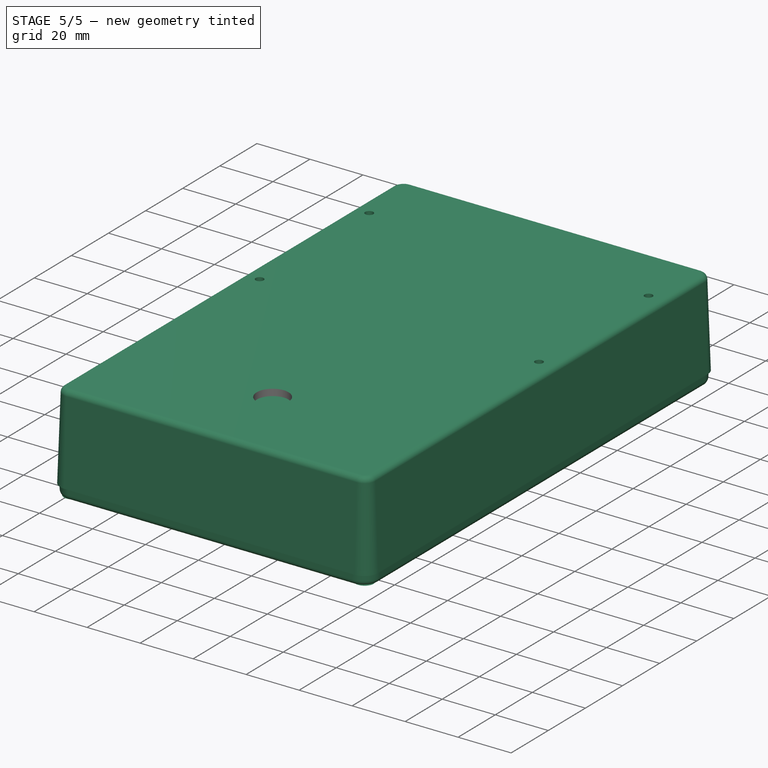
[diagram: stage 5 of 5 — iso view after this stage's code; geometry added in this stage tinted green]
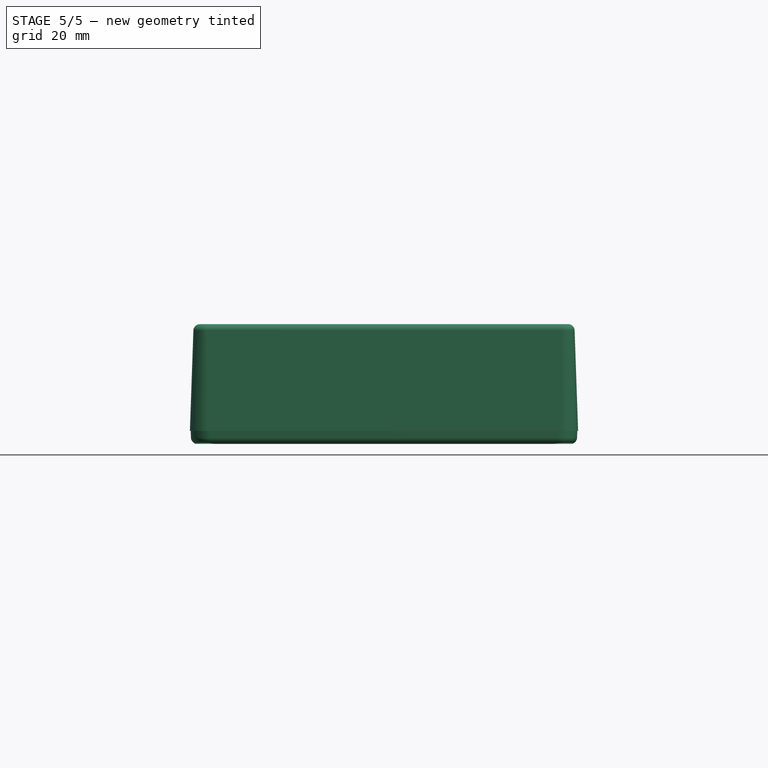
[diagram: stage 5 of 5 — front view after this stage's code; geometry added in this stage tinted green]
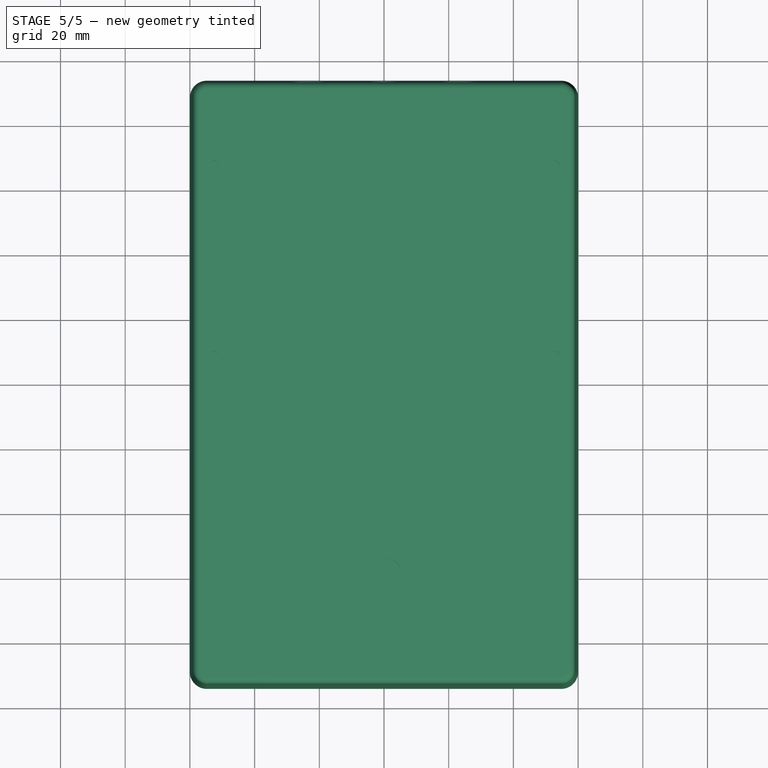
[diagram: stage 5 of 5 — top view after this stage's code; geometry added in this stage tinted green]
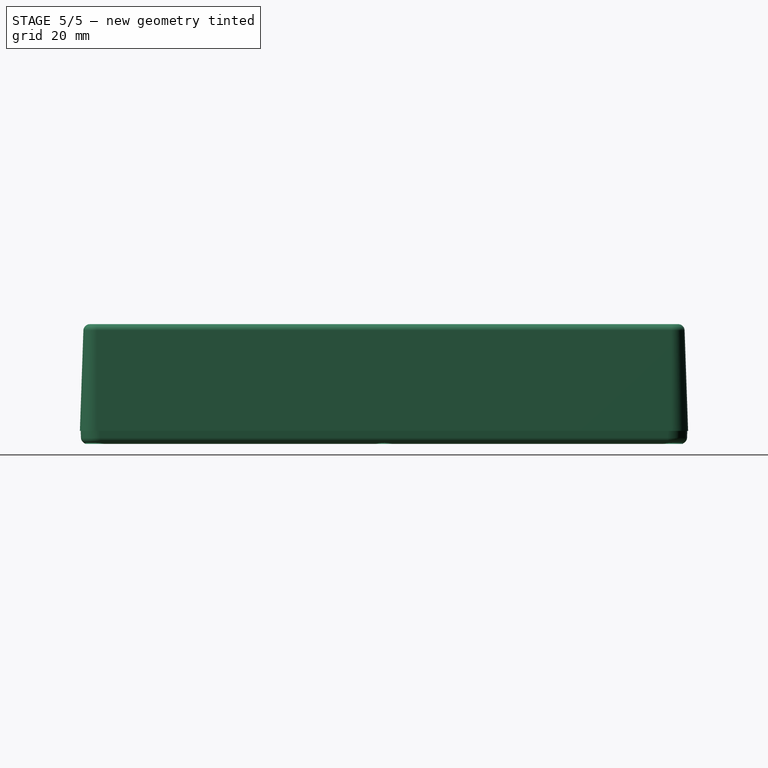
[diagram: stage 5 of 5 — right view after this stage's code; geometry added in this stage tinted green]
FEATURE [PartDesign::Plane] DatumPlane  label="Origin_XY_DatumPlane"
  AttachmentOffset = pos=(-75,-100,0) rot=(0,0,1;0rad)
  Length = 122.361
  MapMode = 5
  Placement = pos=(-75,-100,0) rot=(0,0,1;0rad)
  ResizeMode = 1
  Support = -> [XY_Plane001]
  Width = 200
FEATURE [Part::Feature] Part__Feature  label="#700-001 - 1590DD Box"
  Placement = pos=(0,0,0) rot=(0.707107,0.707107,0;3.14159rad)
  shape: bbox 120 x 188 x 451.1 mm, 273 faces (baked)
FEATURE [Part::Feature] Part__Feature001  label="#700-001 - 1590DD - Lid"
  Placement = pos=(0,0,0) rot=(0,0.707107,0.707107;3.14159rad)
  shape: bbox 187.5 x 5.937 x 119.5 mm, 345 faces (baked)
FEATURE [Part::Feature] Part__Feature002  label="#700-001 - 1590DD - Screw 4/6"
  Placement = pos=(1.2e-14,1.5362,-55) rot=(0,1,0;0.650238rad)
  shape: bbox 6.871 x 11.85 x 6.871 mm, 25 faces (baked)
FEATURE [Part::Feature] Part__Feature003  label="#700-001 - 1590DD - Screw 2/6"
  Placement = pos=(-1.2e-14,1.5362,55) rot=(0,1,0;0.650238rad)
  shape: bbox 6.871 x 11.85 x 6.871 mm, 25 faces (baked)
FEATURE [Part::Feature] Part__Feature004  label="#700-001 - 1590DD - Screw 1/6"
  Placement = pos=(-89,1.5362,55) rot=(0,1,0;0.650238rad)
  shape: bbox 6.871 x 11.85 x 6.871 mm, 25 faces (baked)
FEATURE [Part::Feature] Part__Feature005  label="#700-001 - 1590DD - Screw 3/6"
  Placement = pos=(-89,1.5362,-55) rot=(0,-1,0;0.529817rad)
  shape: bbox 6.871 x 11.85 x 6.871 mm, 25 faces (baked)
FEATURE [Part::Feature] Part__Feature006  label="#700-001 - 1590DD - Screw 5/6"
  Placement = pos=(89,1.5362,55) rot=(0,0,1;0rad)
  shape: bbox 6.871 x 11.85 x 6.871 mm, 25 faces (baked)
FEATURE [Part::Feature] Part__Feature007  label="#700-001 - 1590DD - Screw 6/6"
  Placement = pos=(89,1.5362,-55) rot=(0,0,1;0rad)
  shape: bbox 6.871 x 11.85 x 6.871 mm, 25 faces (baked)
FEATURE [Part::MultiFuse] Fusion  label="#700-000 - Enclosure - Lid & Screws, Fusion"
  Placement = pos=(0,0,0) rot=(0.57735,-0.57735,0.57735;4.18879rad)
  Shapes = -> [Part__Feature001,Part__Feature004,Part__Feature003,Part__Feature005,Part__Feature002,Part__Feature006,Part__Feature007]
FEATURE [Part::Cylinder] Cylinder  label="Drill - Potentiometer - Rate [D=7.5, X=-43.5, Y=58.42]"
  Angle = 360
  AttacherType = Attacher::AttachEngine3D
  Height = 10
  Placement = pos=(-43.498,58.42,-12) rot=(0,0,1;0rad)
  Radius = 3.75
FEATURE [Part::Cylinder] Cylinder001  label="Drill - Potentiometer - Depth [D7.5, X=0.0, Y = 58.42]]"
  Angle = 360
  AttacherType = Attacher::AttachEngine3D
  Height = 10
  Placement = pos=(0,58.42,-12) rot=(0,0,1;0rad)
  Radius = 3.75
FEATURE [Part::Cylinder] Cylinder002  label="Drill - Potentiometer - Feedback [D=7.5, X=43.5, Y=58.42]"
  Angle = 360
  AttacherType = Attacher::AttachEngine3D
  Height = 10
  Placement = pos=(43.498,58.42,-12) rot=(0,0,1;0rad)
  Radius = 3.75
FEATURE [PartDesign::Plane] DatumPlane001  label="Enclosure_Face_XY_DatumPlane"
  Length = 60
  MapMode = 5
  Placement = pos=(0,0,30.5) rot=(1,0,0;3.14159rad)
  ResizeMode = 0
  Width = 60
FEATURE [Part::Cylinder] Cylinder003  label="Drill - Standoff 4/4 [D=3.0, X=-52.705, Y=8.26]"
  Angle = 360
  AttacherType = Attacher::AttachEngine3D
  Height = 10
  Placement = pos=(-52.705,8.26,26) rot=(0,0,1;0rad)
  Radius = 1.5
FEATURE [Part::Cylinder] Cylinder004  label="Drill - Standoff 3/4 [D=3.0, X=52.705, Y=8.26]"
  Angle = 360
  AttacherType = Attacher::AttachEngine3D
  Height = 10
  Placement = pos=(52.705,8.26,26) rot=(0,0,1;0rad)
  Radius = 1.5
FEATURE [Part::Cylinder] Cylinder005  label="Drill - Standoff 2/4 [D=3.0, X=-52.705, Y=67.31]"
  Angle = 360
  AttacherType = Attacher::AttachEngine3D
  Height = 10
  Placement = pos=(-52.705,67.31,26) rot=(0,0,1;0rad)
  Radius = 1.5
FEATURE [Part::Cylinder] Cylinder006  label="Drill - Standoff 1/4 [D=3.0, X=52.705, Y=67.31]"
  Angle = 360
  AttacherType = Attacher::AttachEngine3D
  Height = 10
  Placement = pos=(52.705,67.31,26) rot=(0,0,1;0rad)
  Radius = 1.5
FEATURE [App::Part] Part001  label="#700-000 - Enclosure - Lid & Screws"
  Group = -> [Part__Feature004,Part__Feature007,Part__Feature005,Part__Feature001,Part__Feature003,Part__Feature006,Part__Feature002,Fusion]
  Origin = -> Origin002
  Placement = pos=(0,0,0) rot=(0,0,1;3.14159rad)
FEATURE [PartDesign::ShapeBinder] ShapeBinder  label="Enclosure_Lid_Inside"
  Placement = pos=(0,0,0) rot=(0.707107,0.707107,0;3.14159rad)
  Support = -> [Fusion]
  TraceSupport = false
FEATURE [PartDesign::ShapeBinder] ShapeBinder001  label="Enclosure_Lid_Lip"
  Placement = pos=(0,0,0) rot=(0.707107,0.707107,0;3.14159rad)
  Support = -> [Fusion]
  TraceSupport = false
FEATURE [PartDesign::ShapeBinder] ShapeBinder002  label="Enclosure_Lid_Outside"
  Placement = pos=(0,0,0) rot=(0.707107,0.707107,0;3.14159rad)
  Support = -> [Fusion]
  TraceSupport = false
FEATURE [PartDesign::ShapeBinder] ShapeBinder003  label="Enclosure_Box_Top_Outside"
  Placement = pos=(0,0,0) rot=(0.707107,0.707107,0;3.14159rad)
  Support = -> [Part__Feature]
  TraceSupport = false
FEATURE [PartDesign::ShapeBinder] ShapeBinder004  label="Enclosure_Box_Top_Inside"
  Placement = pos=(0,0,0) rot=(0.707107,0.707107,0;3.14159rad)
  Support = -> [Part__Feature]
  TraceSupport = false
FEATURE [PartDesign::ShapeBinder] ShapeBinder005  label="Enclosure_Box_Rear_Outside"
  Placement = pos=(0,0,0) rot=(0.707107,0.707107,0;3.14159rad)
  Support = -> [Part__Feature]
  TraceSupport = false
FEATURE [PartDesign::ShapeBinder] ShapeBinder006  label="Enclosure_Box_Rear_Inside"
  Placement = pos=(0,0,0) rot=(0.707107,0.707107,0;3.14159rad)
  Support = -> [Part__Feature]
  TraceSupport = false
FEATURE [PartDesign::ShapeBinder] ShapeBinder007  label="Enclosure_Box_Front_Outside"
  Placement = pos=(0,0,0) rot=(0.707107,0.707107,0;3.14159rad)
  Support = -> [Part__Feature]
  TraceSupport = false
FEATURE [PartDesign::ShapeBinder] ShapeBinder008  label="Enclosure_Box_Front_Inside"
  Placement = pos=(0,0,0) rot=(0.707107,0.707107,0;3.14159rad)
  Support = -> [Part__Feature]
  TraceSupport = false
FEATURE [Part::Cylinder] Cylinder007  label="Drill - Audio Jack 1/2 [D=10.0, X=-23.2, Z=9.1]"
  Angle = 360
  AttacherType = Attacher::AttachEngine3D
  Height = 10
  Placement = pos=(-23.2,90,20.1) rot=(-1,0,0;1.5708rad)
  Radius = 5
FEATURE [Part::Cylinder] Cylinder008  label="Drill - Audio Jack 2/2 [D=10.0, X=23.2, Z=9.1]"
  Angle = 360
  AttacherType = Attacher::AttachEngine3D
  Height = 10
  Placement = pos=(23.2,90,20.1) rot=(-1,0,0;1.5708rad)
  Radius = 5
FEATURE [Part::Cylinder] Cylinder009  label="Drill - Power Jack [D=8.0, X=0.0, Y=9.1]"
  Angle = 360
  AttacherType = Attacher::AttachEngine3D
  Height = 10
  Placement = pos=(0,90,18.1) rot=(-1,0,0;1.5708rad)
  Radius = 4
FEATURE [Part::MultiFuse] Fusion001  label="Drills"
  Shapes = -> [Cylinder,Cylinder002,Cylinder001,Cylinder003,Cylinder004,Cylinder005,Cylinder006,Cylinder007,Cylinder008,Cylinder009,Cylinder010]
FEATURE [Part::Cut] Cut  label="#700-000 - Enclosure - Box, Drilled"
  Base = -> Part__Feature
  Tool = -> Fusion001
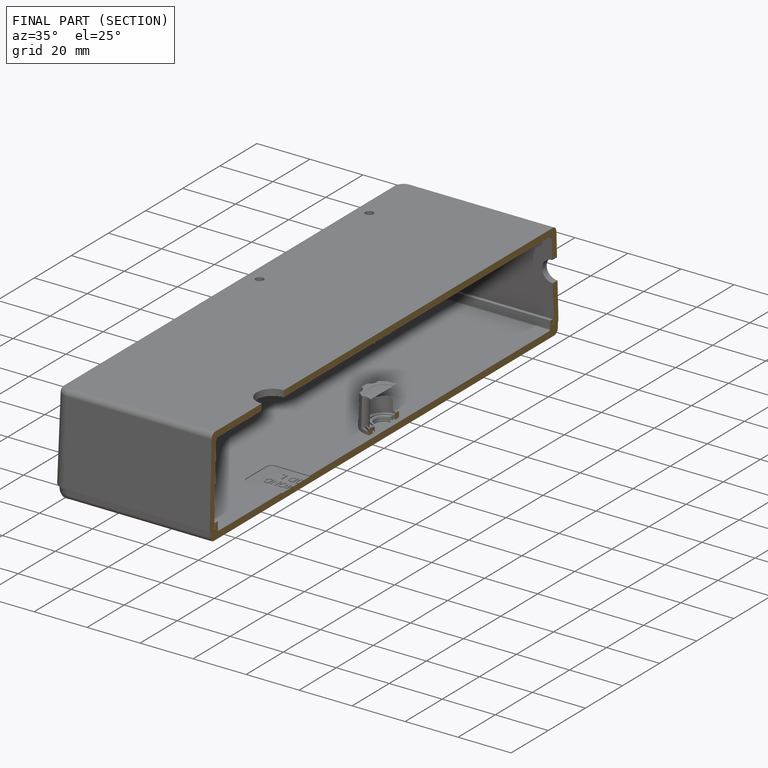
[diagram: finished part — half-section view (interior)]
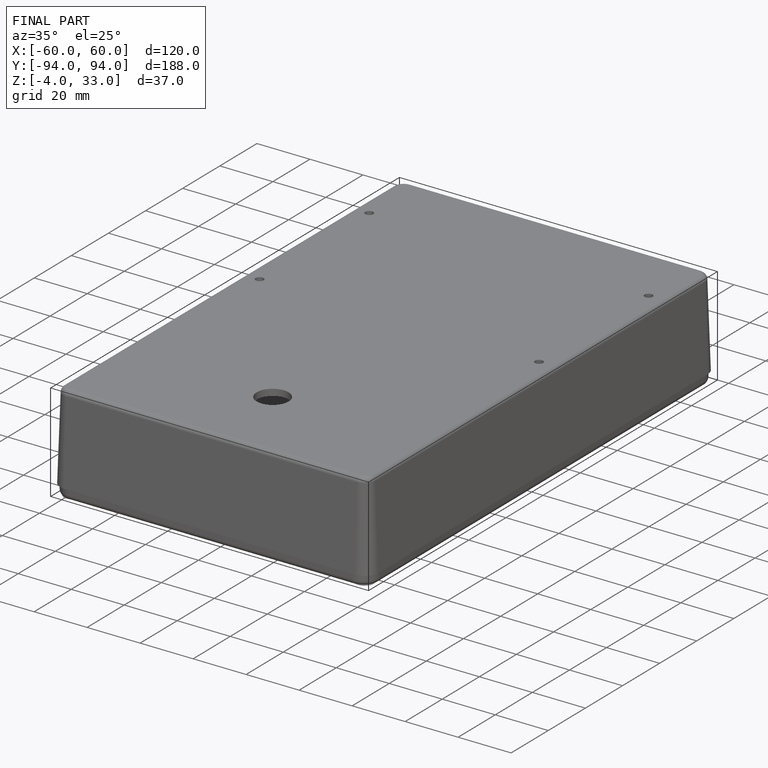
[diagram: finished part — iso view with bounding-box wireframe]
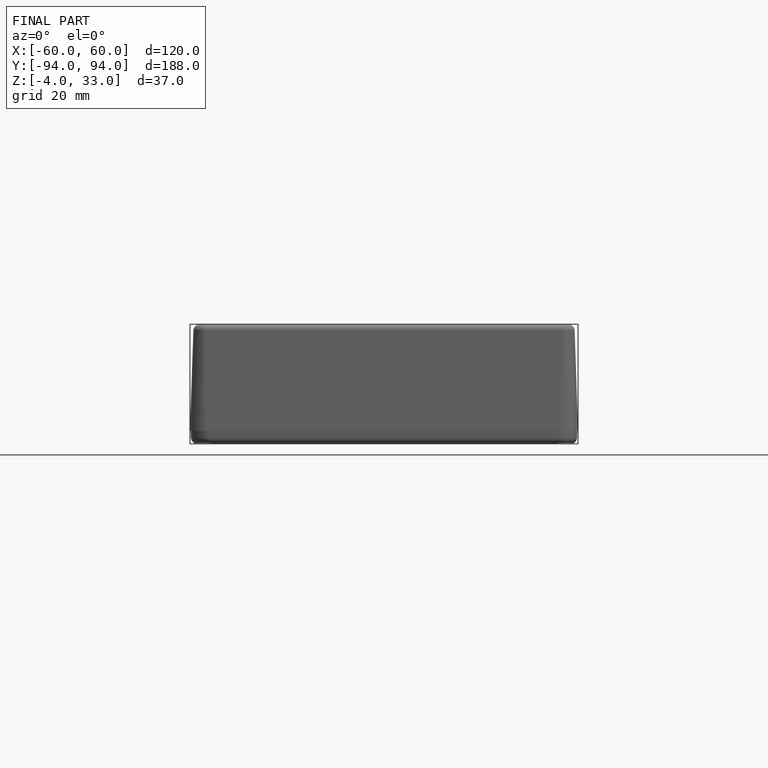
[diagram: finished part — front view with bounding-box wireframe]
